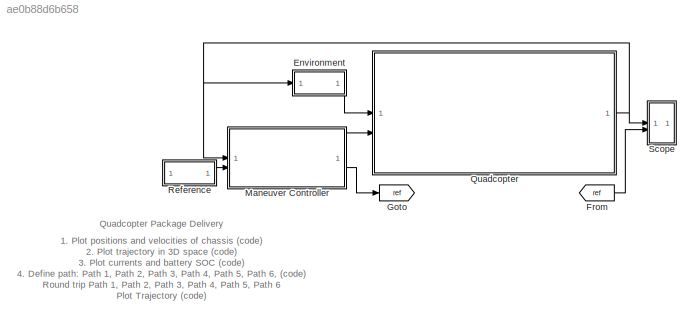
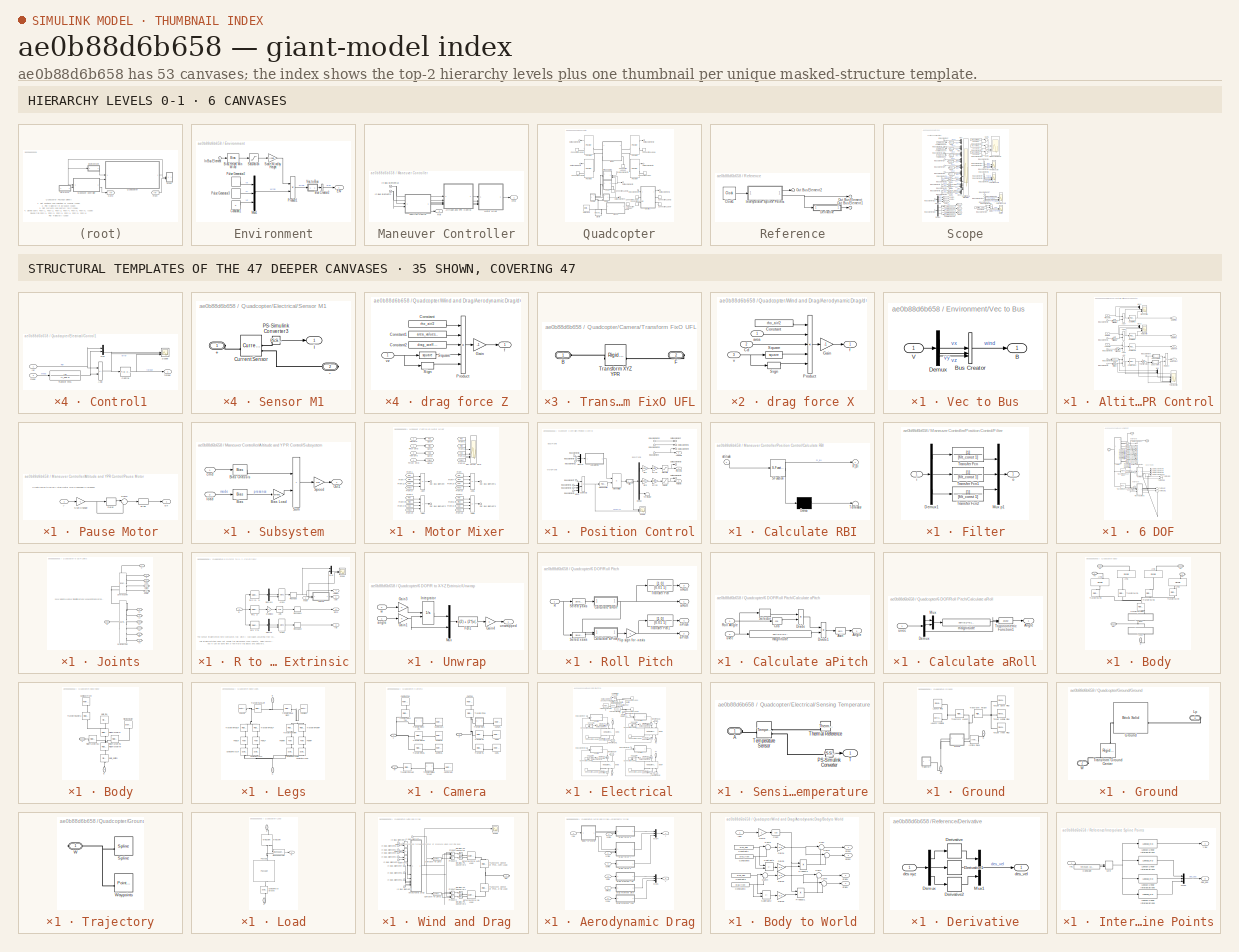
[diagram: thumbnail index - top-2 hierarchy levels (6 canvases) + 35 structural-template representatives of the remaining 47 canvases]
MODEL slx_ae0b88d6b658
KIND model
CONFIG AbsTol = 1e-4
CONFIG EnableMultiTasking = off
CONFIG FixedStep = auto
CONFIG MaxStep = 0.1
CONFIG MinStep = auto
CONFIG RelTol = 1e-4
CONFIG SampleTimeConstraint = Unconstrained
CONFIG SolverName = FixedStepAuto
CONFIG StartTime = 0.0
CONFIG StopTime = inf
WORKSPACE source: MATLAB code (in-file)
WORKSPACE code: load('xy_data_membrane.mat');
BLOCK [SubSystem] Environment
BLOCK [Bias] Environment/Bias Height Min Wind
  Bias = -height_min_wind
  SaturateOnIntegerOverflow = off
BLOCK [BusCreator] Environment/Bus Creator2
  DisplayOption = bar
  InheritFromInputs = on
  Inputs = 1
BLOCK [Constant] Environment/Constant1
  Value = 0
BLOCK [Outport] Environment/Env
BLOCK [Inport] Environment/In Bus Element
BLOCK [Mux] Environment/Mux1
  DisplayOption = bar
  Inputs = 3
BLOCK [Product] Environment/Product1
BLOCK [DiscretePulseGenerator] Environment/Pulse Generator2
  Amplitude = wind_speed_mag
  Period = 10
  PhaseDelay = 5
  PulseType = Time based
  PulseWidth = 25
BLOCK [DiscretePulseGenerator] Environment/Pulse Generator3
  Amplitude = wind_speed_mag
  Period = 10
  PhaseDelay = 9
  PulseType = Time based
  PulseWidth = 25
BLOCK [Saturate] Environment/Saturation
  LowerLimit = 0
  UpperLimit = height_max_wind-height_min_wind
  ZeroCross = off
BLOCK [Gain] Environment/Scale Wind by Height 
  Gain = 1/(height_max_wind-height_min_wind)
BLOCK [SubSystem] Environment/Vec to Bus
BLOCK [Outport] Environment/Vec to Bus/B
BLOCK [BusCreator] Environment/Vec to Bus/Bus Creator
  DisplayOption = bar
  InheritFromInputs = on
  Inputs = 3
BLOCK [Demux] Environment/Vec to Bus/Demux
  Outputs = 3
BLOCK [Inport] Environment/Vec to Bus/V
BLOCK [From] From
  GotoTag = ref
BLOCK [Goto] Goto
  GotoTag = ref
BLOCK [SubSystem] Maneuver Controller
BLOCK [SubSystem] Maneuver Controller/Altitude and YPR Control
BLOCK [Sum] Maneuver Controller/Altitude and YPR Control/Add
  IconShape = rectangular
  Inputs = +-
BLOCK [Sum] Maneuver Controller/Altitude and YPR Control/Add2
  IconShape = rectangular
  Inputs = +-
BLOCK [Sum] Maneuver Controller/Altitude and YPR Control/Add3
  IconShape = rectangular
  Inputs = +-
BLOCK [Sum] Maneuver Controller/Altitude and YPR Control/Add7
  IconShape = rectangular
  Inputs = +-
BLOCK [Reference] Maneuver Controller/Altitude and YPR Control/Control Pitch  REF=slpidlib/PID Controller
  SourceBlock = slpidlib/PID Controller
  SourceType = PID 1dof
BLOCK [Reference] Maneuver Controller/Altitude and YPR Control/Control Roll  REF=slpidlib/PID Controller
  SourceBlock = slpidlib/PID Controller
  SourceType = PID 1dof
BLOCK [Reference] Maneuver Controller/Altitude and YPR Control/Control Thrust  REF=slpidlib/PID Controller
  SourceBlock = slpidlib/PID Controller
  SourceType = PID 1dof
BLOCK [Reference] Maneuver Controller/Altitude and YPR Control/Control Yaw  REF=slpidlib/PID Controller
  SourceBlock = slpidlib/PID Controller
  SourceType = PID 1dof
BLOCK [TransferFcn] Maneuver Controller/Altitude and YPR Control/Filter Pitch
  Denominator = [altitude_filtM 1]
BLOCK [TransferFcn] Maneuver Controller/Altitude and YPR Control/Filter Roll
  Denominator = [altitude_filtM 1]
BLOCK [TransferFcn] Maneuver Controller/Altitude and YPR Control/Filter Yaw
  Denominator = [yaw_filtM 1]
BLOCK [TransferFcn] Maneuver Controller/Altitude and YPR Control/Filter pz
  Denominator = [0.01 1]
BLOCK [Inport] Maneuver Controller/Altitude and YPR Control/In Bus Element
BLOCK [Inport] Maneuver Controller/Altitude and YPR Control/In Bus Element1
BLOCK [Inport] Maneuver Controller/Altitude and YPR Control/In Bus Element2
BLOCK [Inport] Maneuver Controller/Altitude and YPR Control/In Bus Element3
BLOCK [Inport] Maneuver Controller/Altitude and YPR Control/In Bus Element4
BLOCK [Inport] Maneuver Controller/Altitude and YPR Control/In Bus Element9
  Port = 2
BLOCK [Outport] Maneuver Controller/Altitude and YPR Control/Motor Pitch
BLOCK [Outport] Maneuver Controller/Altitude and YPR Control/Motor Roll
  Port = 2
BLOCK [Outport] Maneuver Controller/Altitude and YPR Control/Motor Thrust
  Port = 4
BLOCK [Outport] Maneuver Controller/Altitude and YPR Control/Motor Yaw
  Port = 3
BLOCK [Mux] Maneuver Controller/Altitude and YPR Control/Mux
  DisplayOption = bar
  Inputs = 2
BLOCK [Mux] Maneuver Controller/Altitude and YPR Control/Mux1
  DisplayOption = bar
  Inputs = 2
BLOCK [Mux] Maneuver Controller/Altitude and YPR Control/Mux2
  DisplayOption = bar
  Inputs = 2
BLOCK [SubSystem] Maneuver Controller/Altitude and YPR Control/Pause Motor
  NameLocation = top
BLOCK [Bias] Maneuver Controller/Altitude and YPR Control/Pause Motor/Bias
  Bias = 1
  SaturateOnIntegerOverflow = off
BLOCK [Delay] Maneuver Controller/Altitude and YPR Control/Pause Motor/Delay
  DelayLength = dur_pulse/ts_pulse
  InitialCondition = 0
  InputPortMap = u0
  SampleTime = ts_pulse
  UserDataPersistent = on
BLOCK [Outport] Maneuver Controller/Altitude and YPR Control/Pause Motor/En
BLOCK [Gain] Maneuver Controller/Altitude and YPR Control/Pause Motor/Sign Change
  Gain = -1
BLOCK [Sum] Maneuver Controller/Altitude and YPR Control/Pause Motor/Sum2
  InputSameDT = on
  Inputs = |+-
  OutDataTypeStr = double
  SaturateOnIntegerOverflow = on
BLOCK [Inport] Maneuver Controller/Altitude and YPR Control/Pause Motor/y
BLOCK [Inport] Maneuver Controller/Altitude and YPR Control/Pitch Cmd
  Port = 3
BLOCK [Scope] Maneuver Controller/Altitude and YPR Control/Pitch Control
  Floating = off
  NumInputPorts = 3
  ScopeSpecificationString = Simulink.scopes.TimeScopeBlockCfg('CurrentConfiguration', extmgr.ConfigurationSet(extmgr.Configuration('Core','General UI',true),extmgr.Configuration('Core','Source UI',true),extmgr.Configuration('Sources','WiredSimulink',true,'DataLoggingVariableName','ScopeData1'),extmgr.Configuration('Visuals','Time Domain',true,'SerializedDisplays',{struct('MinYLimReal','-0.80585','MaxYLimReal','0.83815','YLab...<+2702ch>
BLOCK [Product] Maneuver Controller/Altitude and YPR Control/Product
BLOCK [Inport] Maneuver Controller/Altitude and YPR Control/Roll Cmd
  Port = 4
BLOCK [Scope] Maneuver Controller/Altitude and YPR Control/Roll Control
  Floating = off
  NumInputPorts = 3
  ScopeSpecificationString = Simulink.scopes.TimeScopeBlockCfg('CurrentConfiguration', extmgr.ConfigurationSet(extmgr.Configuration('Core','General UI',true),extmgr.Configuration('Core','Source UI',true),extmgr.Configuration('Sources','WiredSimulink',true,'DataLoggingVariableName','ScopeData1'),extmgr.Configuration('Visuals','Time Domain',true,'SerializedDisplays',{struct('MinYLimReal','-0.80585','MaxYLimReal','0.83815','YLab...<+2702ch>
BLOCK [Selector] Maneuver Controller/Altitude and YPR Control/Select z
  IndexOptions = Index vector (dialog)
  Indices = [3]
  InputPortWidth = 3
  OutputSizes = 1
BLOCK [SubSystem] Maneuver Controller/Altitude and YPR Control/Subsystem
BLOCK [Bias] Maneuver Controller/Altitude and YPR Control/Subsystem/Bias
  Bias = +1
  SaturateOnIntegerOverflow = off
BLOCK [Bias] Maneuver Controller/Altitude and YPR Control/Subsystem/Bias Chassis
  Bias = 700
  SaturateOnIntegerOverflow = off
BLOCK [Gain] Maneuver Controller/Altitude and YPR Control/Subsystem/Bias Load
  Gain = 260*pkgSize(1)^3*pkgDensity
BLOCK [Outport] Maneuver Controller/Altitude and YPR Control/Subsystem/Out1
BLOCK [Gain] Maneuver Controller/Altitude and YPR Control/Subsystem/Speed
  Gain = 2*pi
BLOCK [Sum] Maneuver Controller/Altitude and YPR Control/Subsystem/Sum
  IconShape = rectangular
BLOCK [Inport] Maneuver Controller/Altitude and YPR Control/Subsystem/cmd
BLOCK [Inport] Maneuver Controller/Altitude and YPR Control/Subsystem/load
  Port = 2
BLOCK [Scope] Maneuver Controller/Altitude and YPR Control/Thrust Control
  Floating = off
  NumInputPorts = 6
  ScopeSpecificationString = Simulink.scopes.TimeScopeBlockCfg('CurrentConfiguration', extmgr.ConfigurationSet(extmgr.Configuration('Core','General UI',true),extmgr.Configuration('Core','Source UI',true),extmgr.Configuration('Sources','WiredSimulink',true,'DataLoggingVariableName','ScopeData2'),extmgr.Configuration('Visuals','Time Domain',true,'SerializedDisplays',{struct('MinYLimReal','-0.81239','MaxYLimReal','7.31154','YLab...<+6107ch>
BLOCK [Gain] Maneuver Controller/Altitude and YPR Control/Thrust to Torque
  Gain = 2*pi/(propeller.diameter^4 * sqrt(air_rho))
BLOCK [Inport] Maneuver Controller/Altitude and YPR Control/Yaw Cmd
  Port = 5
BLOCK [Inport] Maneuver Controller/In Bus Element13
BLOCK [Inport] Maneuver Controller/In Bus Element3
  Port = 2
BLOCK [SubSystem] Maneuver Controller/Motor Mixer
BLOCK [Sum] Maneuver Controller/Motor Mixer/Add4
  IconShape = rectangular
  Inputs = +--+
BLOCK [Sum] Maneuver Controller/Motor Mixer/Add5
  IconShape = rectangular
  Inputs = --++
BLOCK [Sum] Maneuver Controller/Motor Mixer/Add6
  IconShape = rectangular
  Inputs = -+-+
BLOCK [Sum] Maneuver Controller/Motor Mixer/Add7
  IconShape = rectangular
  Inputs = ++++
BLOCK [From] Maneuver Controller/Motor Mixer/From
  GotoTag = Roll
BLOCK [From] Maneuver Controller/Motor Mixer/From1
  GotoTag = Roll
BLOCK [From] Maneuver Controller/Motor Mixer/From10
  GotoTag = Yaw
BLOCK [From] Maneuver Controller/Motor Mixer/From11
  GotoTag = Yaw
BLOCK [From] Maneuver Controller/Motor Mixer/From12
  GotoTag = Yaw
BLOCK [From] Maneuver Controller/Motor Mixer/From13
  GotoTag = Yaw
BLOCK [From] Maneuver Controller/Motor Mixer/From14
  GotoTag = Yaw
BLOCK [From] Maneuver Controller/Motor Mixer/From15
  GotoTag = Thrust
BLOCK [From] Maneuver Controller/Motor Mixer/From16
  GotoTag = Thrust
BLOCK [From] Maneuver Controller/Motor Mixer/From17
  GotoTag = Thrust
BLOCK [From] Maneuver Controller/Motor Mixer/From18
  GotoTag = Thrust
BLOCK [From] Maneuver Controller/Motor Mixer/From19
  GotoTag = Thrust
BLOCK [From] Maneuver Controller/Motor Mixer/From2
  GotoTag = Roll
BLOCK [From] Maneuver Controller/Motor Mixer/From3
  GotoTag = Roll
BLOCK [From] Maneuver Controller/Motor Mixer/From4
  GotoTag = Pitch
BLOCK [From] Maneuver Controller/Motor Mixer/From5
  GotoTag = Roll
BLOCK [From] Maneuver Controller/Motor Mixer/From6
  GotoTag = Pitch
BLOCK [From] Maneuver Controller/Motor Mixer/From7
  GotoTag = Pitch
BLOCK [From] Maneuver Controller/Motor Mixer/From8
  GotoTag = Pitch
BLOCK [From] Maneuver Controller/Motor Mixer/From9
  GotoTag = Pitch
BLOCK [Goto] Maneuver Controller/Motor Mixer/Goto1
  GotoTag = Pitch
BLOCK [Goto] Maneuver Controller/Motor Mixer/Goto2
  GotoTag = Thrust
BLOCK [Goto] Maneuver Controller/Motor Mixer/Goto3
  GotoTag = Yaw
BLOCK [Goto] Maneuver Controller/Motor Mixer/Goto4
  GotoTag = Roll
BLOCK [Outport] Maneuver Controller/Motor Mixer/Out Bus Element
BLOCK [Outport] Maneuver Controller/Motor Mixer/Out Bus Element1
BLOCK [Outport] Maneuver Controller/Motor Mixer/Out Bus Element2
BLOCK [Outport] Maneuver Controller/Motor Mixer/Out Bus Element3
BLOCK [Inport] Maneuver Controller/Motor Mixer/Pitch Cmd
BLOCK [Scope] Maneuver Controller/Motor Mixer/RPY Thrust Cmd
  Floating = off
  NumInputPorts = 4
  ScopeSpecificationString = Simulink.scopes.TimeScopeBlockCfg('CurrentConfiguration', extmgr.ConfigurationSet(extmgr.Configuration('Core','General UI',true),extmgr.Configuration('Core','Source UI',true),extmgr.Configuration('Sources','WiredSimulink',true,'DataLoggingVariableName','ScopeData1'),extmgr.Configuration('Visuals','Time Domain',true,'SerializedDisplays',{struct('MinYLimReal','4417.97471','MaxYLimReal','5987.32527',...<+1481ch>
BLOCK [Inport] Maneuver Controller/Motor Mixer/Roll Cmd
  Port = 2
BLOCK [Inport] Maneuver Controller/Motor Mixer/Thrust Cmd
  Port = 4
BLOCK [Inport] Maneuver Controller/Motor Mixer/Yaw Cmd
  Port = 3
BLOCK [SubSystem] Maneuver Controller/Position Control
BLOCK [SubSystem] Maneuver Controller/Position Control/Calculate RBI
  ErrorFcn = Stateflow.Translate.translate
  PermitHierarchicalResolution = ExplicitOnly
  SFBlockType = MATLAB Function
  TreatAsAtomicUnit = on
BLOCK [Demux] Maneuver Controller/Position Control/Calculate RBI/ Demux 
  Outputs = 1
BLOCK [S-Function] Maneuver Controller/Position Control/Calculate RBI/ SFunction 
  EnableBusSupport = on
  FunctionName = sf_sfun
  PortCounts = [1 2]
  SFcnIsStateOwnerBlock = off
  SFunctionDeploymentMode = off
  Tag = Stateflow S-Function 7
BLOCK [Terminator] Maneuver Controller/Position Control/Calculate RBI/ Terminator 
BLOCK [Outport] Maneuver Controller/Position Control/Calculate RBI/R_BI
BLOCK [Inport] Maneuver Controller/Position Control/Calculate RBI/attitude
BLOCK [Demux] Maneuver Controller/Position Control/Demux
  Outputs = 3
BLOCK [Gain] Maneuver Controller/Position Control/Dir P
  Gain = 1/9.81
BLOCK [Gain] Maneuver Controller/Position Control/Dir R
  Gain = -1/9.81
BLOCK [Gain] Maneuver Controller/Position Control/Err2P
  Gain = err2rp
BLOCK [Gain] Maneuver Controller/Position Control/Err2R
  Gain = err2rp
BLOCK [SubSystem] Maneuver Controller/Position Control/Filter
BLOCK [Demux] Maneuver Controller/Position Control/Filter/Demux1
  Outputs = 3
BLOCK [Mux] Maneuver Controller/Position Control/Filter/Mux p1
  DisplayOption = bar
  Inputs = 3
BLOCK [TransferFcn] Maneuver Controller/Position Control/Filter/Transfer Fcn
  Denominator = [filt_const 1]
BLOCK [TransferFcn] Maneuver Controller/Position Control/Filter/Transfer Fcn1
  Denominator = [filt_const 1]
BLOCK [TransferFcn] Maneuver Controller/Position Control/Filter/Transfer Fcn2
  Denominator = [filt_const 1]
BLOCK [Inport] Maneuver Controller/Position Control/Filter/i
BLOCK [Outport] Maneuver Controller/Position Control/Filter/o
BLOCK [Inport] Maneuver Controller/Position Control/In Bus Element
  Port = 2
BLOCK [Inport] Maneuver Controller/Position Control/In Bus Element1
BLOCK [Inport] Maneuver Controller/Position Control/In Bus Element11
BLOCK [Inport] Maneuver Controller/Position Control/In Bus Element12
  Port = 2
BLOCK [Inport] Maneuver Controller/Position Control/In Bus Element13
  Port = 2
BLOCK [Inport] Maneuver Controller/Position Control/In Bus Element2
BLOCK [Inport] Maneuver Controller/Position Control/In Bus Element3
BLOCK [Inport] Maneuver Controller/Position Control/In Bus Element7
  Port = 2
BLOCK [Inport] Maneuver Controller/Position Control/In Bus Element8
BLOCK [Inport] Maneuver Controller/Position Control/In Bus Element9
BLOCK [Product] Maneuver Controller/Position Control/Matrix Multiply
  Multiplication = Matrix(*)
BLOCK [Mux] Maneuver Controller/Position Control/Mux p
  DisplayOption = bar
  Inputs = 3
BLOCK [Mux] Maneuver Controller/Position Control/Mux rpy
  DisplayOption = bar
  Inputs = 3
BLOCK [Outport] Maneuver Controller/Position Control/Out Bus Element
  Port = 4
BLOCK [Outport] Maneuver Controller/Position Control/Out Bus Element1
  Port = 4
BLOCK [Outport] Maneuver Controller/Position Control/Out Bus Element2
  Port = 4
BLOCK [Outport] Maneuver Controller/Position Control/Out Bus Element3
  Port = 4
BLOCK [Outport] Maneuver Controller/Position Control/Out Bus Element4
  Port = 4
BLOCK [Reference] Maneuver Controller/Position Control/PID Controller  REF=slpidlib/PID Controller
  SourceBlock = slpidlib/PID Controller
  SourceType = PID 1dof
BLOCK [Outport] Maneuver Controller/Position Control/Pitch Cmd
BLOCK [Saturate] Maneuver Controller/Position Control/Pitch Limit
  LowerLimit = -pi/3
  UpperLimit = pi/3
BLOCK [Outport] Maneuver Controller/Position Control/Roll Cmd
  Port = 2
BLOCK [Saturate] Maneuver Controller/Position Control/Roll Limit
  LowerLimit = -pi/3
  UpperLimit = pi/3
BLOCK [Scope] Maneuver Controller/Position Control/Scope
  Floating = off
  NumInputPorts = 2
  ScopeSpecificationString = Simulink.scopes.TimeScopeBlockCfg('CurrentConfiguration', extmgr.ConfigurationSet(extmgr.Configuration('Core','General UI',true),extmgr.Configuration('Core','Source UI',true),extmgr.Configuration('Sources','WiredSimulink',true,'DataLoggingVariableName','ScopeData5'),extmgr.Configuration('Visuals','Time Domain',true,'SerializedDisplays',{struct('MinYLimReal','-1.96666','MaxYLimReal','2.2076','YLabe...<+2092ch>
BLOCK [Sum] Maneuver Controller/Position Control/Subtract2
  IconShape = rectangular
  Inputs = +-
BLOCK [Terminator] Maneuver Controller/Position Control/Terminator
BLOCK [Outport] Maneuver Controller/Position Control/Yaw Cmd
  Port = 3
BLOCK [Outport] Maneuver Controller/Ref
  Port = 2
BLOCK [Outport] Maneuver Controller/cmd
BLOCK [SubSystem] Quadcopter
BLOCK [SubSystem] Quadcopter/6 DOF
BLOCK [PMIOPort] Quadcopter/6 DOF/B
  Port = 3
  Side = Left
BLOCK [PMIOPort] Quadcopter/6 DOF/C
  NameLocation = top
  Port = 2
  Side = Left
BLOCK [PMIOPort] Quadcopter/6 DOF/F
  NameLocation = top
  Side = Left
BLOCK [SubSystem] Quadcopter/6 DOF/Joints
BLOCK [PMIOPort] Quadcopter/6 DOF/Joints/B
  Port = 5
  Side = Left
BLOCK [PMIOPort] Quadcopter/6 DOF/Joints/C
  Side = Right
BLOCK [Reference] Quadcopter/6 DOF/Joints/Cartesian Joint  REF=sm_lib/Joints/Cartesian
Joint
  SourceBlock = sm_lib/Joints/Cartesian\nJoint
  SourceType = Cartesian\nJoint
BLOCK [PMIOPort] Quadcopter/6 DOF/Joints/F
  Port = 2
  Side = Right
BLOCK [Reference] Quadcopter/6 DOF/Joints/Spherical Joint  REF=sm_lib/Joints/Spherical
Joint
  SourceBlock = sm_lib/Joints/Spherical\nJoint
  SourceType = Spherical\nJoint
BLOCK [PMIOPort] Quadcopter/6 DOF/Joints/nPitch
  Port = 11
  Side = Right
BLOCK [PMIOPort] Quadcopter/6 DOF/Joints/nRoll
  Port = 10
  Side = Right
BLOCK [PMIOPort] Quadcopter/6 DOF/Joints/nYaw
  Port = 12
  Side = Right
BLOCK [PMIOPort] Quadcopter/6 DOF/Joints/px
  Port = 3
  Side = Right
BLOCK [PMIOPort] Quadcopter/6 DOF/Joints/py
  Port = 6
  Side = Right
BLOCK [PMIOPort] Quadcopter/6 DOF/Joints/pz
  Port = 8
  Side = Right
BLOCK [PMIOPort] Quadcopter/6 DOF/Joints/vx
  Port = 4
  Side = Right
BLOCK [PMIOPort] Quadcopter/6 DOF/Joints/vy
  Port = 7
  Side = Right
BLOCK [PMIOPort] Quadcopter/6 DOF/Joints/vz
  Port = 9
  Side = Right
BLOCK [Outport] Quadcopter/6 DOF/Out Bus Element
BLOCK [Outport] Quadcopter/6 DOF/Out Bus Element1
BLOCK [Outport] Quadcopter/6 DOF/Out Bus Element10
BLOCK [Outport] Quadcopter/6 DOF/Out Bus Element11
BLOCK [Outport] Quadcopter/6 DOF/Out Bus Element12
BLOCK [Outport] Quadcopter/6 DOF/Out Bus Element2
BLOCK [Outport] Quadcopter/6 DOF/Out Bus Element3
BLOCK [Outport] Quadcopter/6 DOF/Out Bus Element4
BLOCK [Outport] Quadcopter/6 DOF/Out Bus Element5
BLOCK [Outport] Quadcopter/6 DOF/Out Bus Element6
BLOCK [Outport] Quadcopter/6 DOF/Out Bus Element7
BLOCK [Outport] Quadcopter/6 DOF/Out Bus Element8
BLOCK [Outport] Quadcopter/6 DOF/Out Bus Element9
BLOCK [Reference] Quadcopter/6 DOF/PS-Simulink Converter  REF=nesl_utility/PS-Simulink
Converter
  SourceBlock = nesl_utility/PS-Simulink\nConverter
  SourceType = PS-Simulink\nConverter
BLOCK [Reference] Quadcopter/6 DOF/PS-Simulink Converter1  REF=nesl_utility/PS-Simulink
Converter
  SourceBlock = nesl_utility/PS-Simulink\nConverter
  SourceType = PS-Simulink\nConverter
BLOCK [Reference] Quadcopter/6 DOF/PS-Simulink Converter11  REF=nesl_utility/PS-Simulink
Converter
  SourceBlock = nesl_utility/PS-Simulink\nConverter
  SourceType = PS-Simulink\nConverter
BLOCK [Reference] Quadcopter/6 DOF/PS-Simulink Converter13  REF=nesl_utility/PS-Simulink
Converter
  SourceBlock = nesl_utility/PS-Simulink\nConverter
  SourceType = PS-Simulink\nConverter
BLOCK [Reference] Quadcopter/6 DOF/PS-Simulink Converter2  REF=nesl_utility/PS-Simulink
Converter
  SourceBlock = nesl_utility/PS-Simulink\nConverter
  SourceType = PS-Simulink\nConverter
BLOCK [Reference] Quadcopter/6 DOF/PS-Simulink Converter3  REF=nesl_utility/PS-Simulink
Converter
  SourceBlock = nesl_utility/PS-Simulink\nConverter
  SourceType = PS-Simulink\nConverter
BLOCK [Reference] Quadcopter/6 DOF/PS-Simulink Converter4  REF=nesl_utility/PS-Simulink
Converter
  SourceBlock = nesl_utility/PS-Simulink\nConverter
  SourceType = PS-Simulink\nConverter
BLOCK [Reference] Quadcopter/6 DOF/PS-Simulink Converter5  REF=nesl_utility/PS-Simulink
Converter
  SourceBlock = nesl_utility/PS-Simulink\nConverter
  SourceType = PS-Simulink\nConverter
BLOCK [SubSystem] Quadcopter/6 DOF/R to X-Y-Z Extrinsic
BLOCK [Trigonometry] Quadcopter/6 DOF/R to X-Y-Z Extrinsic/Asin
  Operator = asin
BLOCK [Trigonometry] Quadcopter/6 DOF/R to X-Y-Z Extrinsic/Atan1
  Operator = atan2
BLOCK [Trigonometry] Quadcopter/6 DOF/R to X-Y-Z Extrinsic/Atan2
  Operator = atan2
BLOCK [Demux] Quadcopter/6 DOF/R to X-Y-Z Extrinsic/Demux
  Outputs = 2
BLOCK [Demux] Quadcopter/6 DOF/R to X-Y-Z Extrinsic/Demux1
  Outputs = 2
BLOCK [Gain] Quadcopter/6 DOF/R to X-Y-Z Extrinsic/Multiply2
  Gain = -1
BLOCK [Mux] Quadcopter/6 DOF/R to X-Y-Z Extrinsic/Mux
  DisplayOption = bar
  Inputs = 2
BLOCK [Inport] Quadcopter/6 DOF/R to X-Y-Z Extrinsic/R
BLOCK [Selector] Quadcopter/6 DOF/R to X-Y-Z Extrinsic/R(3, 1)
  IndexOptions = Index vector (dialog),Index vector (dialog)
  Indices = 3,1
  InputPortWidth = 3
  NumberOfDimensions = 2
  OutputSizes = 1,1
BLOCK [Selector] Quadcopter/6 DOF/R to X-Y-Z Extrinsic/R(3, 2:3)
  IndexOptions = Index vector (dialog),Index vector (dialog)
  Indices = 3,[2 3]
  InputPortWidth = 3
  NumberOfDimensions = 2
  OutputSizes = 1,1
BLOCK [Selector] Quadcopter/6 DOF/R to X-Y-Z Extrinsic/R([2 1], 1)
  IndexOptions = Index vector (dialog),Index vector (dialog)
  Indices = [2 1],1
  InputPortWidth = 3
  NumberOfDimensions = 2
  OutputSizes = 1,1
BLOCK [Reshape] Quadcopter/6 DOF/R to X-Y-Z Extrinsic/Reshape
BLOCK [Reshape] Quadcopter/6 DOF/R to X-Y-Z Extrinsic/Reshape1
BLOCK [Reshape] Quadcopter/6 DOF/R to X-Y-Z Extrinsic/Reshape2
  OutputDimensionality = Customize
  OutputDimensions = 1
BLOCK [Scope] Quadcopter/6 DOF/R to X-Y-Z Extrinsic/Scope
  Floating = off
  NumInputPorts = 2
  ScopeSpecificationString = Simulink.scopes.TimeScopeBlockCfg('CurrentConfiguration', extmgr.ConfigurationSet(extmgr.Configuration('Core','General UI',true),extmgr.Configuration('Core','Source UI',true),extmgr.Configuration('Sources','WiredSimulink',true,'DataLoggingVariableName','ScopeData2'),extmgr.Configuration('Visuals','Time Domain',true,'SerializedDisplays',{struct('MinYLimReal','-4.33662','MaxYLimReal','7.61477','YLab...<+2013ch>
BLOCK [SubSystem] Quadcopter/6 DOF/R to X-Y-Z Extrinsic/Unwrap
BLOCK [Fcn] Quadcopter/6 DOF/R to X-Y-Z Extrinsic/Unwrap/Fcn1
  Expr = u(2) + (2*(u(1) > u(2)) - 1)*2*pi*floor(abs(u(1)-u(2))/(2*pi) + 0.5)
BLOCK [Gain] Quadcopter/6 DOF/R to X-Y-Z Extrinsic/Unwrap/Gain1
  OutDataTypeStr = Inherit: Same as input
  ParamDataTypeStr = Inherit: Same as input
  SaturateOnIntegerOverflow = on
BLOCK [Gain] Quadcopter/6 DOF/R to X-Y-Z Extrinsic/Unwrap/Gain3
  OutDataTypeStr = Inherit: Same as input
  ParamDataTypeStr = Inherit: Same as input
  SaturateOnIntegerOverflow = on
BLOCK [Gain] Quadcopter/6 DOF/R to X-Y-Z Extrinsic/Unwrap/Gain4
  OutDataTypeStr = Inherit: Same as input
  ParamDataTypeStr = Inherit: Same as input
  SaturateOnIntegerOverflow = on
BLOCK [Integrator] Quadcopter/6 DOF/R to X-Y-Z Extrinsic/Unwrap/Integrator
  AbsoluteTolerance = 1e-3
  InitialConditionSource = external
  ZeroCross = off
BLOCK [Mux] Quadcopter/6 DOF/R to X-Y-Z Extrinsic/Unwrap/Mux
  DisplayOption = bar
  Inputs = 2
BLOCK [Inport] Quadcopter/6 DOF/R to X-Y-Z Extrinsic/Unwrap/angle
BLOCK [Outport] Quadcopter/6 DOF/R to X-Y-Z Extrinsic/Unwrap/unwrapped
BLOCK [Inport] Quadcopter/6 DOF/R to X-Y-Z Extrinsic/Unwrap/w
  Port = 2
BLOCK [Inport] Quadcopter/6 DOF/R to X-Y-Z Extrinsic/nYaw
  Port = 2
BLOCK [Outport] Quadcopter/6 DOF/R to X-Y-Z Extrinsic/pitch
  Port = 2
  VectorParamsAs1DForOutWhenUnconnected = off
BLOCK [Outport] Quadcopter/6 DOF/R to X-Y-Z Extrinsic/roll
  Port = 3
  VectorParamsAs1DForOutWhenUnconnected = off
BLOCK [Outport] Quadcopter/6 DOF/R to X-Y-Z Extrinsic/yaw
  VectorParamsAs1DForOutWhenUnconnected = off
BLOCK [Outport] Quadcopter/6 DOF/R to X-Y-Z Extrinsic/yawWr
  Port = 4
  VectorParamsAs1DForOutWhenUnconnected = off
BLOCK [SubSystem] Quadcopter/6 DOF/Roll Pitch
BLOCK [SubSystem] Quadcopter/6 DOF/Roll Pitch/Calculate aPitch
BLOCK [Outport] Quadcopter/6 DOF/Roll Pitch/Calculate aPitch/Angle
  VectorParamsAs1DForOutWhenUnconnected = off
BLOCK [Trigonometry] Quadcopter/6 DOF/Roll Pitch/Calculate aPitch/Asin
  Operator = asin
BLOCK [Trigonometry] Quadcopter/6 DOF/Roll Pitch/Calculate aPitch/Cos
  Operator = cos
BLOCK [Product] Quadcopter/6 DOF/Roll Pitch/Calculate aPitch/Divide
  Inputs = */
BLOCK [Product] Quadcopter/6 DOF/Roll Pitch/Calculate aPitch/Divide1
  Inputs = */
BLOCK [Inport] Quadcopter/6 DOF/Roll Pitch/Calculate aPitch/Roll Angle
BLOCK [Selector] Quadcopter/6 DOF/Roll Pitch/Calculate aPitch/Selector
  IndexOptions = Index vector (dialog)
  Indices = [3]
  InputPortWidth = 3
  NameLocation = top
  OutputSizes = 1
BLOCK [Fcn] Quadcopter/6 DOF/Roll Pitch/Calculate aPitch/magnitude
  Expr = sqrt(u(1)*u(1)+u(2)*u(2)+u(3)*u(3))
BLOCK [Inport] Quadcopter/6 DOF/Roll Pitch/Calculate aPitch/uvec
  Port = 2
BLOCK [SubSystem] Quadcopter/6 DOF/Roll Pitch/Calculate aRoll
BLOCK [Outport] Quadcopter/6 DOF/Roll Pitch/Calculate aRoll/Angle
  VectorParamsAs1DForOutWhenUnconnected = off
BLOCK [Demux] Quadcopter/6 DOF/Roll Pitch/Calculate aRoll/Demux
  Outputs = 3
BLOCK [Mux] Quadcopter/6 DOF/Roll Pitch/Calculate aRoll/Mux
  DisplayOption = bar
  Inputs = 2
BLOCK [Trigonometry] Quadcopter/6 DOF/Roll Pitch/Calculate aRoll/Trigonometric Function1
  Operator = atan2
BLOCK [Fcn] Quadcopter/6 DOF/Roll Pitch/Calculate aRoll/magnitude
  Expr = sqrt(u(1)*u(1)+u(2)*u(2))
BLOCK [Inport] Quadcopter/6 DOF/Roll Pitch/Calculate aRoll/uvec
BLOCK [Gain] Quadcopter/6 DOF/Roll Pitch/Flip sign for -x axis 
  Gain = -1
BLOCK [Inport] Quadcopter/6 DOF/Roll Pitch/R
BLOCK [Selector] Quadcopter/6 DOF/Roll Pitch/Select x axis
  IndexOptions = Index vector (dialog),Index vector (dialog)
  Indices = [1 2 3],1
  InputPortWidth = 2
  NumberOfDimensions = 2
  OutputSizes = 1,1
BLOCK [Selector] Quadcopter/6 DOF/Roll Pitch/Select y axis
  IndexOptions = Index vector (dialog),Index vector (dialog)
  Indices = [1 2 3],2
  InputPortWidth = 2
  NumberOfDimensions = 2
  OutputSizes = 1,1
BLOCK [TransferFcn] Quadcopter/6 DOF/Roll Pitch/Transfer Fcn
  Denominator = [0.01 1]
  NameLocation = top
  Numerator = [1 0]
BLOCK [TransferFcn] Quadcopter/6 DOF/Roll Pitch/Transfer Fcn1
  Denominator = [0.01 1]
  NameLocation = top
  Numerator = [1 0]
BLOCK [Outport] Quadcopter/6 DOF/Roll Pitch/aPitch
  Port = 2
  VectorParamsAs1DForOutWhenUnconnected = off
BLOCK [Outport] Quadcopter/6 DOF/Roll Pitch/aRoll
  VectorParamsAs1DForOutWhenUnconnected = off
BLOCK [Outport] Quadcopter/6 DOF/Roll Pitch/nPitch
  Port = 4
  VectorParamsAs1DForOutWhenUnconnected = off
BLOCK [Outport] Quadcopter/6 DOF/Roll Pitch/nRoll
  Port = 3
  VectorParamsAs1DForOutWhenUnconnected = off
BLOCK [Terminator] Quadcopter/6 DOF/Terminator
BLOCK [Terminator] Quadcopter/6 DOF/Terminator1
BLOCK [Terminator] Quadcopter/6 DOF/Terminator2
BLOCK [Terminator] Quadcopter/6 DOF/Terminator3
BLOCK [Reference] Quadcopter/6 DOF/Transform Sensor  REF=sm_lib/Frames and
Transforms/Transform
Sensor
  SourceBlock = sm_lib/Frames and\nTransforms/Transform\nSensor
  SourceType = Transform\nSensor
BLOCK [Reference] Quadcopter/6 DOF/Transform Sensor Body  REF=sm_lib/Frames and
Transforms/Transform
Sensor
  AttributesFormatString = %<MeasurementFrame>
  SourceBlock = sm_lib/Frames and\nTransforms/Transform\nSensor
  SourceType = Transform\nSensor
BLOCK [Reference] Quadcopter/6 DOF/x  REF=nesl_utility/PS-Simulink
Converter
  SourceBlock = nesl_utility/PS-Simulink\nConverter
  SourceType = PS-Simulink\nConverter
BLOCK [Reference] Quadcopter/6 DOF/y  REF=nesl_utility/PS-Simulink
Converter
  SourceBlock = nesl_utility/PS-Simulink\nConverter
  SourceType = PS-Simulink\nConverter
BLOCK [Reference] Quadcopter/6 DOF/z  REF=nesl_utility/PS-Simulink
Converter
  SourceBlock = nesl_utility/PS-Simulink\nConverter
  SourceType = PS-Simulink\nConverter
BLOCK [SubSystem] Quadcopter/Body
BLOCK [Reference] Quadcopter/Body/ Arm2  REF=sm_lib/Body Elements/File Solid
  NameLocation = right
  SourceBlock = sm_lib/Body Elements/File Solid
  SourceType = File Solid
BLOCK [Reference] Quadcopter/Body/ Arm4  REF=sm_lib/Body Elements/File Solid
  NameLocation = left
  SourceBlock = sm_lib/Body Elements/File Solid
  SourceType = File Solid
BLOCK [Reference] Quadcopter/Body/Arm1  REF=sm_lib/Body Elements/File Solid
  NameLocation = left
  SourceBlock = sm_lib/Body Elements/File Solid
  SourceType = File Solid
BLOCK [Reference] Quadcopter/Body/Arm3  REF=sm_lib/Body Elements/File Solid
  NameLocation = right
  SourceBlock = sm_lib/Body Elements/File Solid
  SourceType = File Solid
BLOCK [SubSystem] Quadcopter/Body/Body
  NameLocation = left
BLOCK [PMIOPort] Quadcopter/Body/Body/B
  NameLocation = right
  Port = 2
  Side = Left
BLOCK [Reference] Quadcopter/Body/Body/Cam Body Front  REF=sm_lib/Frames and
Transforms/Reference
Frame
  NameLocation = right
  SourceBlock = sm_lib/Frames and\nTransforms/Reference\nFrame
  SourceType = Reference\nFrame
BLOCK [PMIOPort] Quadcopter/Body/Body/F
  Side = Right
BLOCK [Reference] Quadcopter/Body/Body/Flight Computer  REF=sm_lib/Body Elements/Brick Solid
  NameLocation = right
  SourceBlock = sm_lib/Body Elements/Brick Solid
  SourceType = Brick Solid
BLOCK [Reference] Quadcopter/Body/Body/Rigid Transform  REF=sm_lib/Frames and
Transforms/Rigid
Transform
  NameLocation = right
  SourceBlock = sm_lib/Frames and\nTransforms/Rigid\nTransform
  SourceType = Rigid\nTransform
BLOCK [Reference] Quadcopter/Body/Body/Rigid Transform12  REF=sm_lib/Frames and
Transforms/Rigid
Transform
  SourceBlock = sm_lib/Frames and\nTransforms/Rigid\nTransform
  SourceType = Rigid\nTransform
BLOCK [Reference] Quadcopter/Body/Body/Rigid Transform5  REF=sm_lib/Frames and
Transforms/Rigid
Transform
  SourceBlock = sm_lib/Frames and\nTransforms/Rigid\nTransform
  SourceType = Rigid\nTransform
BLOCK [Reference] Quadcopter/Body/Body/Rigid Transform7  REF=sm_lib/Frames and
Transforms/Rigid
Transform
  NameLocation = left
  SourceBlock = sm_lib/Frames and\nTransforms/Rigid\nTransform
  SourceType = Rigid\nTransform
BLOCK [Reference] Quadcopter/Body/Body/Transform Camera  REF=sm_lib/Frames and
Transforms/Rigid
Transform
  NameLocation = right
  SourceBlock = sm_lib/Frames and\nTransforms/Rigid\nTransform
  SourceType = Rigid\nTransform
BLOCK [Reference] Quadcopter/Body/Body/plate_bottom  REF=sm_lib/Body Elements/File Solid
  NameLocation = right
  SourceBlock = sm_lib/Body Elements/File Solid
  SourceType = File Solid
BLOCK [Reference] Quadcopter/Body/Body/plate_top   REF=sm_lib/Body Elements/File Solid
  NameLocation = right
  SourceBlock = sm_lib/Body Elements/File Solid
  SourceType = File Solid
BLOCK [PMIOPort] Quadcopter/Body/G
  NameLocation = left
  Port = 6
  Side = Right
BLOCK [SubSystem] Quadcopter/Body/Legs
  NameLocation = left
BLOCK [PMIOPort] Quadcopter/Body/Legs/B
  NameLocation = left
  Side = Left
BLOCK [Reference] Quadcopter/Body/Legs/Contact Force LF  REF=sm_lib/Forces and
Torques/Spatial
Contact Force
  NameLocation = right
  SourceBlock = sm_lib/Forces and\nTorques/Spatial\nContact Force
  SourceType = Spatial\nContact Force
BLOCK [Reference] Quadcopter/Body/Legs/Contact Force LR  REF=sm_lib/Forces and
Torques/Spatial
Contact Force
  NameLocation = left
  SourceBlock = sm_lib/Forces and\nTorques/Spatial\nContact Force
  SourceType = Spatial\nContact Force
BLOCK [Reference] Quadcopter/Body/Legs/Contact Force RF  REF=sm_lib/Forces and
Torques/Spatial
Contact Force
  NameLocation = right
  SourceBlock = sm_lib/Forces and\nTorques/Spatial\nContact Force
  SourceType = Spatial\nContact Force
BLOCK [Reference] Quadcopter/Body/Legs/Contact Force RR  REF=sm_lib/Forces and
Torques/Spatial
Contact Force
  NameLocation = left
  SourceBlock = sm_lib/Forces and\nTorques/Spatial\nContact Force
  SourceType = Spatial\nContact Force
BLOCK [PMIOPort] Quadcopter/Body/Legs/G
  NameLocation = right
  Port = 2
  Side = Right
BLOCK [Reference] Quadcopter/Body/Legs/Leg Left  REF=sm_lib/Body Elements/Extruded Solid
  SourceBlock = sm_lib/Body Elements/Extruded Solid
  SourceType = Extruded Solid
BLOCK [Reference] Quadcopter/Body/Legs/Leg Right  REF=sm_lib/Body Elements/Extruded Solid
  SourceBlock = sm_lib/Body Elements/Extruded Solid
  SourceType = Extruded Solid
BLOCK [Reference] Quadcopter/Body/Legs/Point LF  REF=sm_lib/Curves and Surfaces/Point
  NameLocation = right
  SourceBlock = sm_lib/Curves and Surfaces/Point
  SourceType = Point
BLOCK [Reference] Quadcopter/Body/Legs/Point LR  REF=sm_lib/Curves and Surfaces/Point
  NameLocation = left
  SourceBlock = sm_lib/Curves and Surfaces/Point
  SourceType = Point
BLOCK [Reference] Quadcopter/Body/Legs/Point RF  REF=sm_lib/Curves and Surfaces/Point
  NameLocation = right
  SourceBlock = sm_lib/Curves and Surfaces/Point
  SourceType = Point
BLOCK [Reference] Quadcopter/Body/Legs/Point RR  REF=sm_lib/Curves and Surfaces/Point
  NameLocation = left
  SourceBlock = sm_lib/Curves and Surfaces/Point
  SourceType = Point
BLOCK [Reference] Quadcopter/Body/Legs/Transform Foot LF  REF=sm_lib/Frames and
Transforms/Rigid
Transform
  NameLocation = right
  SourceBlock = sm_lib/Frames and\nTransforms/Rigid\nTransform
  SourceType = Rigid\nTransform
BLOCK [Reference] Quadcopter/Body/Legs/Transform Foot LR  REF=sm_lib/Frames and
Transforms/Rigid
Transform
  NameLocation = left
  SourceBlock = sm_lib/Frames and\nTransforms/Rigid\nTransform
  SourceType = Rigid\nTransform
BLOCK [Reference] Quadcopter/Body/Legs/Transform Foot RF  REF=sm_lib/Frames and
Transforms/Rigid
Transform
  NameLocation = right
  SourceBlock = sm_lib/Frames and\nTransforms/Rigid\nTransform
  SourceType = Rigid\nTransform
BLOCK [Reference] Quadcopter/Body/Legs/Transform Foot RR  REF=sm_lib/Frames and
Transforms/Rigid
Transform
  NameLocation = left
  SourceBlock = sm_lib/Frames and\nTransforms/Rigid\nTransform
  SourceType = Rigid\nTransform
BLOCK [Reference] Quadcopter/Body/Legs/Transform Leg Left  REF=sm_lib/Frames and
Transforms/Rigid
Transform
  SourceBlock = sm_lib/Frames and\nTransforms/Rigid\nTransform
  SourceType = Rigid\nTransform
BLOCK [Reference] Quadcopter/Body/Legs/Transform Leg Right  REF=sm_lib/Frames and
Transforms/Rigid
Transform
  SourceBlock = sm_lib/Frames and\nTransforms/Rigid\nTransform
  SourceType = Rigid\nTransform
BLOCK [PMIOPort] Quadcopter/Body/P1 
  Port = 2
  Side = Left
BLOCK [PMIOPort] Quadcopter/Body/P2
  NameLocation = top
  Side = Right
BLOCK [PMIOPort] Quadcopter/Body/P3
  Port = 3
  Side = Left
BLOCK [PMIOPort] Quadcopter/Body/P4
  NameLocation = top
  Port = 4
  Side = Right
BLOCK [PMIOPort] Quadcopter/Body/Ref
  Port = 5
  Side = Left
BLOCK [Reference] Quadcopter/Body/Transform Arm Ref  REF=sm_lib/Frames and
Transforms/Rigid
Transform
  NameLocation = left
  SourceBlock = sm_lib/Frames and\nTransforms/Rigid\nTransform
  SourceType = Rigid\nTransform
BLOCK [Reference] Quadcopter/Body/Transform Arm1  REF=sm_lib/Frames and
Transforms/Rigid
Transform
  NameLocation = right
  SourceBlock = sm_lib/Frames and\nTransforms/Rigid\nTransform
  SourceType = Rigid\nTransform
BLOCK [Reference] Quadcopter/Body/Transform Arm2  REF=sm_lib/Frames and
Transforms/Rigid
Transform
  NameLocation = right
  SourceBlock = sm_lib/Frames and\nTransforms/Rigid\nTransform
  SourceType = Rigid\nTransform
BLOCK [Reference] Quadcopter/Body/Transform Arm3  REF=sm_lib/Frames and
Transforms/Rigid
Transform
  NameLocation = right
  SourceBlock = sm_lib/Frames and\nTransforms/Rigid\nTransform
  SourceType = Rigid\nTransform
BLOCK [Reference] Quadcopter/Body/Transform Arm4  REF=sm_lib/Frames and
Transforms/Rigid
Transform
  NameLocation = right
  SourceBlock = sm_lib/Frames and\nTransforms/Rigid\nTransform
  SourceType = Rigid\nTransform
BLOCK [SubSystem] Quadcopter/Camera
BLOCK [PMIOPort] Quadcopter/Camera/C
  Port = 2
  Side = Right
BLOCK [Reference] Quadcopter/Camera/Cam F  REF=sm_lib/Frames and
Transforms/Reference
Frame
  SourceBlock = sm_lib/Frames and\nTransforms/Reference\nFrame
  SourceType = Reference\nFrame
BLOCK [Reference] Quadcopter/Camera/Cam FixO F  REF=sm_lib/Frames and
Transforms/Reference
Frame
  SourceBlock = sm_lib/Frames and\nTransforms/Reference\nFrame
  SourceType = Reference\nFrame
BLOCK [Reference] Quadcopter/Camera/Cam FixO L  REF=sm_lib/Frames and
Transforms/Reference
Frame
  SourceBlock = sm_lib/Frames and\nTransforms/Reference\nFrame
  SourceType = Reference\nFrame
BLOCK [Reference] Quadcopter/Camera/Cam FixO Top  REF=sm_lib/Frames and
Transforms/Reference
Frame
  NameLocation = right
  SourceBlock = sm_lib/Frames and\nTransforms/Reference\nFrame
  SourceType = Reference\nFrame
BLOCK [Reference] Quadcopter/Camera/Cam FixO UFL  REF=sm_lib/Frames and
Transforms/Reference
Frame
  SourceBlock = sm_lib/Frames and\nTransforms/Reference\nFrame
  SourceType = Reference\nFrame
BLOCK [Reference] Quadcopter/Camera/Cam L  REF=sm_lib/Frames and
Transforms/Reference
Frame
  SourceBlock = sm_lib/Frames and\nTransforms/Reference\nFrame
  SourceType = Reference\nFrame
BLOCK [Reference] Quadcopter/Camera/Cam Target  REF=sm_lib/Frames and
Transforms/Reference
Frame
  SourceBlock = sm_lib/Frames and\nTransforms/Reference\nFrame
  SourceType = Reference\nFrame
BLOCK [Reference] Quadcopter/Camera/Cam Top  REF=sm_lib/Frames and
Transforms/Reference
Frame
  NameLocation = right
  SourceBlock = sm_lib/Frames and\nTransforms/Reference\nFrame
  SourceType = Reference\nFrame
BLOCK [Reference] Quadcopter/Camera/Cam UFL  REF=sm_lib/Frames and
Transforms/Reference
Frame
  SourceBlock = sm_lib/Frames and\nTransforms/Reference\nFrame
  SourceType = Reference\nFrame
BLOCK [PMIOPort] Quadcopter/Camera/F
  Side = Right
BLOCK [Reference] Quadcopter/Camera/Transform F  REF=sm_lib/Frames and
Transforms/Rigid
Transform
  SourceBlock = sm_lib/Frames and\nTransforms/Rigid\nTransform
  SourceType = Rigid\nTransform
BLOCK [Reference] Quadcopter/Camera/Transform FixO F  REF=sm_lib/Frames and
Transforms/Rigid
Transform
  SourceBlock = sm_lib/Frames and\nTransforms/Rigid\nTransform
  SourceType = Rigid\nTransform
BLOCK [Reference] Quadcopter/Camera/Transform FixO L  REF=sm_lib/Frames and
Transforms/Rigid
Transform
  SourceBlock = sm_lib/Frames and\nTransforms/Rigid\nTransform
  SourceType = Rigid\nTransform
BLOCK [Reference] Quadcopter/Camera/Transform FixO Top  REF=sm_lib/Frames and
Transforms/Rigid
Transform
  NameLocation = right
  SourceBlock = sm_lib/Frames and\nTransforms/Rigid\nTransform
  SourceType = Rigid\nTransform
BLOCK [SubSystem] Quadcopter/Camera/Transform FixO UFL
BLOCK [PMIOPort] Quadcopter/Camera/Transform FixO UFL/B
  Side = Left
BLOCK [PMIOPort] Quadcopter/Camera/Transform FixO UFL/F
  Port = 2
  Side = Right
BLOCK [Reference] Quadcopter/Camera/Transform FixO UFL/Transform XYZ YPR  REF=sm_lib/Frames and
Transforms/Rigid
Transform
  SourceBlock = sm_lib/Frames and\nTransforms/Rigid\nTransform
  SourceType = Rigid\nTransform
BLOCK [Reference] Quadcopter/Camera/Transform L  REF=sm_lib/Frames and
Transforms/Rigid
Transform
  SourceBlock = sm_lib/Frames and\nTransforms/Rigid\nTransform
  SourceType = Rigid\nTransform
BLOCK [Reference] Quadcopter/Camera/Transform Target  REF=sm_lib/Frames and
Transforms/Rigid
Transform
  SourceBlock = sm_lib/Frames and\nTransforms/Rigid\nTransform
  SourceType = Rigid\nTransform
BLOCK [Reference] Quadcopter/Camera/Transform Top  REF=sm_lib/Frames and
Transforms/Rigid
Transform
  NameLocation = right
  SourceBlock = sm_lib/Frames and\nTransforms/Rigid\nTransform
  SourceType = Rigid\nTransform
BLOCK [SubSystem] Quadcopter/Camera/Transform UFL
BLOCK [PMIOPort] Quadcopter/Camera/Transform UFL/B
  Side = Left
BLOCK [PMIOPort] Quadcopter/Camera/Transform UFL/F
  Port = 2
  Side = Right
BLOCK [Reference] Quadcopter/Camera/Transform UFL/Transform XYZ YPR  REF=sm_lib/Frames and
Transforms/Rigid
Transform
  SourceBlock = sm_lib/Frames and\nTransforms/Rigid\nTransform
  SourceType = Rigid\nTransform
BLOCK [SubSystem] Quadcopter/Camera/Transform View Target
BLOCK [PMIOPort] Quadcopter/Camera/Transform View Target/B
  Side = Left
BLOCK [PMIOPort] Quadcopter/Camera/Transform View Target/F
  Port = 2
  Side = Right
BLOCK [Reference] Quadcopter/Camera/Transform View Target/Transform XYZ YPR  REF=sm_lib/Frames and
Transforms/Rigid
Transform
  SourceBlock = sm_lib/Frames and\nTransforms/Rigid\nTransform
  SourceType = Rigid\nTransform
BLOCK [PMIOPort] Quadcopter/Camera/W
  Port = 3
  Side = Right
BLOCK [ConnectionLabel] Quadcopter/Connection Label
  Label = P4
BLOCK [ConnectionLabel] Quadcopter/Connection Label1
  Label = P4
BLOCK [ConnectionLabel] Quadcopter/Connection Label12
  Label = G
  NameLocation = left
BLOCK [ConnectionLabel] Quadcopter/Connection Label13
  Label = G
  NameLocation = right
BLOCK [ConnectionLabel] Quadcopter/Connection Label2
  Label = P1
BLOCK [ConnectionLabel] Quadcopter/Connection Label3
  Label = P1
BLOCK [ConnectionLabel] Quadcopter/Connection Label4
  Label = P2
BLOCK [ConnectionLabel] Quadcopter/Connection Label5
  Label = P2
BLOCK [ConnectionLabel] Quadcopter/Connection Label6
  Label = P3
BLOCK [ConnectionLabel] Quadcopter/Connection Label7
  Label = P3
BLOCK [ConnectionLabel] Quadcopter/Connection Label8
  Label = G
  NameLocation = right
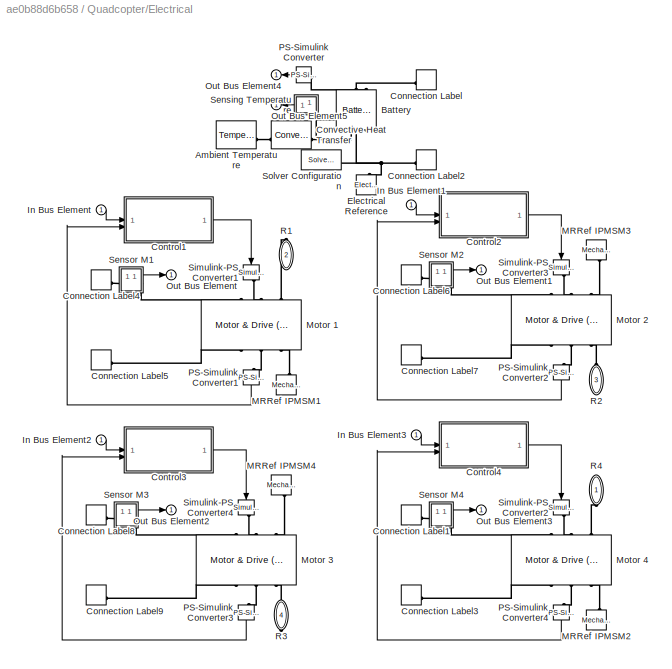
BLOCK [SubSystem] Quadcopter/Electrical
BLOCK [Reference] Quadcopter/Electrical/Ambient Temperature  REF=fl_lib/Thermal/Thermal Sources/Temperature Source
  SourceBlock = fl_lib/Thermal/Thermal Sources/Temperature Source
  SourceType = Temperature Source
BLOCK [Reference] Quadcopter/Electrical/Battery  REF=batteryecm_lib/Battery
  NameLocation = right
  SourceBlock = batteryecm_lib/Battery
  SourceType = Battery
BLOCK [ConnectionLabel] Quadcopter/Electrical/Connection Label
  Label = p
BLOCK [ConnectionLabel] Quadcopter/Electrical/Connection Label1
  Label = p
BLOCK [ConnectionLabel] Quadcopter/Electrical/Connection Label2
  Label = n
BLOCK [ConnectionLabel] Quadcopter/Electrical/Connection Label3
  Label = n
BLOCK [ConnectionLabel] Quadcopter/Electrical/Connection Label4
  Label = p
BLOCK [ConnectionLabel] Quadcopter/Electrical/Connection Label5
  Label = n
BLOCK [ConnectionLabel] Quadcopter/Electrical/Connection Label6
  Label = p
BLOCK [ConnectionLabel] Quadcopter/Electrical/Connection Label7
  Label = n
BLOCK [ConnectionLabel] Quadcopter/Electrical/Connection Label8
  Label = p
BLOCK [ConnectionLabel] Quadcopter/Electrical/Connection Label9
  Label = n
BLOCK [SubSystem] Quadcopter/Electrical/Control1
BLOCK [Sum] Quadcopter/Electrical/Control1/Add
  IconShape = rectangular
  Inputs = +-
BLOCK [Reference] Quadcopter/Electrical/Control1/Control  REF=slpidlib/PID Controller
  SourceBlock = slpidlib/PID Controller
  SourceType = PID 1dof
BLOCK [Mux] Quadcopter/Electrical/Control1/Mux
  DisplayOption = bar
  Inputs = 2
BLOCK [Scope] Quadcopter/Electrical/Control1/Scope
  Floating = off
  NumInputPorts = 3
  ScopeSpecificationString = Simulink.scopes.TimeScopeBlockCfg('CurrentConfiguration', extmgr.ConfigurationSet(extmgr.Configuration('Core','General UI',true),extmgr.Configuration('Core','Source UI',true),extmgr.Configuration('Sources','WiredSimulink',true,'DataLoggingVariableName','ScopeData3'),extmgr.Configuration('Visuals','Time Domain',true,'SerializedDisplays',{struct('MinYLimReal','-575.93509','MaxYLimReal','5183.41577',...<+2718ch>
BLOCK [TransferFcn] Quadcopter/Electrical/Control1/Transfer Fcn1
  Denominator = [f_spd 1]
BLOCK [Inport] Quadcopter/Electrical/Control1/meas
  Port = 2
BLOCK [Inport] Quadcopter/Electrical/Control1/ref
BLOCK [Outport] Quadcopter/Electrical/Control1/torque
BLOCK [SubSystem] Quadcopter/Electrical/Control2
BLOCK [Sum] Quadcopter/Electrical/Control2/Add
  IconShape = rectangular
  Inputs = +-
BLOCK [Reference] Quadcopter/Electrical/Control2/Control  REF=slpidlib/PID Controller
  SourceBlock = slpidlib/PID Controller
  SourceType = PID 1dof
BLOCK [Mux] Quadcopter/Electrical/Control2/Mux
  DisplayOption = bar
  Inputs = 2
BLOCK [Scope] Quadcopter/Electrical/Control2/Scope
  Floating = off
  NumInputPorts = 3
  ScopeSpecificationString = Simulink.scopes.TimeScopeBlockCfg('CurrentConfiguration', extmgr.ConfigurationSet(extmgr.Configuration('Core','General UI',true),extmgr.Configuration('Core','Source UI',true),extmgr.Configuration('Sources','WiredSimulink',true,'DataLoggingVariableName','ScopeData3'),extmgr.Configuration('Visuals','Time Domain',true,'SerializedDisplays',{struct('MinYLimReal','-51413.90485','MaxYLimReal','107953.943...<+2724ch>
BLOCK [TransferFcn] Quadcopter/Electrical/Control2/Transfer Fcn1
  Denominator = [f_spd 1]
BLOCK [Inport] Quadcopter/Electrical/Control2/meas
  Port = 2
BLOCK [Inport] Quadcopter/Electrical/Control2/ref
BLOCK [Outport] Quadcopter/Electrical/Control2/torque
BLOCK [SubSystem] Quadcopter/Electrical/Control3
BLOCK [Sum] Quadcopter/Electrical/Control3/Add
  IconShape = rectangular
  Inputs = +-
BLOCK [Reference] Quadcopter/Electrical/Control3/Control  REF=slpidlib/PID Controller
  SourceBlock = slpidlib/PID Controller
  SourceType = PID 1dof
BLOCK [Mux] Quadcopter/Electrical/Control3/Mux
  DisplayOption = bar
  Inputs = 2
BLOCK [Scope] Quadcopter/Electrical/Control3/Scope
  Floating = off
  NumInputPorts = 3
  ScopeSpecificationString = Simulink.scopes.TimeScopeBlockCfg('CurrentConfiguration', extmgr.ConfigurationSet(extmgr.Configuration('Core','General UI',true),extmgr.Configuration('Core','Source UI',true),extmgr.Configuration('Sources','WiredSimulink',true,'DataLoggingVariableName','ScopeData3'),extmgr.Configuration('Visuals','Time Domain',true,'SerializedDisplays',{struct('MinYLimReal','-734.86159','MaxYLimReal','6613.7543','...<+2712ch>
BLOCK [TransferFcn] Quadcopter/Electrical/Control3/Transfer Fcn1
  Denominator = [f_spd 1]
BLOCK [Inport] Quadcopter/Electrical/Control3/meas
  Port = 2
BLOCK [Inport] Quadcopter/Electrical/Control3/ref
BLOCK [Outport] Quadcopter/Electrical/Control3/torque
BLOCK [SubSystem] Quadcopter/Electrical/Control4
BLOCK [Sum] Quadcopter/Electrical/Control4/Add
  IconShape = rectangular
  Inputs = +-
BLOCK [Reference] Quadcopter/Electrical/Control4/Control  REF=slpidlib/PID Controller
  SourceBlock = slpidlib/PID Controller
  SourceType = PID 1dof
BLOCK [Mux] Quadcopter/Electrical/Control4/Mux
  DisplayOption = bar
  Inputs = 2
BLOCK [Scope] Quadcopter/Electrical/Control4/Scope
  Floating = off
  NumInputPorts = 3
  ScopeSpecificationString = Simulink.scopes.TimeScopeBlockCfg('CurrentConfiguration', extmgr.ConfigurationSet(extmgr.Configuration('Core','General UI',true),extmgr.Configuration('Core','Source UI',true),extmgr.Configuration('Sources','WiredSimulink',true,'DataLoggingVariableName','ScopeData3'),extmgr.Configuration('Visuals','Time Domain',true,'SerializedDisplays',{struct('MinYLimReal','3391.57745','MaxYLimReal','7073.87438',...<+2718ch>
BLOCK [TransferFcn] Quadcopter/Electrical/Control4/Transfer Fcn1
  Denominator = [f_spd 1]
BLOCK [Inport] Quadcopter/Electrical/Control4/meas
  Port = 2
BLOCK [Inport] Quadcopter/Electrical/Control4/ref
BLOCK [Outport] Quadcopter/Electrical/Control4/torque
BLOCK [Reference] Quadcopter/Electrical/Convective Heat Transfer  REF=fl_lib/Thermal/Thermal Elements/Convective Heat
Transfer
  SourceBlock = fl_lib/Thermal/Thermal Elements/Convective Heat\nTransfer
  SourceType = Convective Heat\nTransfer
BLOCK [Reference] Quadcopter/Electrical/Electrical Reference  REF=fl_lib/Electrical/Electrical Elements/Electrical Reference
  NameLocation = right
  SourceBlock = fl_lib/Electrical/Electrical Elements/Electrical Reference
  SourceType = Electrical Reference
BLOCK [Inport] Quadcopter/Electrical/In Bus Element
BLOCK [Inport] Quadcopter/Electrical/In Bus Element1
BLOCK [Inport] Quadcopter/Electrical/In Bus Element2
BLOCK [Inport] Quadcopter/Electrical/In Bus Element3
BLOCK [Reference] Quadcopter/Electrical/MRRef IPMSM1  REF=fl_lib/Mechanical/Rotational Elements/Mechanical
Rotational Reference
  NameLocation = right
  SourceBlock = fl_lib/Mechanical/Rotational Elements/Mechanical\nRotational Reference
  SourceType = Mechanical\nRotational Reference
BLOCK [Reference] Quadcopter/Electrical/MRRef IPMSM2  REF=fl_lib/Mechanical/Rotational Elements/Mechanical
Rotational Reference
  NameLocation = right
  SourceBlock = fl_lib/Mechanical/Rotational Elements/Mechanical\nRotational Reference
  SourceType = Mechanical\nRotational Reference
BLOCK [Reference] Quadcopter/Electrical/MRRef IPMSM3  REF=fl_lib/Mechanical/Rotational Elements/Mechanical
Rotational Reference
  NameLocation = left
  SourceBlock = fl_lib/Mechanical/Rotational Elements/Mechanical\nRotational Reference
  SourceType = Mechanical\nRotational Reference
BLOCK [Reference] Quadcopter/Electrical/MRRef IPMSM4  REF=fl_lib/Mechanical/Rotational Elements/Mechanical
Rotational Reference
  NameLocation = left
  SourceBlock = fl_lib/Mechanical/Rotational Elements/Mechanical\nRotational Reference
  SourceType = Mechanical\nRotational Reference
BLOCK [Reference] Quadcopter/Electrical/Motor 1  REF=ee_lib/Electromechanical/Motor & Drive
(System Level)
  NameLocation = left
  SourceBlock = ee_lib/Electromechanical/Motor & Drive\n(System Level)
  SourceType = Motor & Drive\n(System Level)
BLOCK [Reference] Quadcopter/Electrical/Motor 2  REF=ee_lib/Electromechanical/Motor & Drive
(System Level)
  NameLocation = left
  SourceBlock = ee_lib/Electromechanical/Motor & Drive\n(System Level)
  SourceType = Motor & Drive\n(System Level)
BLOCK [Reference] Quadcopter/Electrical/Motor 3  REF=ee_lib/Electromechanical/Motor & Drive
(System Level)
  NameLocation = left
  SourceBlock = ee_lib/Electromechanical/Motor & Drive\n(System Level)
  SourceType = Motor & Drive\n(System Level)
BLOCK [Reference] Quadcopter/Electrical/Motor 4  REF=ee_lib/Electromechanical/Motor & Drive
(System Level)
  NameLocation = left
  SourceBlock = ee_lib/Electromechanical/Motor & Drive\n(System Level)
  SourceType = Motor & Drive\n(System Level)
BLOCK [Outport] Quadcopter/Electrical/Out Bus Element
BLOCK [Outport] Quadcopter/Electrical/Out Bus Element1
BLOCK [Outport] Quadcopter/Electrical/Out Bus Element2
BLOCK [Outport] Quadcopter/Electrical/Out Bus Element3
BLOCK [Outport] Quadcopter/Electrical/Out Bus Element4
BLOCK [Outport] Quadcopter/Electrical/Out Bus Element5
BLOCK [Reference] Quadcopter/Electrical/PS-Simulink Converter  REF=nesl_utility/PS-Simulink
Converter
  SourceBlock = nesl_utility/PS-Simulink\nConverter
  SourceType = PS-Simulink\nConverter
BLOCK [Reference] Quadcopter/Electrical/PS-Simulink Converter1  REF=nesl_utility/PS-Simulink
Converter
  NameLocation = left
  SourceBlock = nesl_utility/PS-Simulink\nConverter
  SourceType = PS-Simulink\nConverter
BLOCK [Reference] Quadcopter/Electrical/PS-Simulink Converter2  REF=nesl_utility/PS-Simulink
Converter
  NameLocation = left
  SourceBlock = nesl_utility/PS-Simulink\nConverter
  SourceType = PS-Simulink\nConverter
BLOCK [Reference] Quadcopter/Electrical/PS-Simulink Converter3  REF=nesl_utility/PS-Simulink
Converter
  NameLocation = left
  SourceBlock = nesl_utility/PS-Simulink\nConverter
  SourceType = PS-Simulink\nConverter
BLOCK [Reference] Quadcopter/Electrical/PS-Simulink Converter4  REF=nesl_utility/PS-Simulink
Converter
  NameLocation = left
  SourceBlock = nesl_utility/PS-Simulink\nConverter
  SourceType = PS-Simulink\nConverter
BLOCK [PMIOPort] Quadcopter/Electrical/R1
  NameLocation = right
  Port = 2
  Side = Right
BLOCK [PMIOPort] Quadcopter/Electrical/R2
  NameLocation = left
  Port = 3
  Side = Left
BLOCK [PMIOPort] Quadcopter/Electrical/R3
  NameLocation = left
  Port = 4
  Side = Right
BLOCK [PMIOPort] Quadcopter/Electrical/R4
  NameLocation = right
  Side = Left
BLOCK [SubSystem] Quadcopter/Electrical/Sensing Temperature
  NameLocation = left
BLOCK [PMIOPort] Quadcopter/Electrical/Sensing Temperature/A
  Side = Left
BLOCK [Reference] Quadcopter/Electrical/Sensing Temperature/PS-Simulink Converter  REF=nesl_utility/PS-Simulink
Converter
  SourceBlock = nesl_utility/PS-Simulink\nConverter
  SourceType = PS-Simulink\nConverter
BLOCK [Outport] Quadcopter/Electrical/Sensing Temperature/T
BLOCK [Reference] Quadcopter/Electrical/Sensing Temperature/Temperature Sensor  REF=fl_lib/Thermal/Thermal Sensors/Temperature Sensor
  SourceBlock = fl_lib/Thermal/Thermal Sensors/Temperature Sensor
  SourceType = Temperature Sensor
BLOCK [Reference] Quadcopter/Electrical/Sensing Temperature/Thermal Reference  REF=fl_lib/Thermal/Thermal Elements/Thermal Reference
  SourceBlock = fl_lib/Thermal/Thermal Elements/Thermal Reference
  SourceType = Thermal Reference
BLOCK [SubSystem] Quadcopter/Electrical/Sensor M1
BLOCK [PMIOPort] Quadcopter/Electrical/Sensor M1/+
  Side = Left
BLOCK [PMIOPort] Quadcopter/Electrical/Sensor M1/-
  Port = 2
  Side = Right
BLOCK [Reference] Quadcopter/Electrical/Sensor M1/Current Sensor  REF=fl_lib/Electrical/Electrical Sensors/Current Sensor
  SourceBlock = fl_lib/Electrical/Electrical Sensors/Current Sensor
  SourceType = Current Sensor
BLOCK [Reference] Quadcopter/Electrical/Sensor M1/PS-Simulink Converter3  REF=nesl_utility/PS-Simulink
Converter
  SourceBlock = nesl_utility/PS-Simulink\nConverter
  SourceType = PS-Simulink\nConverter
BLOCK [Outport] Quadcopter/Electrical/Sensor M1/i
BLOCK [SubSystem] Quadcopter/Electrical/Sensor M2
BLOCK [PMIOPort] Quadcopter/Electrical/Sensor M2/+
  Side = Left
BLOCK [PMIOPort] Quadcopter/Electrical/Sensor M2/-
  Port = 2
  Side = Right
BLOCK [Reference] Quadcopter/Electrical/Sensor M2/Current Sensor  REF=fl_lib/Electrical/Electrical Sensors/Current Sensor
  SourceBlock = fl_lib/Electrical/Electrical Sensors/Current Sensor
  SourceType = Current Sensor
BLOCK [Reference] Quadcopter/Electrical/Sensor M2/PS-Simulink Converter3  REF=nesl_utility/PS-Simulink
Converter
  SourceBlock = nesl_utility/PS-Simulink\nConverter
  SourceType = PS-Simulink\nConverter
BLOCK [Outport] Quadcopter/Electrical/Sensor M2/i
BLOCK [SubSystem] Quadcopter/Electrical/Sensor M3
BLOCK [PMIOPort] Quadcopter/Electrical/Sensor M3/+
  Side = Left
BLOCK [PMIOPort] Quadcopter/Electrical/Sensor M3/-
  Port = 2
  Side = Right
BLOCK [Reference] Quadcopter/Electrical/Sensor M3/Current Sensor  REF=fl_lib/Electrical/Electrical Sensors/Current Sensor
  SourceBlock = fl_lib/Electrical/Electrical Sensors/Current Sensor
  SourceType = Current Sensor
BLOCK [Reference] Quadcopter/Electrical/Sensor M3/PS-Simulink Converter3  REF=nesl_utility/PS-Simulink
Converter
  SourceBlock = nesl_utility/PS-Simulink\nConverter
  SourceType = PS-Simulink\nConverter
BLOCK [Outport] Quadcopter/Electrical/Sensor M3/i
BLOCK [SubSystem] Quadcopter/Electrical/Sensor M4
BLOCK [PMIOPort] Quadcopter/Electrical/Sensor M4/+
  Side = Left
BLOCK [PMIOPort] Quadcopter/Electrical/Sensor M4/-
  Port = 2
  Side = Right
BLOCK [Reference] Quadcopter/Electrical/Sensor M4/Current Sensor  REF=fl_lib/Electrical/Electrical Sensors/Current Sensor
  SourceBlock = fl_lib/Electrical/Electrical Sensors/Current Sensor
  SourceType = Current Sensor
BLOCK [Reference] Quadcopter/Electrical/Sensor M4/PS-Simulink Converter3  REF=nesl_utility/PS-Simulink
Converter
  SourceBlock = nesl_utility/PS-Simulink\nConverter
  SourceType = PS-Simulink\nConverter
BLOCK [Outport] Quadcopter/Electrical/Sensor M4/i
BLOCK [Reference] Quadcopter/Electrical/Simulink-PS Converter1  REF=nesl_utility/Simulink-PS
Converter
  NameLocation = left
  SourceBlock = nesl_utility/Simulink-PS\nConverter
  SourceType = Simulink-PS\nConverter
BLOCK [Reference] Quadcopter/Electrical/Simulink-PS Converter2  REF=nesl_utility/Simulink-PS
Converter
  NameLocation = left
  SourceBlock = nesl_utility/Simulink-PS\nConverter
  SourceType = Simulink-PS\nConverter
BLOCK [Reference] Quadcopter/Electrical/Simulink-PS Converter3  REF=nesl_utility/Simulink-PS
Converter
  NameLocation = left
  SourceBlock = nesl_utility/Simulink-PS\nConverter
  SourceType = Simulink-PS\nConverter
BLOCK [Reference] Quadcopter/Electrical/Simulink-PS Converter4  REF=nesl_utility/Simulink-PS
Converter
  NameLocation = left
  SourceBlock = nesl_utility/Simulink-PS\nConverter
  SourceType = Simulink-PS\nConverter
BLOCK [Reference] Quadcopter/Electrical/Solver Configuration  REF=nesl_utility/Solver
Configuration
  SourceBlock = nesl_utility/Solver\nConfiguration
  SourceType = Solver\nConfiguration
BLOCK [Reference] Quadcopter/Gravity  REF=sm_lib/Utilities/Mechanism
Configuration
  SourceBlock = sm_lib/Utilities/Mechanism\nConfiguration
  SourceType = Mechanism\nConfiguration
BLOCK [SubSystem] Quadcopter/Ground
BLOCK [PMIOPort] Quadcopter/Ground/G
  NameLocation = left
  Port = 2
  Side = Left
BLOCK [SubSystem] Quadcopter/Ground/Ground
BLOCK [Reference] Quadcopter/Ground/Ground/Ground  REF=sm_lib/Body Elements/Brick Solid
  SourceBlock = sm_lib/Body Elements/Brick Solid
  SourceType = Brick Solid
BLOCK [PMIOPort] Quadcopter/Ground/Ground/Lp
  Side = Right
BLOCK [Reference] Quadcopter/Ground/Ground/Transform Ground Center  REF=sm_lib/Frames and
Transforms/Rigid
Transform
  NameLocation = right
  SourceBlock = sm_lib/Frames and\nTransforms/Rigid\nTransform
  SourceType = Rigid\nTransform
BLOCK [PMIOPort] Quadcopter/Ground/Ground/W
  Port = 2
  Side = Left
BLOCK [Reference] Quadcopter/Ground/Infinite Plane  REF=sm_lib/Curves and Surfaces/Infinite Plane
  SourceBlock = sm_lib/Curves and Surfaces/Infinite Plane
  SourceType = Infinite Plane
BLOCK [Reference] Quadcopter/Ground/Launch Insignia  REF=sm_lib/Body Elements/Extruded Solid
  SourceBlock = sm_lib/Body Elements/Extruded Solid
  SourceType = Extruded Solid
BLOCK [Reference] Quadcopter/Ground/Launch Ring  REF=sm_lib/Body Elements/Revolved Solid
  SourceBlock = sm_lib/Body Elements/Revolved Solid
  SourceType = Revolved Solid
BLOCK [Reference] Quadcopter/Ground/Target Inner Ring  REF=sm_lib/Body Elements/Revolved Solid
  SourceBlock = sm_lib/Body Elements/Revolved Solid
  SourceType = Revolved Solid
BLOCK [Reference] Quadcopter/Ground/Target Middle Ring  REF=sm_lib/Body Elements/Revolved Solid
  SourceBlock = sm_lib/Body Elements/Revolved Solid
  SourceType = Revolved Solid
BLOCK [Reference] Quadcopter/Ground/Target Outer Ring  REF=sm_lib/Body Elements/Revolved Solid
  SourceBlock = sm_lib/Body Elements/Revolved Solid
  SourceType = Revolved Solid
BLOCK [SubSystem] Quadcopter/Ground/Trajectory
BLOCK [Reference] Quadcopter/Ground/Trajectory/Spline  REF=sm_lib/Curves and Surfaces/Spline
  SourceBlock = sm_lib/Curves and Surfaces/Spline
  SourceType = Spline
BLOCK [PMIOPort] Quadcopter/Ground/Trajectory/W
  Side = Right
BLOCK [Reference] Quadcopter/Ground/Trajectory/Waypoints  REF=sm_lib/Curves and Surfaces/Point Cloud
  SourceBlock = sm_lib/Curves and Surfaces/Point Cloud
  SourceType = Point Cloud
BLOCK [Reference] Quadcopter/Ground/Transform Launch  REF=sm_lib/Frames and
Transforms/Rigid
Transform
  SourceBlock = sm_lib/Frames and\nTransforms/Rigid\nTransform
  SourceType = Rigid\nTransform
BLOCK [Reference] Quadcopter/Ground/Transform Target  REF=sm_lib/Frames and
Transforms/Rigid
Transform
  SourceBlock = sm_lib/Frames and\nTransforms/Rigid\nTransform
  SourceType = Rigid\nTransform
BLOCK [PMIOPort] Quadcopter/Ground/W
  NameLocation = right
  Side = Right
BLOCK [Inport] Quadcopter/In Bus Element1
  Port = 2
BLOCK [Inport] Quadcopter/In Bus Element3
BLOCK [SubSystem] Quadcopter/Load
BLOCK [Reference] Quadcopter/Load/Contact Force Ground  REF=sm_lib/Forces and
Torques/Spatial
Contact Force
  NameLocation = left
  SourceBlock = sm_lib/Forces and\nTorques/Spatial\nContact Force
  SourceType = Spatial\nContact Force
BLOCK [Reference] Quadcopter/Load/Disengage Logic  REF=quadcopter_library/Disengage Logic  (lib defined in slx_56214d765e25, slx_704f8fc3f527, +4 more)
  SourceBlock = quadcopter_library/Disengage Logic
BLOCK [PMIOPort] Quadcopter/Load/F
  NameLocation = right
  Side = Left
BLOCK [PMIOPort] Quadcopter/Load/G
  NameLocation = right
  Port = 2
  Side = Right
BLOCK [Reference] Quadcopter/Load/Package  REF=quadcopter_library/Package  (lib defined in slx_56214d765e25, slx_704f8fc3f527, +4 more)
  NameLocation = right
  SourceBlock = quadcopter_library/Package
BLOCK [Reference] Quadcopter/Load/Weld Joint  REF=sm_lib/Joints/Weld Joint
  NameLocation = right
  SourceBlock = sm_lib/Joints/Weld Joint
  SourceType = Weld Joint
BLOCK [Outport] Quadcopter/Load/m
BLOCK [Outport] Quadcopter/Out Bus Element
  NameLocation = top
BLOCK [Outport] Quadcopter/Out Bus Element1
BLOCK [Outport] Quadcopter/Out Bus Element2
  NameLocation = top
BLOCK [Outport] Quadcopter/Out Bus Element3
  NameLocation = top
BLOCK [Outport] Quadcopter/Out Bus Element4
  NameLocation = top
BLOCK [Outport] Quadcopter/Out Bus Element5
  NameLocation = top
BLOCK [Outport] Quadcopter/Out Bus Element6
  NameLocation = top
BLOCK [Reference] Quadcopter/Propeller 1  REF=quadcopter_library/Propeller  (lib defined in slx_56214d765e25, slx_704f8fc3f527, +4 more)
  SourceBlock = quadcopter_library/Propeller
BLOCK [Reference] Quadcopter/Propeller 2  REF=quadcopter_library/Propeller  (lib defined in slx_56214d765e25, slx_704f8fc3f527, +4 more)
  SourceBlock = quadcopter_library/Propeller
BLOCK [Reference] Quadcopter/Propeller 3  REF=quadcopter_library/Propeller  (lib defined in slx_56214d765e25, slx_704f8fc3f527, +4 more)
  SourceBlock = quadcopter_library/Propeller
BLOCK [Reference] Quadcopter/Propeller 4  REF=quadcopter_library/Propeller  (lib defined in slx_56214d765e25, slx_704f8fc3f527, +4 more)
  SourceBlock = quadcopter_library/Propeller
BLOCK [SubSystem] Quadcopter/Wind and Drag
  NameLocation = top
BLOCK [SubSystem] Quadcopter/Wind and Drag/Aerodynamic Drag
BLOCK [SubSystem] Quadcopter/Wind and Drag/Aerodynamic Drag/Body to World
BLOCK [Constant] Quadcopter/Wind and Drag/Aerodynamic Drag/Body to World/Constant1
  Value = area_side
BLOCK [Constant] Quadcopter/Wind and Drag/Aerodynamic Drag/Body to World/Constant2
  Value = drag_side
BLOCK [Constant] Quadcopter/Wind and Drag/Aerodynamic Drag/Body to World/Constant3
  Value = drag_front
BLOCK [Constant] Quadcopter/Wind and Drag/Aerodynamic Drag/Body to World/Constant5
  Value = area_front
BLOCK [Trigonometry] Quadcopter/Wind and Drag/Aerodynamic Drag/Body to World/Cos2
  Operator = cos
BLOCK [Gain] Quadcopter/Wind and Drag/Aerodynamic Drag/Body to World/Gain1
  Gain = 2
BLOCK [Gain] Quadcopter/Wind and Drag/Aerodynamic Drag/Body to World/Gain2
  Gain = 0.5
BLOCK [Gain] Quadcopter/Wind and Drag/Aerodynamic Drag/Body to World/Gain3
  Gain = 0.5
BLOCK [Gain] Quadcopter/Wind and Drag/Aerodynamic Drag/Body to World/Gain4
  Gain = 0.5
BLOCK [Gain] Quadcopter/Wind and Drag/Aerodynamic Drag/Body to World/Gain5
  Gain = 0.5
BLOCK [Product] Quadcopter/Wind and Drag/Aerodynamic Drag/Body to World/Product1
BLOCK [Product] Quadcopter/Wind and Drag/Aerodynamic Drag/Body to World/Product2
BLOCK [Sum] Quadcopter/Wind and Drag/Aerodynamic Drag/Body to World/Subtract1
  IconShape = rectangular
  Inputs = +-
BLOCK [Sum] Quadcopter/Wind and Drag/Aerodynamic Drag/Body to World/Subtract2
  IconShape = rectangular
  Inputs = +-
BLOCK [Sum] Quadcopter/Wind and Drag/Aerodynamic Drag/Body to World/Sum
  Inputs = |++
BLOCK [Sum] Quadcopter/Wind and Drag/Aerodynamic Drag/Body to World/Sum1
  Inputs = |++
BLOCK [Sum] Quadcopter/Wind and Drag/Aerodynamic Drag/Body to World/Sum2
  Inputs = |++
BLOCK [Sum] Quadcopter/Wind and Drag/Aerodynamic Drag/Body to World/Sum3
  Inputs = |+-
BLOCK [Sum] Quadcopter/Wind and Drag/Aerodynamic Drag/Body to World/Sum4
  Inputs = |++
BLOCK [Sum] Quadcopter/Wind and Drag/Aerodynamic Drag/Body to World/Sum5
  Inputs = |+-
BLOCK [Outport] Quadcopter/Wind and Drag/Aerodynamic Drag/Body to World/areaX
BLOCK [Outport] Quadcopter/Wind and Drag/Aerodynamic Drag/Body to World/areaY
  Port = 3
BLOCK [Outport] Quadcopter/Wind and Drag/Aerodynamic Drag/Body to World/dragX
  Port = 2
BLOCK [Outport] Quadcopter/Wind and Drag/Aerodynamic Drag/Body to World/dragY
  Port = 4
BLOCK [Inport] Quadcopter/Wind and Drag/Aerodynamic Drag/Body to World/yaw
BLOCK [Mux] Quadcopter/Wind and Drag/Aerodynamic Drag/Mux4
  DisplayOption = bar
  Inputs = 3
BLOCK [Mux] Quadcopter/Wind and Drag/Aerodynamic Drag/Mux5
  DisplayOption = bar
  Inputs = 3
BLOCK [SubSystem] Quadcopter/Wind and Drag/Aerodynamic Drag/drag force X
BLOCK [Inport] Quadcopter/Wind and Drag/Aerodynamic Drag/drag force X/Cd
  Port = 2
BLOCK [Constant] Quadcopter/Wind and Drag/Aerodynamic Drag/drag force X/Constant
  Value = rho_air/2
BLOCK [Gain] Quadcopter/Wind and Drag/Aerodynamic Drag/drag force X/Gain
  Gain = -1
BLOCK [Product] Quadcopter/Wind and Drag/Aerodynamic Drag/drag force X/Product
  Inputs = 5
BLOCK [Signum] Quadcopter/Wind and Drag/Aerodynamic Drag/drag force X/Sign
  NameLocation = top
  ZeroCross = off
BLOCK [Math] Quadcopter/Wind and Drag/Aerodynamic Drag/drag force X/Square
  Operator = square
BLOCK [Inport] Quadcopter/Wind and Drag/Aerodynamic Drag/drag force X/area
BLOCK [Outport] Quadcopter/Wind and Drag/Aerodynamic Drag/drag force X/f
BLOCK [Inport] Quadcopter/Wind and Drag/Aerodynamic Drag/drag force X/v
  Port = 3
BLOCK [SubSystem] Quadcopter/Wind and Drag/Aerodynamic Drag/drag force Y
BLOCK [Inport] Quadcopter/Wind and Drag/Aerodynamic Drag/drag force Y/Cd
  Port = 2
BLOCK [Constant] Quadcopter/Wind and Drag/Aerodynamic Drag/drag force Y/Constant
  Value = rho_air/2
BLOCK [Gain] Quadcopter/Wind and Drag/Aerodynamic Drag/drag force Y/Gain
  Gain = -1
BLOCK [Product] Quadcopter/Wind and Drag/Aerodynamic Drag/drag force Y/Product
  Inputs = 5
BLOCK [Signum] Quadcopter/Wind and Drag/Aerodynamic Drag/drag force Y/Sign
  NameLocation = top
  ZeroCross = off
BLOCK [Math] Quadcopter/Wind and Drag/Aerodynamic Drag/drag force Y/Square
  Operator = square
BLOCK [Inport] Quadcopter/Wind and Drag/Aerodynamic Drag/drag force Y/area
BLOCK [Outport] Quadcopter/Wind and Drag/Aerodynamic Drag/drag force Y/f
BLOCK [Inport] Quadcopter/Wind and Drag/Aerodynamic Drag/drag force Y/v
  Port = 3
BLOCK [SubSystem] Quadcopter/Wind and Drag/Aerodynamic Drag/drag force Z
BLOCK [Constant] Quadcopter/Wind and Drag/Aerodynamic Drag/drag force Z/Constant
  Value = rho_air/2
BLOCK [Constant] Quadcopter/Wind and Drag/Aerodynamic Drag/drag force Z/Constant1
  Value = area_values.XY
BLOCK [Constant] Quadcopter/Wind and Drag/Aerodynamic Drag/drag force Z/Constant2
  Value = drag_coeff.Cd_Z
BLOCK [Gain] Quadcopter/Wind and Drag/Aerodynamic Drag/drag force Z/Gain
  Gain = -1
BLOCK [Product] Quadcopter/Wind and Drag/Aerodynamic Drag/drag force Z/Product
  Inputs = 5
BLOCK [Signum] Quadcopter/Wind and Drag/Aerodynamic Drag/drag force Z/Sign
  NameLocation = top
  ZeroCross = off
BLOCK [Math] Quadcopter/Wind and Drag/Aerodynamic Drag/drag force Z/Square
  Operator = square
BLOCK [Outport] Quadcopter/Wind and Drag/Aerodynamic Drag/drag force Z/f
BLOCK [Inport] Quadcopter/Wind and Drag/Aerodynamic Drag/drag force Z/vz
BLOCK [SubSystem] Quadcopter/Wind and Drag/Aerodynamic Drag/drag moment pitch
BLOCK [Constant] Quadcopter/Wind and Drag/Aerodynamic Drag/drag moment pitch/Constant
  Value = rho_air/2
BLOCK [Constant] Quadcopter/Wind and Drag/Aerodynamic Drag/drag moment pitch/Constant1
  Value = area_values.Pitch
BLOCK [Constant] Quadcopter/Wind and Drag/Aerodynamic Drag/drag moment pitch/Constant2
  Value = drag_coeff.Pitch
BLOCK [Gain] Quadcopter/Wind and Drag/Aerodynamic Drag/drag moment pitch/Gain
  Gain = -1
BLOCK [Product] Quadcopter/Wind and Drag/Aerodynamic Drag/drag moment pitch/Product
  Inputs = 5
BLOCK [Signum] Quadcopter/Wind and Drag/Aerodynamic Drag/drag moment pitch/Sign
  NameLocation = top
  ZeroCross = off
BLOCK [Math] Quadcopter/Wind and Drag/Aerodynamic Drag/drag moment pitch/Square
  Operator = square
BLOCK [Outport] Quadcopter/Wind and Drag/Aerodynamic Drag/drag moment pitch/f
BLOCK [Inport] Quadcopter/Wind and Drag/Aerodynamic Drag/drag moment pitch/v
BLOCK [SubSystem] Quadcopter/Wind and Drag/Aerodynamic Drag/drag moment roll
BLOCK [Constant] Quadcopter/Wind and Drag/Aerodynamic Drag/drag moment roll/Constant
  Value = rho_air/2
BLOCK [Constant] Quadcopter/Wind and Drag/Aerodynamic Drag/drag moment roll/Constant1
  Value = area_values.Roll
BLOCK [Constant] Quadcopter/Wind and Drag/Aerodynamic Drag/drag moment roll/Constant2
  Value = drag_coeff.Roll
BLOCK [Gain] Quadcopter/Wind and Drag/Aerodynamic Drag/drag moment roll/Gain
  Gain = -1
BLOCK [Product] Quadcopter/Wind and Drag/Aerodynamic Drag/drag moment roll/Product
  Inputs = 5
BLOCK [Signum] Quadcopter/Wind and Drag/Aerodynamic Drag/drag moment roll/Sign
  NameLocation = top
  ZeroCross = off
BLOCK [Math] Quadcopter/Wind and Drag/Aerodynamic Drag/drag moment roll/Square
  Operator = square
BLOCK [Outport] Quadcopter/Wind and Drag/Aerodynamic Drag/drag moment roll/f
BLOCK [Inport] Quadcopter/Wind and Drag/Aerodynamic Drag/drag moment roll/v
BLOCK [SubSystem] Quadcopter/Wind and Drag/Aerodynamic Drag/drag moment yaw
BLOCK [Constant] Quadcopter/Wind and Drag/Aerodynamic Drag/drag moment yaw/Constant
  Value = rho_air/2
BLOCK [Constant] Quadcopter/Wind and Drag/Aerodynamic Drag/drag moment yaw/Constant1
  Value = area_values.Yaw
BLOCK [Constant] Quadcopter/Wind and Drag/Aerodynamic Drag/drag moment yaw/Constant2
  Value = drag_coeff.Yaw
BLOCK [Gain] Quadcopter/Wind and Drag/Aerodynamic Drag/drag moment yaw/Gain
  Gain = -1
BLOCK [Product] Quadcopter/Wind and Drag/Aerodynamic Drag/drag moment yaw/Product
  Inputs = 5
BLOCK [Signum] Quadcopter/Wind and Drag/Aerodynamic Drag/drag moment yaw/Sign
  NameLocation = top
  ZeroCross = off
BLOCK [Math] Quadcopter/Wind and Drag/Aerodynamic Drag/drag moment yaw/Square
  Operator = square
BLOCK [Outport] Quadcopter/Wind and Drag/Aerodynamic Drag/drag moment yaw/f
BLOCK [Inport] Quadcopter/Wind and Drag/Aerodynamic Drag/drag moment yaw/v
BLOCK [Outport] Quadcopter/Wind and Drag/Aerodynamic Drag/f
BLOCK [Inport] Quadcopter/Wind and Drag/Aerodynamic Drag/nPitch
  Port = 5
BLOCK [Inport] Quadcopter/Wind and Drag/Aerodynamic Drag/nRoll
  Port = 4
BLOCK [Inport] Quadcopter/Wind and Drag/Aerodynamic Drag/nYaw
  Port = 6
BLOCK [Outport] Quadcopter/Wind and Drag/Aerodynamic Drag/t
  Port = 2
BLOCK [Inport] Quadcopter/Wind and Drag/Aerodynamic Drag/vxRel
BLOCK [Inport] Quadcopter/Wind and Drag/Aerodynamic Drag/vyRel
  Port = 2
BLOCK [Inport] Quadcopter/Wind and Drag/Aerodynamic Drag/vzRel
  Port = 3
BLOCK [Inport] Quadcopter/Wind and Drag/Aerodynamic Drag/yaw
  Port = 7
BLOCK [Reference] Quadcopter/Wind and Drag/Compare To Zero  REF=simulink/Logic and Bit
Operations/Compare
To Zero
  SourceBlock = simulink/Logic and Bit\nOperations/Compare\nTo Zero
  SourceType = Compare To Zero
BLOCK [Reference] Quadcopter/Wind and Drag/Compare To Zero1  REF=simulink/Logic and Bit
Operations/Compare
To Zero
  SourceBlock = simulink/Logic and Bit\nOperations/Compare\nTo Zero
  SourceType = Compare To Zero
BLOCK [Reference] Quadcopter/Wind and Drag/External Force No Load  REF=sm_lib/Forces and
Torques/External Force
and Torque
  SourceBlock = sm_lib/Forces and\nTorques/External Force\nand Torque
  SourceType = External Force\nand Torque
BLOCK [Reference] Quadcopter/Wind and Drag/External Force With Load  REF=sm_lib/Forces and
Torques/External Force
and Torque
  SourceBlock = sm_lib/Forces and\nTorques/External Force\nand Torque
  SourceType = External Force\nand Torque
BLOCK [Inport] Quadcopter/Wind and Drag/In Bus Element
  Port = 2
BLOCK [Inport] Quadcopter/Wind and Drag/In Bus Element1
  Port = 3
BLOCK [Inport] Quadcopter/Wind and Drag/In Bus Element10
BLOCK [Inport] Quadcopter/Wind and Drag/In Bus Element2
  Port = 3
BLOCK [Inport] Quadcopter/Wind and Drag/In Bus Element3
  Port = 3
BLOCK [Inport] Quadcopter/Wind and Drag/In Bus Element4
  Port = 3
BLOCK [Inport] Quadcopter/Wind and Drag/In Bus Element5
  Port = 3
BLOCK [Inport] Quadcopter/Wind and Drag/In Bus Element6
  Port = 3
BLOCK [Inport] Quadcopter/Wind and Drag/In Bus Element7
  Port = 3
BLOCK [Inport] Quadcopter/Wind and Drag/In Bus Element8
BLOCK [Inport] Quadcopter/Wind and Drag/In Bus Element9
BLOCK [Product] Quadcopter/Wind and Drag/Product
BLOCK [Product] Quadcopter/Wind and Drag/Product1
BLOCK [Product] Quadcopter/Wind and Drag/Product2
BLOCK [Product] Quadcopter/Wind and Drag/Product3
BLOCK [PMIOPort] Quadcopter/Wind and Drag/Ref
  Side = Right
BLOCK [Scope] Quadcopter/Wind and Drag/Scope
  Floating = off
  NumInputPorts = 1
  ScopeSpecificationString = Simulink.scopes.TimeScopeBlockCfg('CurrentConfiguration', extmgr.ConfigurationSet(extmgr.Configuration('Core','General UI',true),extmgr.Configuration('Core','Source UI',true),extmgr.Configuration('Sources','WiredSimulink',true,'DataLoggingVariableName','ScopeData1'),extmgr.Configuration('Visuals','Time Domain',true,'SerializedDisplays',{struct('MinYLimReal','-0.40984','MaxYLimReal','3.52459','YLab...<+1407ch>
BLOCK [Reference] Quadcopter/Wind and Drag/Simulink-PS Converter  REF=nesl_utility/Simulink-PS
Converter
  SourceBlock = nesl_utility/Simulink-PS\nConverter
  SourceType = Simulink-PS\nConverter
BLOCK [Reference] Quadcopter/Wind and Drag/Simulink-PS Converter1  REF=nesl_utility/Simulink-PS
Converter
  SourceBlock = nesl_utility/Simulink-PS\nConverter
  SourceType = Simulink-PS\nConverter
BLOCK [Reference] Quadcopter/Wind and Drag/Simulink-PS Converter2  REF=nesl_utility/Simulink-PS
Converter
  SourceBlock = nesl_utility/Simulink-PS\nConverter
  SourceType = Simulink-PS\nConverter
BLOCK [Reference] Quadcopter/Wind and Drag/Simulink-PS Converter3  REF=nesl_utility/Simulink-PS
Converter
  SourceBlock = nesl_utility/Simulink-PS\nConverter
  SourceType = Simulink-PS\nConverter
BLOCK [Sum] Quadcopter/Wind and Drag/Subtract
  IconShape = rectangular
  Inputs = +-
BLOCK [Sum] Quadcopter/Wind and Drag/Subtract1
  IconShape = rectangular
  Inputs = +-
BLOCK [Sum] Quadcopter/Wind and Drag/Subtract2
  IconShape = rectangular
  Inputs = +-
BLOCK [Reference] Quadcopter/Wind and Drag/Transform Center of Pressure No Load  REF=sm_lib/Frames and
Transforms/Rigid
Transform
  NameLocation = right
  SourceBlock = sm_lib/Frames and\nTransforms/Rigid\nTransform
  SourceType = Rigid\nTransform
BLOCK [Reference] Quadcopter/Wind and Drag/Transform Center of Pressure With Load  REF=sm_lib/Frames and
Transforms/Rigid
Transform
  NameLocation = right
  SourceBlock = sm_lib/Frames and\nTransforms/Rigid\nTransform
  SourceType = Rigid\nTransform
BLOCK [Reference] Quadcopter/World Frame  REF=sm_lib/Frames and
Transforms/World Frame
  SourceBlock = sm_lib/Frames and\nTransforms/World Frame
  SourceType = World Frame
BLOCK [SubSystem] Reference
BLOCK [Clock] Reference/Clock1
BLOCK [SubSystem] Reference/Derivative
BLOCK [Demux] Reference/Derivative/Demux
  Outputs = 3
BLOCK [Derivative] Reference/Derivative/Derivative
BLOCK [Derivative] Reference/Derivative/Derivative1
BLOCK [Derivative] Reference/Derivative/Derivative2
BLOCK [Mux] Reference/Derivative/Mux1
  DisplayOption = bar
  Inputs = 3
BLOCK [Inport] Reference/Derivative/des xyz
BLOCK [Outport] Reference/Derivative/des_vel
BLOCK [SubSystem] Reference/Interpolate Spline Points
BLOCK [Constant] Reference/Interpolate Spline Points/Constant
  Value = timespot_spl(end)
BLOCK [Inport] Reference/Interpolate Spline Points/In1
BLOCK [Lookup_n-D] Reference/Interpolate Spline Points/Lookup Linear Interpolation1
  BreakpointsForDimension1 = timespot_spl
  ExtrapMethod = Clip
  InputPortMap = u0
  InternalRulePriority = Speed
  InterpMethod = Akima spline
  NumberOfTableDimensions = 1
  RndMeth = Simplest
  Table = spline_yaw
BLOCK [Lookup_n-D] Reference/Interpolate Spline Points/Lookup Linear Interpolation4
  BreakpointsForDimension1 = timespot_spl
  ExtrapMethod = Clip
  InputPortMap = u0
  InternalRulePriority = Speed
  InterpMethod = Cubic spline
  NumberOfTableDimensions = 1
  RndMeth = Simplest
  Table = spline_data(:,1)
BLOCK [Lookup_n-D] Reference/Interpolate Spline Points/Lookup Linear Interpolation5
  BreakpointsForDimension1 = timespot_spl
  ExtrapMethod = Clip
  InputPortMap = u0
  InternalRulePriority = Speed
  InterpMethod = Cubic spline
  NumberOfTableDimensions = 1
  RndMeth = Simplest
  Table = spline_data(:,2)
BLOCK [Lookup_n-D] Reference/Interpolate Spline Points/Lookup Linear Interpolation6
  BreakpointsForDimension1 = timespot_spl
  ExtrapMethod = Clip
  InputPortMap = u0
  InternalRulePriority = Speed
  InterpMethod = Cubic spline
  NumberOfTableDimensions = 1
  RndMeth = Simplest
  Table = spline_data(:,3)
BLOCK [MinMax] Reference/Interpolate Spline Points/Min
  Inputs = 2
BLOCK [Mux] Reference/Interpolate Spline Points/Mux2
  DisplayOption = bar
  Inputs = 3
BLOCK [Outport] Reference/Interpolate Spline Points/Yaw
BLOCK [Outport] Reference/Interpolate Spline Points/des_pos
  Port = 2
BLOCK [Outport] Reference/Out Bus Element
BLOCK [Outport] Reference/Out Bus Element1
BLOCK [Outport] Reference/Out Bus Element2
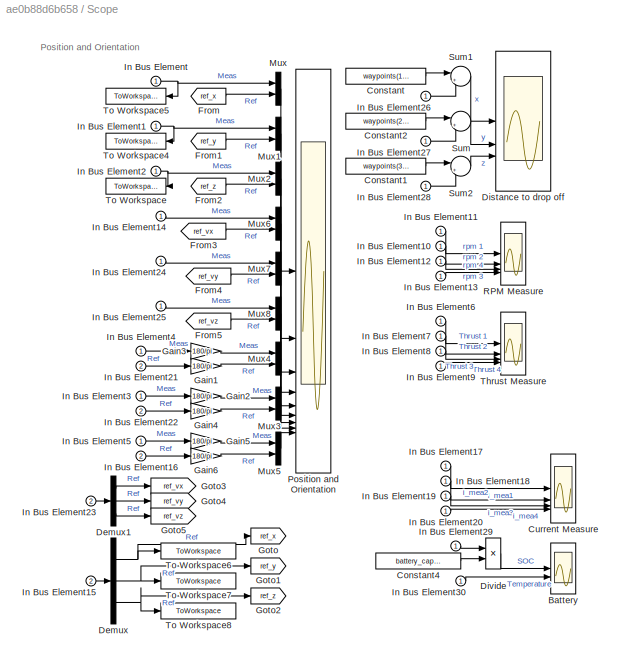
BLOCK [SubSystem] Scope
BLOCK [Scope] Scope/Battery
  Floating = off
  NumInputPorts = 2
  ScopeSpecificationString = Simulink.scopes.TimeScopeBlockCfg('CurrentConfiguration', extmgr.ConfigurationSet(extmgr.Configuration('Core','General UI',true),extmgr.Configuration('Core','Source UI',true),extmgr.Configuration('Sources','WiredSimulink',true,'DataLoggingVariableName','ScopeData1'),extmgr.Configuration('Visuals','Time Domain',true,'SerializedDisplays',{struct('MinYLimReal','0.99219','MaxYLimReal','1.00087','YLabe...<+2074ch>
BLOCK [Constant] Scope/Constant
  Value = waypoints(1,end)
BLOCK [Constant] Scope/Constant1
  Value = waypoints(3,end)
BLOCK [Constant] Scope/Constant2
  Value = waypoints(2,end)
BLOCK [Constant] Scope/Constant4
  Value = battery_capacity
BLOCK [Scope] Scope/Current Measure
  Floating = off
  NumInputPorts = 4
  ScopeSpecificationString = Simulink.scopes.TimeScopeBlockCfg('CurrentConfiguration', extmgr.ConfigurationSet(extmgr.Configuration('Core','General UI',true),extmgr.Configuration('Core','Source UI',true),extmgr.Configuration('Sources','WiredSimulink',true,'DataLoggingVariableName','ScopeData2'),extmgr.Configuration('Visuals','Time Domain',true,'SerializedDisplays',{struct('MinYLimReal','-5.48055','MaxYLimReal','19.1285','YLab...<+2175ch>
BLOCK [Demux] Scope/Demux
  Outputs = 3
BLOCK [Demux] Scope/Demux1
  Outputs = 3
BLOCK [Scope] Scope/Distance to drop off
  Floating = off
  NumInputPorts = 3
  ScopeSpecificationString = Simulink.scopes.TimeScopeBlockCfg('CurrentConfiguration', extmgr.ConfigurationSet(extmgr.Configuration('Core','General UI',true),extmgr.Configuration('Core','Source UI',true),extmgr.Configuration('Sources','WiredSimulink',true,'DataLoggingVariableName','ScopeData1'),extmgr.Configuration('Visuals','Time Domain',true,'SerializedDisplays',{struct('MinYLimReal','-0.83846','MaxYLimReal','0.45879','YLab...<+3004ch>
BLOCK [Product] Scope/Divide
  Inputs = */
BLOCK [From] Scope/From
  GotoTag = ref_x
BLOCK [From] Scope/From1
  GotoTag = ref_y
BLOCK [From] Scope/From2
  GotoTag = ref_z
BLOCK [From] Scope/From3
  GotoTag = ref_vx
BLOCK [From] Scope/From4
  GotoTag = ref_vy
BLOCK [From] Scope/From5
  GotoTag = ref_vz
BLOCK [Gain] Scope/Gain1
  Gain = 180/pi
BLOCK [Gain] Scope/Gain2
  Gain = 180/pi
BLOCK [Gain] Scope/Gain3
  Gain = 180/pi
BLOCK [Gain] Scope/Gain4
  Gain = 180/pi
BLOCK [Gain] Scope/Gain5
  Gain = 180/pi
BLOCK [Gain] Scope/Gain6
  Gain = 180/pi
BLOCK [Goto] Scope/Goto
  GotoTag = ref_x
BLOCK [Goto] Scope/Goto1
  GotoTag = ref_y
BLOCK [Goto] Scope/Goto2
  GotoTag = ref_z
BLOCK [Goto] Scope/Goto3
  GotoTag = ref_vx
BLOCK [Goto] Scope/Goto4
  GotoTag = ref_vy
BLOCK [Goto] Scope/Goto5
  GotoTag = ref_vz
BLOCK [Inport] Scope/In Bus Element
BLOCK [Inport] Scope/In Bus Element1
BLOCK [Inport] Scope/In Bus Element10
BLOCK [Inport] Scope/In Bus Element11
BLOCK [Inport] Scope/In Bus Element12
BLOCK [Inport] Scope/In Bus Element13
BLOCK [Inport] Scope/In Bus Element14
BLOCK [Inport] Scope/In Bus Element15
  Port = 2
BLOCK [Inport] Scope/In Bus Element16
  Port = 2
BLOCK [Inport] Scope/In Bus Element17
BLOCK [Inport] Scope/In Bus Element18
BLOCK [Inport] Scope/In Bus Element19
BLOCK [Inport] Scope/In Bus Element2
BLOCK [Inport] Scope/In Bus Element20
BLOCK [Inport] Scope/In Bus Element21
  Port = 2
BLOCK [Inport] Scope/In Bus Element22
  Port = 2
BLOCK [Inport] Scope/In Bus Element23
  Port = 2
BLOCK [Inport] Scope/In Bus Element24
BLOCK [Inport] Scope/In Bus Element25
BLOCK [Inport] Scope/In Bus Element26
BLOCK [Inport] Scope/In Bus Element27
BLOCK [Inport] Scope/In Bus Element28
BLOCK [Inport] Scope/In Bus Element29
BLOCK [Inport] Scope/In Bus Element3
BLOCK [Inport] Scope/In Bus Element30
BLOCK [Inport] Scope/In Bus Element4
BLOCK [Inport] Scope/In Bus Element5
BLOCK [Inport] Scope/In Bus Element6
BLOCK [Inport] Scope/In Bus Element7
BLOCK [Inport] Scope/In Bus Element8
BLOCK [Inport] Scope/In Bus Element9
BLOCK [Mux] Scope/Mux
  DisplayOption = bar
  Inputs = 2
BLOCK [Mux] Scope/Mux1
  DisplayOption = bar
  Inputs = 2
BLOCK [Mux] Scope/Mux2
  DisplayOption = bar
  Inputs = 2
BLOCK [Mux] Scope/Mux3
  DisplayOption = bar
  Inputs = 2
BLOCK [Mux] Scope/Mux4
  DisplayOption = bar
  Inputs = 2
BLOCK [Mux] Scope/Mux5
  DisplayOption = bar
  Inputs = 2
BLOCK [Mux] Scope/Mux6
  DisplayOption = bar
  Inputs = 2
BLOCK [Mux] Scope/Mux7
  DisplayOption = bar
  Inputs = 2
BLOCK [Mux] Scope/Mux8
  DisplayOption = bar
  Inputs = 2
BLOCK [Scope] Scope/Position and Orientation
  Floating = off
  NumInputPorts = 9
  ScopeSpecificationString = Simulink.scopes.TimeScopeBlockCfg('CurrentConfiguration', extmgr.ConfigurationSet(extmgr.Configuration('Core','General UI',true),extmgr.Configuration('Core','Source UI',true),extmgr.Configuration('Sources','WiredSimulink',true,'DataLoggingVariableName','ScopeData2'),extmgr.Configuration('Visuals','Time Domain',true,'SerializedDisplays',{struct('MinYLimReal','-2.95256','MaxYLimReal','5.99591','YLab...<+6892ch>
BLOCK [Scope] Scope/RPM Measure
  Floating = off
  NumInputPorts = 4
  ScopeSpecificationString = Simulink.scopes.TimeScopeBlockCfg('CurrentConfiguration', extmgr.ConfigurationSet(extmgr.Configuration('Core','General UI',true),extmgr.Configuration('Core','Source UI',true),extmgr.Configuration('Sources','WiredSimulink',true,'DataLoggingVariableName','ScopeData2'),extmgr.Configuration('Visuals','Time Domain',true,'SerializedDisplays',{struct('MinYLimReal','-7347.52347','MaxYLimReal','7432.06356'...<+1566ch>
BLOCK [Sum] Scope/Sum
  Inputs = |+-
BLOCK [Sum] Scope/Sum1
  Inputs = |+-
BLOCK [Sum] Scope/Sum2
  Inputs = |+-
BLOCK [Scope] Scope/Thrust Measure
  Floating = off
  NumInputPorts = 4
  ScopeSpecificationString = Simulink.scopes.TimeScopeBlockCfg('CurrentConfiguration', extmgr.ConfigurationSet(extmgr.Configuration('Core','General UI',true),extmgr.Configuration('Core','Source UI',true),extmgr.Configuration('Sources','WiredSimulink',true,'DataLoggingVariableName','ScopeData1'),extmgr.Configuration('Visuals','Time Domain',true,'SerializedDisplays',{struct('MinYLimReal','-0.67587','MaxYLimReal','6.05582','YLab...<+1521ch>
BLOCK [ToWorkspace] Scope/To Workspace
  FixptAsFi = on
  MaxDataPoints = inf
  SampleTime = -1
  VariableName = act_z1
BLOCK [ToWorkspace] Scope/To Workspace4
  FixptAsFi = on
  MaxDataPoints = inf
  SampleTime = -1
  VariableName = act_y1
BLOCK [ToWorkspace] Scope/To Workspace5
  FixptAsFi = on
  MaxDataPoints = inf
  SampleTime = -1
  VariableName = act_x1
BLOCK [ToWorkspace] Scope/To Workspace6
  MaxDataPoints = inf
  SampleTime = -1
  VariableName = des_x1
BLOCK [ToWorkspace] Scope/To Workspace7
  FixptAsFi = on
  MaxDataPoints = inf
  SampleTime = -1
  VariableName = des_y1
BLOCK [ToWorkspace] Scope/To Workspace8
  FixptAsFi = on
  MaxDataPoints = inf
  SampleTime = -1
  VariableName = des_z1
ANNOTATION (root): 1. Plot positions and velocities of chassis ( code ) 2. Plot trajectory in 3D space ( code ) 3. Plot currents and battery SOC ( code ) 4. Define path: Path 1 , Path 2 , Path 3 , Path 4 , Path 5 , Path 6 , ( code ) Round trip Path 1 , Path 2 , Path 3 , Path 4 , Path 5 , Path 6 Plot Trajectory ( code ) 5. Edit controller parameters 6. Parameter sweep: Package density ( code ), Trajectory speed ( cod...<+185ch>
ANNOTATION (root): Quadcopter Package Delivery
ANNOTATION Maneuver Controller/Altitude and YPR Control/Pause Motor: Create pulse to briefly stop motor while package is dropped.
ANNOTATION Maneuver Controller/Position Control: Body Frame
ANNOTATION Maneuver Controller/Position Control: World Frame
ANNOTATION Quadcopter/6 DOF: Body Frame
ANNOTATION Quadcopter/6 DOF: World Frame
ANNOTATION Quadcopter/6 DOF/Joints: Separate joints used to permit definition of camera viewpoints that do not rotate with the quadcopter.
ANNOTATION Quadcopter/6 DOF/R to X-Y-Z Extrinsic: The sensor implemented here computes roll / pitch / yaw values assuming they correpsond to X, Y, and Z rotations, applied in that order and using *extrinsic* rotations. That is, the rotations are applied about the fixed (non-rotated) axes of the base frame. There are many other possible conventions, but the computations of angles has the same basic structure for any of them. The only differences w...<+349ch>
ANNOTATION Quadcopter/Wind and Drag: Apply force and torque at center of pressure for no load
ANNOTATION Quadcopter/Wind and Drag: Apply force and torque at center of pressure when carrying load
ANNOTATION Scope: Position and Orientation
LINE Environment/Bias Height Min Wind:1 -> Environment/Saturation:1
LINE Environment/Bus Creator2:1 -> Environment/Env:1
LINE Environment/Constant1:1 -> Environment/Mux1:3
LINE Environment/In Bus Element:1 -> Environment/Bias Height Min Wind:1
LINE Environment/Mux1:1 -> Environment/Product1:2
LINE Environment/Product1:1 -> Environment/Vec to Bus:1
LINE Environment/Pulse Generator2:1 -> Environment/Mux1:1
LINE Environment/Pulse Generator3:1 -> Environment/Mux1:2
LINE Environment/Saturation:1 -> Environment/Scale Wind by Height :1
LINE Environment/Scale Wind by Height :1 -> Environment/Product1:1
LINE Environment/Vec to Bus/Bus Creator:1 -> Environment/Vec to Bus/B:1
LINE Environment/Vec to Bus/Demux:1 -> Environment/Vec to Bus/Bus Creator:1
LINE Environment/Vec to Bus/Demux:2 -> Environment/Vec to Bus/Bus Creator:2
LINE Environment/Vec to Bus/Demux:3 -> Environment/Vec to Bus/Bus Creator:3
LINE Environment/Vec to Bus/V:1 -> Environment/Vec to Bus/Demux:1
LINE Environment/Vec to Bus:1 -> Environment/Bus Creator2:1
LINE Environment:1 -> Quadcopter:1
LINE From:1 -> Scope:2
NET Maneuver Controller/Altitude and YPR Control/Add2:1 -> Maneuver Controller/Altitude and YPR Control/Control Roll:1, Maneuver Controller/Altitude and YPR Control/Roll Control:2
LINE Maneuver Controller/Altitude and YPR Control/Add3:1 -> Maneuver Controller/Altitude and YPR Control/Control Yaw:1
NET Maneuver Controller/Altitude and YPR Control/Add7:1 -> Maneuver Controller/Altitude and YPR Control/Control Pitch:1, Maneuver Controller/Altitude and YPR Control/Pitch Control:2
NET Maneuver Controller/Altitude and YPR Control/Add:1 -> Maneuver Controller/Altitude and YPR Control/Control Thrust:1, Maneuver Controller/Altitude and YPR Control/Thrust Control:2
NET Maneuver Controller/Altitude and YPR Control/Control Pitch:1 -> Maneuver Controller/Altitude and YPR Control/Motor Pitch:1, Maneuver Controller/Altitude and YPR Control/Pitch Control:3
NET Maneuver Controller/Altitude and YPR Control/Control Roll:1 -> Maneuver Controller/Altitude and YPR Control/Motor Roll:1, Maneuver Controller/Altitude and YPR Control/Roll Control:3
NET Maneuver Controller/Altitude and YPR Control/Control Thrust:1 -> Maneuver Controller/Altitude and YPR Control/Thrust Control:3, Maneuver Controller/Altitude and YPR Control/Thrust to Torque:1
LINE Maneuver Controller/Altitude and YPR Control/Control Yaw:1 -> Maneuver Controller/Altitude and YPR Control/Motor Yaw:1
NET Maneuver Controller/Altitude and YPR Control/Filter Pitch:1 -> Maneuver Controller/Altitude and YPR Control/Add7:2, Maneuver Controller/Altitude and YPR Control/Mux1:2
NET Maneuver Controller/Altitude and YPR Control/Filter Roll:1 -> Maneuver Controller/Altitude and YPR Control/Add2:2, Maneuver Controller/Altitude and YPR Control/Mux2:2
LINE Maneuver Controller/Altitude and YPR Control/Filter Yaw:1 -> Maneuver Controller/Altitude and YPR Control/Add3:2
NET Maneuver Controller/Altitude and YPR Control/Filter pz:1 -> Maneuver Controller/Altitude and YPR Control/Add:2, Maneuver Controller/Altitude and YPR Control/Mux:2
LINE Maneuver Controller/Altitude and YPR Control/In Bus Element1:1 -> Maneuver Controller/Altitude and YPR Control/Filter Roll:1
LINE Maneuver Controller/Altitude and YPR Control/In Bus Element2:1 -> Maneuver Controller/Altitude and YPR Control/Filter Pitch:1
LINE Maneuver Controller/Altitude and YPR Control/In Bus Element3:1 -> Maneuver Controller/Altitude and YPR Control/Filter Yaw:1
LINE Maneuver Controller/Altitude and YPR Control/In Bus Element4:1 -> Maneuver Controller/Altitude and YPR Control/Filter pz:1
LINE Maneuver Controller/Altitude and YPR Control/In Bus Element9:1 -> Maneuver Controller/Altitude and YPR Control/Select z:1
NET Maneuver Controller/Altitude and YPR Control/In Bus Element:1 -> Maneuver Controller/Altitude and YPR Control/Pause Motor:1, Maneuver Controller/Altitude and YPR Control/Subsystem:2, Maneuver Controller/Altitude and YPR Control/Thrust Control:6
LINE Maneuver Controller/Altitude and YPR Control/Mux1:1 -> Maneuver Controller/Altitude and YPR Control/Pitch Control:1
LINE Maneuver Controller/Altitude and YPR Control/Mux2:1 -> Maneuver Controller/Altitude and YPR Control/Roll Control:1
LINE Maneuver Controller/Altitude and YPR Control/Mux:1 -> Maneuver Controller/Altitude and YPR Control/Thrust Control:1
LINE Maneuver Controller/Altitude and YPR Control/Pause Motor/Bias:1 -> Maneuver Controller/Altitude and YPR Control/Pause Motor/En:1
LINE Maneuver Controller/Altitude and YPR Control/Pause Motor/Delay:1 -> Maneuver Controller/Altitude and YPR Control/Pause Motor/Sum2:1
NET Maneuver Controller/Altitude and YPR Control/Pause Motor/Sign Change:1 -> Maneuver Controller/Altitude and YPR Control/Pause Motor/Delay:1, Maneuver Controller/Altitude and YPR Control/Pause Motor/Sum2:2
LINE Maneuver Controller/Altitude and YPR Control/Pause Motor/Sum2:1 -> Maneuver Controller/Altitude and YPR Control/Pause Motor/Bias:1
LINE Maneuver Controller/Altitude and YPR Control/Pause Motor/y:1 -> Maneuver Controller/Altitude and YPR Control/Pause Motor/Sign Change:1
NET Maneuver Controller/Altitude and YPR Control/Pause Motor:1 -> Maneuver Controller/Altitude and YPR Control/Product:1, Maneuver Controller/Altitude and YPR Control/Thrust Control:5
NET Maneuver Controller/Altitude and YPR Control/Pitch Cmd:1 -> Maneuver Controller/Altitude and YPR Control/Add7:1, Maneuver Controller/Altitude and YPR Control/Mux1:1
LINE Maneuver Controller/Altitude and YPR Control/Product:1 -> Maneuver Controller/Altitude and YPR Control/Motor Thrust:1
NET Maneuver Controller/Altitude and YPR Control/Roll Cmd:1 -> Maneuver Controller/Altitude and YPR Control/Add2:1, Maneuver Controller/Altitude and YPR Control/Mux2:1
NET Maneuver Controller/Altitude and YPR Control/Select z:1 -> Maneuver Controller/Altitude and YPR Control/Add:1, Maneuver Controller/Altitude and YPR Control/Mux:1
LINE Maneuver Controller/Altitude and YPR Control/Subsystem/Bias Chassis:1 -> Maneuver Controller/Altitude and YPR Control/Subsystem/Sum:1
LINE Maneuver Controller/Altitude and YPR Control/Subsystem/Bias Load:1 -> Maneuver Controller/Altitude and YPR Control/Subsystem/Sum:2
LINE Maneuver Controller/Altitude and YPR Control/Subsystem/Bias:1 -> Maneuver Controller/Altitude and YPR Control/Subsystem/Bias Load:1
LINE Maneuver Controller/Altitude and YPR Control/Subsystem/Speed:1 -> Maneuver Controller/Altitude and YPR Control/Subsystem/Out1:1
LINE Maneuver Controller/Altitude and YPR Control/Subsystem/Sum:1 -> Maneuver Controller/Altitude and YPR Control/Subsystem/Speed:1
LINE Maneuver Controller/Altitude and YPR Control/Subsystem/cmd:1 -> Maneuver Controller/Altitude and YPR Control/Subsystem/Bias Chassis:1
LINE Maneuver Controller/Altitude and YPR Control/Subsystem/load:1 -> Maneuver Controller/Altitude and YPR Control/Subsystem/Bias:1
NET Maneuver Controller/Altitude and YPR Control/Subsystem:1 -> Maneuver Controller/Altitude and YPR Control/Product:2, Maneuver Controller/Altitude and YPR Control/Thrust Control:4
LINE Maneuver Controller/Altitude and YPR Control/Thrust to Torque:1 -> Maneuver Controller/Altitude and YPR Control/Subsystem:1
LINE Maneuver Controller/Altitude and YPR Control/Yaw Cmd:1 -> Maneuver Controller/Altitude and YPR Control/Add3:1
LINE Maneuver Controller/Altitude and YPR Control:1 -> Maneuver Controller/Motor Mixer:1
LINE Maneuver Controller/Altitude and YPR Control:2 -> Maneuver Controller/Motor Mixer:2
LINE Maneuver Controller/Altitude and YPR Control:3 -> Maneuver Controller/Motor Mixer:3
LINE Maneuver Controller/Altitude and YPR Control:4 -> Maneuver Controller/Motor Mixer:4
NET Maneuver Controller/In Bus Element13:1 -> Maneuver Controller/Altitude and YPR Control:1, Maneuver Controller/Position Control:1
NET Maneuver Controller/In Bus Element3:1 -> Maneuver Controller/Altitude and YPR Control:2, Maneuver Controller/Position Control:2
LINE Maneuver Controller/Motor Mixer/Add4:1 -> Maneuver Controller/Motor Mixer/Out Bus Element:1
LINE Maneuver Controller/Motor Mixer/Add5:1 -> Maneuver Controller/Motor Mixer/Out Bus Element1:1
LINE Maneuver Controller/Motor Mixer/Add6:1 -> Maneuver Controller/Motor Mixer/Out Bus Element3:1
LINE Maneuver Controller/Motor Mixer/Add7:1 -> Maneuver Controller/Motor Mixer/Out Bus Element2:1
LINE Maneuver Controller/Motor Mixer/From10:1 -> Maneuver Controller/Motor Mixer/Add5:3
LINE Maneuver Controller/Motor Mixer/From11:1 -> Maneuver Controller/Motor Mixer/RPY Thrust Cmd:3
LINE Maneuver Controller/Motor Mixer/From12:1 -> Maneuver Controller/Motor Mixer/Add4:3
LINE Maneuver Controller/Motor Mixer/From13:1 -> Maneuver Controller/Motor Mixer/Add6:3
LINE Maneuver Controller/Motor Mixer/From14:1 -> Maneuver Controller/Motor Mixer/Add7:3
LINE Maneuver Controller/Motor Mixer/From15:1 -> Maneuver Controller/Motor Mixer/RPY Thrust Cmd:4
LINE Maneuver Controller/Motor Mixer/From16:1 -> Maneuver Controller/Motor Mixer/Add5:4
LINE Maneuver Controller/Motor Mixer/From17:1 -> Maneuver Controller/Motor Mixer/Add4:4
LINE Maneuver Controller/Motor Mixer/From18:1 -> Maneuver Controller/Motor Mixer/Add6:4
LINE Maneuver Controller/Motor Mixer/From19:1 -> Maneuver Controller/Motor Mixer/Add7:4
LINE Maneuver Controller/Motor Mixer/From1:1 -> Maneuver Controller/Motor Mixer/Add4:1
LINE Maneuver Controller/Motor Mixer/From2:1 -> Maneuver Controller/Motor Mixer/Add6:1
LINE Maneuver Controller/Motor Mixer/From3:1 -> Maneuver Controller/Motor Mixer/Add7:1
LINE Maneuver Controller/Motor Mixer/From4:1 -> Maneuver Controller/Motor Mixer/Add5:2
LINE Maneuver Controller/Motor Mixer/From5:1 -> Maneuver Controller/Motor Mixer/RPY Thrust Cmd:1
LINE Maneuver Controller/Motor Mixer/From6:1 -> Maneuver Controller/Motor Mixer/RPY Thrust Cmd:2
LINE Maneuver Controller/Motor Mixer/From7:1 -> Maneuver Controller/Motor Mixer/Add4:2
LINE Maneuver Controller/Motor Mixer/From8:1 -> Maneuver Controller/Motor Mixer/Add6:2
LINE Maneuver Controller/Motor Mixer/From9:1 -> Maneuver Controller/Motor Mixer/Add7:2
LINE Maneuver Controller/Motor Mixer/From:1 -> Maneuver Controller/Motor Mixer/Add5:1
LINE Maneuver Controller/Motor Mixer/Pitch Cmd:1 -> Maneuver Controller/Motor Mixer/Goto1:1
LINE Maneuver Controller/Motor Mixer/Roll Cmd:1 -> Maneuver Controller/Motor Mixer/Goto4:1
LINE Maneuver Controller/Motor Mixer/Thrust Cmd:1 -> Maneuver Controller/Motor Mixer/Goto2:1
LINE Maneuver Controller/Motor Mixer/Yaw Cmd:1 -> Maneuver Controller/Motor Mixer/Goto3:1
LINE Maneuver Controller/Motor Mixer:1 -> Maneuver Controller/cmd:1
LINE Maneuver Controller/Position Control/Calculate RBI:1 -> Maneuver Controller/Position Control/Matrix Multiply:1
LINE Maneuver Controller/Position Control/Demux:1 -> Maneuver Controller/Position Control/Dir P:1
LINE Maneuver Controller/Position Control/Demux:2 -> Maneuver Controller/Position Control/Dir R:1
LINE Maneuver Controller/Position Control/Demux:3 -> Maneuver Controller/Position Control/Terminator:1
LINE Maneuver Controller/Position Control/Dir P:1 -> Maneuver Controller/Position Control/Err2P:1
LINE Maneuver Controller/Position Control/Dir R:1 -> Maneuver Controller/Position Control/Err2R:1
LINE Maneuver Controller/Position Control/Err2P:1 -> Maneuver Controller/Position Control/Pitch Limit:1
LINE Maneuver Controller/Position Control/Err2R:1 -> Maneuver Controller/Position Control/Roll Limit:1
LINE Maneuver Controller/Position Control/Filter/Demux1:1 -> Maneuver Controller/Position Control/Filter/Transfer Fcn:1
LINE Maneuver Controller/Position Control/Filter/Demux1:2 -> Maneuver Controller/Position Control/Filter/Transfer Fcn1:1
LINE Maneuver Controller/Position Control/Filter/Demux1:3 -> Maneuver Controller/Position Control/Filter/Transfer Fcn2:1
LINE Maneuver Controller/Position Control/Filter/Mux p1:1 -> Maneuver Controller/Position Control/Filter/o:1
LINE Maneuver Controller/Position Control/Filter/Transfer Fcn1:1 -> Maneuver Controller/Position Control/Filter/Mux p1:2
LINE Maneuver Controller/Position Control/Filter/Transfer Fcn2:1 -> Maneuver Controller/Position Control/Filter/Mux p1:3
LINE Maneuver Controller/Position Control/Filter/Transfer Fcn:1 -> Maneuver Controller/Position Control/Filter/Mux p1:1
LINE Maneuver Controller/Position Control/Filter/i:1 -> Maneuver Controller/Position Control/Filter/Demux1:1
NET Maneuver Controller/Position Control/Filter:1 -> Maneuver Controller/Position Control/Demux:1, Maneuver Controller/Position Control/Scope:1
LINE Maneuver Controller/Position Control/In Bus Element11:1 -> Maneuver Controller/Position Control/Mux rpy:3
LINE Maneuver Controller/Position Control/In Bus Element12:1 -> Maneuver Controller/Position Control/Out Bus Element:1
LINE Maneuver Controller/Position Control/In Bus Element13:1 -> Maneuver Controller/Position Control/Out Bus Element1:1
LINE Maneuver Controller/Position Control/In Bus Element1:1 -> Maneuver Controller/Position Control/Mux p:1
LINE Maneuver Controller/Position Control/In Bus Element2:1 -> Maneuver Controller/Position Control/Mux p:2
LINE Maneuver Controller/Position Control/In Bus Element3:1 -> Maneuver Controller/Position Control/Mux p:3
LINE Maneuver Controller/Position Control/In Bus Element7:1 -> Maneuver Controller/Position Control/Subtract2:1
LINE Maneuver Controller/Position Control/In Bus Element8:1 -> Maneuver Controller/Position Control/Mux rpy:1
LINE Maneuver Controller/Position Control/In Bus Element9:1 -> Maneuver Controller/Position Control/Mux rpy:2
NET Maneuver Controller/Position Control/In Bus Element:1 -> Maneuver Controller/Position Control/Out Bus Element4:1, Maneuver Controller/Position Control/Yaw Cmd:1
LINE Maneuver Controller/Position Control/Matrix Multiply:1 -> Maneuver Controller/Position Control/Filter:1
LINE Maneuver Controller/Position Control/Mux p:1 -> Maneuver Controller/Position Control/Subtract2:2
LINE Maneuver Controller/Position Control/Mux rpy:1 -> Maneuver Controller/Position Control/Calculate RBI:1
LINE Maneuver Controller/Position Control/PID Controller:1 -> Maneuver Controller/Position Control/Matrix Multiply:2
NET Maneuver Controller/Position Control/Pitch Limit:1 -> Maneuver Controller/Position Control/Out Bus Element3:1, Maneuver Controller/Position Control/Pitch Cmd:1
NET Maneuver Controller/Position Control/Roll Limit:1 -> Maneuver Controller/Position Control/Out Bus Element2:1, Maneuver Controller/Position Control/Roll Cmd:1
NET Maneuver Controller/Position Control/Subtract2:1 -> Maneuver Controller/Position Control/PID Controller:1, Maneuver Controller/Position Control/Scope:2
LINE Maneuver Controller/Position Control:1 -> Maneuver Controller/Altitude and YPR Control:3
LINE Maneuver Controller/Position Control:2 -> Maneuver Controller/Altitude and YPR Control:4
LINE Maneuver Controller/Position Control:3 -> Maneuver Controller/Altitude and YPR Control:5
LINE Maneuver Controller/Position Control:4 -> Maneuver Controller/Ref:1
LINE Maneuver Controller:1 -> Quadcopter:2
LINE Maneuver Controller:2 -> Goto:1
LINE Quadcopter/6 DOF/PS-Simulink Converter11:1 -> Quadcopter/6 DOF/Roll Pitch:1
LINE Quadcopter/6 DOF/PS-Simulink Converter13:1 -> Quadcopter/6 DOF/R to X-Y-Z Extrinsic:1
LINE Quadcopter/6 DOF/PS-Simulink Converter1:1 -> Quadcopter/6 DOF/Out Bus Element4:1
LINE Quadcopter/6 DOF/PS-Simulink Converter2:1 -> Quadcopter/6 DOF/Out Bus Element5:1
NET Quadcopter/6 DOF/PS-Simulink Converter3:1 -> Quadcopter/6 DOF/Out Bus Element11:1, Quadcopter/6 DOF/R to X-Y-Z Extrinsic:2
LINE Quadcopter/6 DOF/PS-Simulink Converter4:1 -> Quadcopter/6 DOF/Out Bus Element9:1
LINE Quadcopter/6 DOF/PS-Simulink Converter5:1 -> Quadcopter/6 DOF/Out Bus Element10:1
LINE Quadcopter/6 DOF/PS-Simulink Converter:1 -> Quadcopter/6 DOF/Out Bus Element3:1
LINE Quadcopter/6 DOF/R to X-Y-Z Extrinsic/Asin:1 -> Quadcopter/6 DOF/R to X-Y-Z Extrinsic/Reshape1:1
LINE Quadcopter/6 DOF/R to X-Y-Z Extrinsic/Atan1:1 -> Quadcopter/6 DOF/R to X-Y-Z Extrinsic/Reshape:1
LINE Quadcopter/6 DOF/R to X-Y-Z Extrinsic/Atan2:1 -> Quadcopter/6 DOF/R to X-Y-Z Extrinsic/Reshape2:1
LINE Quadcopter/6 DOF/R to X-Y-Z Extrinsic/Demux1:1 -> Quadcopter/6 DOF/R to X-Y-Z Extrinsic/Atan1:1
LINE Quadcopter/6 DOF/R to X-Y-Z Extrinsic/Demux1:2 -> Quadcopter/6 DOF/R to X-Y-Z Extrinsic/Atan1:2
LINE Quadcopter/6 DOF/R to X-Y-Z Extrinsic/Demux:1 -> Quadcopter/6 DOF/R to X-Y-Z Extrinsic/Atan2:1
LINE Quadcopter/6 DOF/R to X-Y-Z Extrinsic/Demux:2 -> Quadcopter/6 DOF/R to X-Y-Z Extrinsic/Atan2:2
LINE Quadcopter/6 DOF/R to X-Y-Z Extrinsic/Multiply2:1 -> Quadcopter/6 DOF/R to X-Y-Z Extrinsic/Asin:1
LINE Quadcopter/6 DOF/R to X-Y-Z Extrinsic/Mux:1 -> Quadcopter/6 DOF/R to X-Y-Z Extrinsic/Scope:1
LINE Quadcopter/6 DOF/R to X-Y-Z Extrinsic/R(3, 1):1 -> Quadcopter/6 DOF/R to X-Y-Z Extrinsic/Multiply2:1
LINE Quadcopter/6 DOF/R to X-Y-Z Extrinsic/R(3, 2:3):1 -> Quadcopter/6 DOF/R to X-Y-Z Extrinsic/Demux:1
LINE Quadcopter/6 DOF/R to X-Y-Z Extrinsic/R([2 1], 1):1 -> Quadcopter/6 DOF/R to X-Y-Z Extrinsic/Demux1:1
NET Quadcopter/6 DOF/R to X-Y-Z Extrinsic/R:1 -> Quadcopter/6 DOF/R to X-Y-Z Extrinsic/R(3, 1):1, Quadcopter/6 DOF/R to X-Y-Z Extrinsic/R(3, 2:3):1, Quadcopter/6 DOF/R to X-Y-Z Extrinsic/R([2 1], 1):1
LINE Quadcopter/6 DOF/R to X-Y-Z Extrinsic/Reshape1:1 -> Quadcopter/6 DOF/R to X-Y-Z Extrinsic/pitch:1
LINE Quadcopter/6 DOF/R to X-Y-Z Extrinsic/Reshape2:1 -> Quadcopter/6 DOF/R to X-Y-Z Extrinsic/roll:1
NET Quadcopter/6 DOF/R to X-Y-Z Extrinsic/Reshape:1 -> Quadcopter/6 DOF/R to X-Y-Z Extrinsic/Mux:1, Quadcopter/6 DOF/R to X-Y-Z Extrinsic/Unwrap:1, Quadcopter/6 DOF/R to X-Y-Z Extrinsic/yawWr:1
LINE Quadcopter/6 DOF/R to X-Y-Z Extrinsic/Unwrap/Fcn1:1 -> Quadcopter/6 DOF/R to X-Y-Z Extrinsic/Unwrap/Gain4:1
NET Quadcopter/6 DOF/R to X-Y-Z Extrinsic/Unwrap/Gain1:1 -> Quadcopter/6 DOF/R to X-Y-Z Extrinsic/Unwrap/Integrator:2, Quadcopter/6 DOF/R to X-Y-Z Extrinsic/Unwrap/Mux:2
LINE Quadcopter/6 DOF/R to X-Y-Z Extrinsic/Unwrap/Gain3:1 -> Quadcopter/6 DOF/R to X-Y-Z Extrinsic/Unwrap/Integrator:1
LINE Quadcopter/6 DOF/R to X-Y-Z Extrinsic/Unwrap/Gain4:1 -> Quadcopter/6 DOF/R to X-Y-Z Extrinsic/Unwrap/unwrapped:1
LINE Quadcopter/6 DOF/R to X-Y-Z Extrinsic/Unwrap/Integrator:1 -> Quadcopter/6 DOF/R to X-Y-Z Extrinsic/Unwrap/Mux:1
LINE Quadcopter/6 DOF/R to X-Y-Z Extrinsic/Unwrap/Mux:1 -> Quadcopter/6 DOF/R to X-Y-Z Extrinsic/Unwrap/Fcn1:1
LINE Quadcopter/6 DOF/R to X-Y-Z Extrinsic/Unwrap/angle:1 -> Quadcopter/6 DOF/R to X-Y-Z Extrinsic/Unwrap/Gain1:1
LINE Quadcopter/6 DOF/R to X-Y-Z Extrinsic/Unwrap/w:1 -> Quadcopter/6 DOF/R to X-Y-Z Extrinsic/Unwrap/Gain3:1
NET Quadcopter/6 DOF/R to X-Y-Z Extrinsic/Unwrap:1 -> Quadcopter/6 DOF/R to X-Y-Z Extrinsic/Mux:2, Quadcopter/6 DOF/R to X-Y-Z Extrinsic/yaw:1
NET Quadcopter/6 DOF/R to X-Y-Z Extrinsic/nYaw:1 -> Quadcopter/6 DOF/R to X-Y-Z Extrinsic/Scope:2, Quadcopter/6 DOF/R to X-Y-Z Extrinsic/Unwrap:2
LINE Quadcopter/6 DOF/R to X-Y-Z Extrinsic:1 -> Quadcopter/6 DOF/Out Bus Element8:1
LINE Quadcopter/6 DOF/R to X-Y-Z Extrinsic:2 -> Quadcopter/6 DOF/Terminator:1
LINE Quadcopter/6 DOF/R to X-Y-Z Extrinsic:3 -> Quadcopter/6 DOF/Terminator1:1
LINE Quadcopter/6 DOF/R to X-Y-Z Extrinsic:4 -> Quadcopter/6 DOF/Out Bus Element12:1
LINE Quadcopter/6 DOF/Roll Pitch/Calculate aPitch/Asin:1 -> Quadcopter/6 DOF/Roll Pitch/Calculate aPitch/Angle:1
LINE Quadcopter/6 DOF/Roll Pitch/Calculate aPitch/Cos:1 -> Quadcopter/6 DOF/Roll Pitch/Calculate aPitch/Divide:2
LINE Quadcopter/6 DOF/Roll Pitch/Calculate aPitch/Divide1:1 -> Quadcopter/6 DOF/Roll Pitch/Calculate aPitch/Asin:1
LINE Quadcopter/6 DOF/Roll Pitch/Calculate aPitch/Divide:1 -> Quadcopter/6 DOF/Roll Pitch/Calculate aPitch/Divide1:1
LINE Quadcopter/6 DOF/Roll Pitch/Calculate aPitch/Roll Angle:1 -> Quadcopter/6 DOF/Roll Pitch/Calculate aPitch/Cos:1
LINE Quadcopter/6 DOF/Roll Pitch/Calculate aPitch/Selector:1 -> Quadcopter/6 DOF/Roll Pitch/Calculate aPitch/Divide:1
LINE Quadcopter/6 DOF/Roll Pitch/Calculate aPitch/magnitude:1 -> Quadcopter/6 DOF/Roll Pitch/Calculate aPitch/Divide1:2
NET Quadcopter/6 DOF/Roll Pitch/Calculate aPitch/uvec:1 -> Quadcopter/6 DOF/Roll Pitch/Calculate aPitch/Selector:1, Quadcopter/6 DOF/Roll Pitch/Calculate aPitch/magnitude:1
LINE Quadcopter/6 DOF/Roll Pitch/Calculate aPitch:1 -> Quadcopter/6 DOF/Roll Pitch/Flip sign for -x axis :1
LINE Quadcopter/6 DOF/Roll Pitch/Calculate aRoll/Demux:1 -> Quadcopter/6 DOF/Roll Pitch/Calculate aRoll/Mux:1
LINE Quadcopter/6 DOF/Roll Pitch/Calculate aRoll/Demux:2 -> Quadcopter/6 DOF/Roll Pitch/Calculate aRoll/Mux:2
LINE Quadcopter/6 DOF/Roll Pitch/Calculate aRoll/Demux:3 -> Quadcopter/6 DOF/Roll Pitch/Calculate aRoll/Trigonometric Function1:1
LINE Quadcopter/6 DOF/Roll Pitch/Calculate aRoll/Mux:1 -> Quadcopter/6 DOF/Roll Pitch/Calculate aRoll/magnitude:1
LINE Quadcopter/6 DOF/Roll Pitch/Calculate aRoll/Trigonometric Function1:1 -> Quadcopter/6 DOF/Roll Pitch/Calculate aRoll/Angle:1
LINE Quadcopter/6 DOF/Roll Pitch/Calculate aRoll/magnitude:1 -> Quadcopter/6 DOF/Roll Pitch/Calculate aRoll/Trigonometric Function1:2
LINE Quadcopter/6 DOF/Roll Pitch/Calculate aRoll/uvec:1 -> Quadcopter/6 DOF/Roll Pitch/Calculate aRoll/Demux:1
NET Quadcopter/6 DOF/Roll Pitch/Calculate aRoll:1 -> Quadcopter/6 DOF/Roll Pitch/Calculate aPitch:1, Quadcopter/6 DOF/Roll Pitch/Transfer Fcn:1, Quadcopter/6 DOF/Roll Pitch/aRoll:1
NET Quadcopter/6 DOF/Roll Pitch/Flip sign for -x axis :1 -> Quadcopter/6 DOF/Roll Pitch/Transfer Fcn1:1, Quadcopter/6 DOF/Roll Pitch/aPitch:1
NET Quadcopter/6 DOF/Roll Pitch/R:1 -> Quadcopter/6 DOF/Roll Pitch/Select x axis:1, Quadcopter/6 DOF/Roll Pitch/Select y axis:1
LINE Quadcopter/6 DOF/Roll Pitch/Select x axis:1 -> Quadcopter/6 DOF/Roll Pitch/Calculate aPitch:2
LINE Quadcopter/6 DOF/Roll Pitch/Select y axis:1 -> Quadcopter/6 DOF/Roll Pitch/Calculate aRoll:1
LINE Quadcopter/6 DOF/Roll Pitch/Transfer Fcn1:1 -> Quadcopter/6 DOF/Roll Pitch/nPitch:1
LINE Quadcopter/6 DOF/Roll Pitch/Transfer Fcn:1 -> Quadcopter/6 DOF/Roll Pitch/nRoll:1
LINE Quadcopter/6 DOF/Roll Pitch:1 -> Quadcopter/6 DOF/Out Bus Element6:1
LINE Quadcopter/6 DOF/Roll Pitch:2 -> Quadcopter/6 DOF/Out Bus Element7:1
LINE Quadcopter/6 DOF/Roll Pitch:3 -> Quadcopter/6 DOF/Terminator2:1
LINE Quadcopter/6 DOF/Roll Pitch:4 -> Quadcopter/6 DOF/Terminator3:1
LINE Quadcopter/6 DOF/x:1 -> Quadcopter/6 DOF/Out Bus Element:1
LINE Quadcopter/6 DOF/y:1 -> Quadcopter/6 DOF/Out Bus Element1:1
LINE Quadcopter/6 DOF/z:1 -> Quadcopter/6 DOF/Out Bus Element2:1
NET Quadcopter/6 DOF:1 -> Quadcopter/Out Bus Element:1, Quadcopter/Wind and Drag:3
NET Quadcopter/Electrical/Control1/Add:1 -> Quadcopter/Electrical/Control1/Control:1, Quadcopter/Electrical/Control1/Scope:2
NET Quadcopter/Electrical/Control1/Control:1 -> Quadcopter/Electrical/Control1/Scope:3, Quadcopter/Electrical/Control1/torque:1
LINE Quadcopter/Electrical/Control1/Mux:1 -> Quadcopter/Electrical/Control1/Scope:1
NET Quadcopter/Electrical/Control1/Transfer Fcn1:1 -> Quadcopter/Electrical/Control1/Add:2, Quadcopter/Electrical/Control1/Mux:2
LINE Quadcopter/Electrical/Control1/meas:1 -> Quadcopter/Electrical/Control1/Transfer Fcn1:1
NET Quadcopter/Electrical/Control1/ref:1 -> Quadcopter/Electrical/Control1/Add:1, Quadcopter/Electrical/Control1/Mux:1
LINE Quadcopter/Electrical/Control1:1 -> Quadcopter/Electrical/Simulink-PS Converter1:1
NET Quadcopter/Electrical/Control2/Add:1 -> Quadcopter/Electrical/Control2/Control:1, Quadcopter/Electrical/Control2/Scope:2
NET Quadcopter/Electrical/Control2/Control:1 -> Quadcopter/Electrical/Control2/Scope:3, Quadcopter/Electrical/Control2/torque:1
LINE Quadcopter/Electrical/Control2/Mux:1 -> Quadcopter/Electrical/Control2/Scope:1
NET Quadcopter/Electrical/Control2/Transfer Fcn1:1 -> Quadcopter/Electrical/Control2/Add:2, Quadcopter/Electrical/Control2/Mux:2
LINE Quadcopter/Electrical/Control2/meas:1 -> Quadcopter/Electrical/Control2/Transfer Fcn1:1
NET Quadcopter/Electrical/Control2/ref:1 -> Quadcopter/Electrical/Control2/Add:1, Quadcopter/Electrical/Control2/Mux:1
LINE Quadcopter/Electrical/Control2:1 -> Quadcopter/Electrical/Simulink-PS Converter3:1
NET Quadcopter/Electrical/Control3/Add:1 -> Quadcopter/Electrical/Control3/Control:1, Quadcopter/Electrical/Control3/Scope:2
NET Quadcopter/Electrical/Control3/Control:1 -> Quadcopter/Electrical/Control3/Scope:3, Quadcopter/Electrical/Control3/torque:1
LINE Quadcopter/Electrical/Control3/Mux:1 -> Quadcopter/Electrical/Control3/Scope:1
NET Quadcopter/Electrical/Control3/Transfer Fcn1:1 -> Quadcopter/Electrical/Control3/Add:2, Quadcopter/Electrical/Control3/Mux:2
LINE Quadcopter/Electrical/Control3/meas:1 -> Quadcopter/Electrical/Control3/Transfer Fcn1:1
NET Quadcopter/Electrical/Control3/ref:1 -> Quadcopter/Electrical/Control3/Add:1, Quadcopter/Electrical/Control3/Mux:1
LINE Quadcopter/Electrical/Control3:1 -> Quadcopter/Electrical/Simulink-PS Converter4:1
NET Quadcopter/Electrical/Control4/Add:1 -> Quadcopter/Electrical/Control4/Control:1, Quadcopter/Electrical/Control4/Scope:2
NET Quadcopter/Electrical/Control4/Control:1 -> Quadcopter/Electrical/Control4/Scope:3, Quadcopter/Electrical/Control4/torque:1
LINE Quadcopter/Electrical/Control4/Mux:1 -> Quadcopter/Electrical/Control4/Scope:1
NET Quadcopter/Electrical/Control4/Transfer Fcn1:1 -> Quadcopter/Electrical/Control4/Add:2, Quadcopter/Electrical/Control4/Mux:2
LINE Quadcopter/Electrical/Control4/meas:1 -> Quadcopter/Electrical/Control4/Transfer Fcn1:1
NET Quadcopter/Electrical/Control4/ref:1 -> Quadcopter/Electrical/Control4/Add:1, Quadcopter/Electrical/Control4/Mux:1
LINE Quadcopter/Electrical/Control4:1 -> Quadcopter/Electrical/Simulink-PS Converter2:1
LINE Quadcopter/Electrical/In Bus Element1:1 -> Quadcopter/Electrical/Control2:1
LINE Quadcopter/Electrical/In Bus Element2:1 -> Quadcopter/Electrical/Control3:1
LINE Quadcopter/Electrical/In Bus Element3:1 -> Quadcopter/Electrical/Control4:1
LINE Quadcopter/Electrical/In Bus Element:1 -> Quadcopter/Electrical/Control1:1
LINE Quadcopter/Electrical/PS-Simulink Converter1:1 -> Quadcopter/Electrical/Control1:2
LINE Quadcopter/Electrical/PS-Simulink Converter2:1 -> Quadcopter/Electrical/Control2:2
LINE Quadcopter/Electrical/PS-Simulink Converter3:1 -> Quadcopter/Electrical/Control3:2
LINE Quadcopter/Electrical/PS-Simulink Converter4:1 -> Quadcopter/Electrical/Control4:2
LINE Quadcopter/Electrical/PS-Simulink Converter:1 -> Quadcopter/Electrical/Out Bus Element4:1
LINE Quadcopter/Electrical/Sensing Temperature/PS-Simulink Converter:1 -> Quadcopter/Electrical/Sensing Temperature/T:1
LINE Quadcopter/Electrical/Sensing Temperature:1 -> Quadcopter/Electrical/Out Bus Element5:1
LINE Quadcopter/Electrical/Sensor M1/PS-Simulink Converter3:1 -> Quadcopter/Electrical/Sensor M1/i:1
LINE Quadcopter/Electrical/Sensor M1:1 -> Quadcopter/Electrical/Out Bus Element:1
LINE Quadcopter/Electrical/Sensor M2/PS-Simulink Converter3:1 -> Quadcopter/Electrical/Sensor M2/i:1
LINE Quadcopter/Electrical/Sensor M2:1 -> Quadcopter/Electrical/Out Bus Element1:1
LINE Quadcopter/Electrical/Sensor M3/PS-Simulink Converter3:1 -> Quadcopter/Electrical/Sensor M3/i:1
LINE Quadcopter/Electrical/Sensor M3:1 -> Quadcopter/Electrical/Out Bus Element2:1
LINE Quadcopter/Electrical/Sensor M4/PS-Simulink Converter3:1 -> Quadcopter/Electrical/Sensor M4/i:1
LINE Quadcopter/Electrical/Sensor M4:1 -> Quadcopter/Electrical/Out Bus Element3:1
LINE Quadcopter/Electrical:1 -> Quadcopter/Out Bus Element1:1
LINE Quadcopter/In Bus Element1:1 -> Quadcopter/Electrical:1
LINE Quadcopter/In Bus Element3:1 -> Quadcopter/Wind and Drag:1
LINE Quadcopter/Load/Disengage Logic:1 -> Quadcopter/Load/m:1
NET Quadcopter/Load:1 -> Quadcopter/Out Bus Element6:1, Quadcopter/Wind and Drag:2
LINE Quadcopter/Propeller 1:1 -> Quadcopter/Out Bus Element3:1
LINE Quadcopter/Propeller 2:1 -> Quadcopter/Out Bus Element2:1
LINE Quadcopter/Propeller 3:1 -> Quadcopter/Out Bus Element4:1
LINE Quadcopter/Propeller 4:1 -> Quadcopter/Out Bus Element5:1
NET Quadcopter/Wind and Drag/Aerodynamic Drag/Body to World/Constant1:1 -> Quadcopter/Wind and Drag/Aerodynamic Drag/Body to World/Subtract1:1, Quadcopter/Wind and Drag/Aerodynamic Drag/Body to World/Sum2:1
NET Quadcopter/Wind and Drag/Aerodynamic Drag/Body to World/Constant2:1 -> Quadcopter/Wind and Drag/Aerodynamic Drag/Body to World/Subtract2:1, Quadcopter/Wind and Drag/Aerodynamic Drag/Body to World/Sum4:1
NET Quadcopter/Wind and Drag/Aerodynamic Drag/Body to World/Constant3:1 -> Quadcopter/Wind and Drag/Aerodynamic Drag/Body to World/Subtract2:2, Quadcopter/Wind and Drag/Aerodynamic Drag/Body to World/Sum4:2
NET Quadcopter/Wind and Drag/Aerodynamic Drag/Body to World/Constant5:1 -> Quadcopter/Wind and Drag/Aerodynamic Drag/Body to World/Subtract1:2, Quadcopter/Wind and Drag/Aerodynamic Drag/Body to World/Sum2:2
NET Quadcopter/Wind and Drag/Aerodynamic Drag/Body to World/Cos2:1 -> Quadcopter/Wind and Drag/Aerodynamic Drag/Body to World/Product1:1, Quadcopter/Wind and Drag/Aerodynamic Drag/Body to World/Product2:1
LINE Quadcopter/Wind and Drag/Aerodynamic Drag/Body to World/Gain1:1 -> Quadcopter/Wind and Drag/Aerodynamic Drag/Body to World/Cos2:1
NET Quadcopter/Wind and Drag/Aerodynamic Drag/Body to World/Gain2:1 -> Quadcopter/Wind and Drag/Aerodynamic Drag/Body to World/Sum1:1, Quadcopter/Wind and Drag/Aerodynamic Drag/Body to World/Sum5:1
LINE Quadcopter/Wind and Drag/Aerodynamic Drag/Body to World/Gain3:1 -> Quadcopter/Wind and Drag/Aerodynamic Drag/Body to World/Product1:2
NET Quadcopter/Wind and Drag/Aerodynamic Drag/Body to World/Gain4:1 -> Quadcopter/Wind and Drag/Aerodynamic Drag/Body to World/Sum3:1, Quadcopter/Wind and Drag/Aerodynamic Drag/Body to World/Sum:1
LINE Quadcopter/Wind and Drag/Aerodynamic Drag/Body to World/Gain5:1 -> Quadcopter/Wind and Drag/Aerodynamic Drag/Body to World/Product2:2
NET Quadcopter/Wind and Drag/Aerodynamic Drag/Body to World/Product1:1 -> Quadcopter/Wind and Drag/Aerodynamic Drag/Body to World/Sum1:2, Quadcopter/Wind and Drag/Aerodynamic Drag/Body to World/Sum5:2
NET Quadcopter/Wind and Drag/Aerodynamic Drag/Body to World/Product2:1 -> Quadcopter/Wind and Drag/Aerodynamic Drag/Body to World/Sum3:2, Quadcopter/Wind and Drag/Aerodynamic Drag/Body to World/Sum:2
LINE Quadcopter/Wind and Drag/Aerodynamic Drag/Body to World/Subtract1:1 -> Quadcopter/Wind and Drag/Aerodynamic Drag/Body to World/Gain5:1
LINE Quadcopter/Wind and Drag/Aerodynamic Drag/Body to World/Subtract2:1 -> Quadcopter/Wind and Drag/Aerodynamic Drag/Body to World/Gain3:1
LINE Quadcopter/Wind and Drag/Aerodynamic Drag/Body to World/Sum1:1 -> Quadcopter/Wind and Drag/Aerodynamic Drag/Body to World/dragX:1
LINE Quadcopter/Wind and Drag/Aerodynamic Drag/Body to World/Sum2:1 -> Quadcopter/Wind and Drag/Aerodynamic Drag/Body to World/Gain4:1
LINE Quadcopter/Wind and Drag/Aerodynamic Drag/Body to World/Sum3:1 -> Quadcopter/Wind and Drag/Aerodynamic Drag/Body to World/areaY:1
LINE Quadcopter/Wind and Drag/Aerodynamic Drag/Body to World/Sum4:1 -> Quadcopter/Wind and Drag/Aerodynamic Drag/Body to World/Gain2:1
LINE Quadcopter/Wind and Drag/Aerodynamic Drag/Body to World/Sum5:1 -> Quadcopter/Wind and Drag/Aerodynamic Drag/Body to World/dragY:1
LINE Quadcopter/Wind and Drag/Aerodynamic Drag/Body to World/Sum:1 -> Quadcopter/Wind and Drag/Aerodynamic Drag/Body to World/areaX:1
LINE Quadcopter/Wind and Drag/Aerodynamic Drag/Body to World/yaw:1 -> Quadcopter/Wind and Drag/Aerodynamic Drag/Body to World/Gain1:1
LINE Quadcopter/Wind and Drag/Aerodynamic Drag/Body to World:1 -> Quadcopter/Wind and Drag/Aerodynamic Drag/drag force X:1
LINE Quadcopter/Wind and Drag/Aerodynamic Drag/Body to World:2 -> Quadcopter/Wind and Drag/Aerodynamic Drag/drag force X:2
LINE Quadcopter/Wind and Drag/Aerodynamic Drag/Body to World:3 -> Quadcopter/Wind and Drag/Aerodynamic Drag/drag force Y:1
LINE Quadcopter/Wind and Drag/Aerodynamic Drag/Body to World:4 -> Quadcopter/Wind and Drag/Aerodynamic Drag/drag force Y:2
LINE Quadcopter/Wind and Drag/Aerodynamic Drag/Mux4:1 -> Quadcopter/Wind and Drag/Aerodynamic Drag/f:1
LINE Quadcopter/Wind and Drag/Aerodynamic Drag/Mux5:1 -> Quadcopter/Wind and Drag/Aerodynamic Drag/t:1
LINE Quadcopter/Wind and Drag/Aerodynamic Drag/drag force X/Cd:1 -> Quadcopter/Wind and Drag/Aerodynamic Drag/drag force X/Product:3
LINE Quadcopter/Wind and Drag/Aerodynamic Drag/drag force X/Constant:1 -> Quadcopter/Wind and Drag/Aerodynamic Drag/drag force X/Product:1
LINE Quadcopter/Wind and Drag/Aerodynamic Drag/drag force X/Gain:1 -> Quadcopter/Wind and Drag/Aerodynamic Drag/drag force X/f:1
LINE Quadcopter/Wind and Drag/Aerodynamic Drag/drag force X/Product:1 -> Quadcopter/Wind and Drag/Aerodynamic Drag/drag force X/Gain:1
LINE Quadcopter/Wind and Drag/Aerodynamic Drag/drag force X/Sign:1 -> Quadcopter/Wind and Drag/Aerodynamic Drag/drag force X/Product:5
LINE Quadcopter/Wind and Drag/Aerodynamic Drag/drag force X/Square:1 -> Quadcopter/Wind and Drag/Aerodynamic Drag/drag force X/Product:4
LINE Quadcopter/Wind and Drag/Aerodynamic Drag/drag force X/area:1 -> Quadcopter/Wind and Drag/Aerodynamic Drag/drag force X/Product:2
NET Quadcopter/Wind and Drag/Aerodynamic Drag/drag force X/v:1 -> Quadcopter/Wind and Drag/Aerodynamic Drag/drag force X/Sign:1, Quadcopter/Wind and Drag/Aerodynamic Drag/drag force X/Square:1
LINE Quadcopter/Wind and Drag/Aerodynamic Drag/drag force X:1 -> Quadcopter/Wind and Drag/Aerodynamic Drag/Mux4:1
LINE Quadcopter/Wind and Drag/Aerodynamic Drag/drag force Y/Cd:1 -> Quadcopter/Wind and Drag/Aerodynamic Drag/drag force Y/Product:3
LINE Quadcopter/Wind and Drag/Aerodynamic Drag/drag force Y/Constant:1 -> Quadcopter/Wind and Drag/Aerodynamic Drag/drag force Y/Product:1
LINE Quadcopter/Wind and Drag/Aerodynamic Drag/drag force Y/Gain:1 -> Quadcopter/Wind and Drag/Aerodynamic Drag/drag force Y/f:1
LINE Quadcopter/Wind and Drag/Aerodynamic Drag/drag force Y/Product:1 -> Quadcopter/Wind and Drag/Aerodynamic Drag/drag force Y/Gain:1
LINE Quadcopter/Wind and Drag/Aerodynamic Drag/drag force Y/Sign:1 -> Quadcopter/Wind and Drag/Aerodynamic Drag/drag force Y/Product:5
LINE Quadcopter/Wind and Drag/Aerodynamic Drag/drag force Y/Square:1 -> Quadcopter/Wind and Drag/Aerodynamic Drag/drag force Y/Product:4
LINE Quadcopter/Wind and Drag/Aerodynamic Drag/drag force Y/area:1 -> Quadcopter/Wind and Drag/Aerodynamic Drag/drag force Y/Product:2
NET Quadcopter/Wind and Drag/Aerodynamic Drag/drag force Y/v:1 -> Quadcopter/Wind and Drag/Aerodynamic Drag/drag force Y/Sign:1, Quadcopter/Wind and Drag/Aerodynamic Drag/drag force Y/Square:1
LINE Quadcopter/Wind and Drag/Aerodynamic Drag/drag force Y:1 -> Quadcopter/Wind and Drag/Aerodynamic Drag/Mux4:2
LINE Quadcopter/Wind and Drag/Aerodynamic Drag/drag force Z/Constant1:1 -> Quadcopter/Wind and Drag/Aerodynamic Drag/drag force Z/Product:2
LINE Quadcopter/Wind and Drag/Aerodynamic Drag/drag force Z/Constant2:1 -> Quadcopter/Wind and Drag/Aerodynamic Drag/drag force Z/Product:3
LINE Quadcopter/Wind and Drag/Aerodynamic Drag/drag force Z/Constant:1 -> Quadcopter/Wind and Drag/Aerodynamic Drag/drag force Z/Product:1
LINE Quadcopter/Wind and Drag/Aerodynamic Drag/drag force Z/Gain:1 -> Quadcopter/Wind and Drag/Aerodynamic Drag/drag force Z/f:1
LINE Quadcopter/Wind and Drag/Aerodynamic Drag/drag force Z/Product:1 -> Quadcopter/Wind and Drag/Aerodynamic Drag/drag force Z/Gain:1
LINE Quadcopter/Wind and Drag/Aerodynamic Drag/drag force Z/Sign:1 -> Quadcopter/Wind and Drag/Aerodynamic Drag/drag force Z/Product:5
LINE Quadcopter/Wind and Drag/Aerodynamic Drag/drag force Z/Square:1 -> Quadcopter/Wind and Drag/Aerodynamic Drag/drag force Z/Product:4
NET Quadcopter/Wind and Drag/Aerodynamic Drag/drag force Z/vz:1 -> Quadcopter/Wind and Drag/Aerodynamic Drag/drag force Z/Sign:1, Quadcopter/Wind and Drag/Aerodynamic Drag/drag force Z/Square:1
LINE Quadcopter/Wind and Drag/Aerodynamic Drag/drag force Z:1 -> Quadcopter/Wind and Drag/Aerodynamic Drag/Mux4:3
LINE Quadcopter/Wind and Drag/Aerodynamic Drag/drag moment pitch/Constant1:1 -> Quadcopter/Wind and Drag/Aerodynamic Drag/drag moment pitch/Product:2
LINE Quadcopter/Wind and Drag/Aerodynamic Drag/drag moment pitch/Constant2:1 -> Quadcopter/Wind and Drag/Aerodynamic Drag/drag moment pitch/Product:3
LINE Quadcopter/Wind and Drag/Aerodynamic Drag/drag moment pitch/Constant:1 -> Quadcopter/Wind and Drag/Aerodynamic Drag/drag moment pitch/Product:1
LINE Quadcopter/Wind and Drag/Aerodynamic Drag/drag moment pitch/Gain:1 -> Quadcopter/Wind and Drag/Aerodynamic Drag/drag moment pitch/f:1
LINE Quadcopter/Wind and Drag/Aerodynamic Drag/drag moment pitch/Product:1 -> Quadcopter/Wind and Drag/Aerodynamic Drag/drag moment pitch/Gain:1
LINE Quadcopter/Wind and Drag/Aerodynamic Drag/drag moment pitch/Sign:1 -> Quadcopter/Wind and Drag/Aerodynamic Drag/drag moment pitch/Product:5
LINE Quadcopter/Wind and Drag/Aerodynamic Drag/drag moment pitch/Square:1 -> Quadcopter/Wind and Drag/Aerodynamic Drag/drag moment pitch/Product:4
NET Quadcopter/Wind and Drag/Aerodynamic Drag/drag moment pitch/v:1 -> Quadcopter/Wind and Drag/Aerodynamic Drag/drag moment pitch/Sign:1, Quadcopter/Wind and Drag/Aerodynamic Drag/drag moment pitch/Square:1
LINE Quadcopter/Wind and Drag/Aerodynamic Drag/drag moment pitch:1 -> Quadcopter/Wind and Drag/Aerodynamic Drag/Mux5:2
LINE Quadcopter/Wind and Drag/Aerodynamic Drag/drag moment roll/Constant1:1 -> Quadcopter/Wind and Drag/Aerodynamic Drag/drag moment roll/Product:2
LINE Quadcopter/Wind and Drag/Aerodynamic Drag/drag moment roll/Constant2:1 -> Quadcopter/Wind and Drag/Aerodynamic Drag/drag moment roll/Product:3
LINE Quadcopter/Wind and Drag/Aerodynamic Drag/drag moment roll/Constant:1 -> Quadcopter/Wind and Drag/Aerodynamic Drag/drag moment roll/Product:1
LINE Quadcopter/Wind and Drag/Aerodynamic Drag/drag moment roll/Gain:1 -> Quadcopter/Wind and Drag/Aerodynamic Drag/drag moment roll/f:1
LINE Quadcopter/Wind and Drag/Aerodynamic Drag/drag moment roll/Product:1 -> Quadcopter/Wind and Drag/Aerodynamic Drag/drag moment roll/Gain:1
LINE Quadcopter/Wind and Drag/Aerodynamic Drag/drag moment roll/Sign:1 -> Quadcopter/Wind and Drag/Aerodynamic Drag/drag moment roll/Product:5
LINE Quadcopter/Wind and Drag/Aerodynamic Drag/drag moment roll/Square:1 -> Quadcopter/Wind and Drag/Aerodynamic Drag/drag moment roll/Product:4
NET Quadcopter/Wind and Drag/Aerodynamic Drag/drag moment roll/v:1 -> Quadcopter/Wind and Drag/Aerodynamic Drag/drag moment roll/Sign:1, Quadcopter/Wind and Drag/Aerodynamic Drag/drag moment roll/Square:1
LINE Quadcopter/Wind and Drag/Aerodynamic Drag/drag moment roll:1 -> Quadcopter/Wind and Drag/Aerodynamic Drag/Mux5:1
LINE Quadcopter/Wind and Drag/Aerodynamic Drag/drag moment yaw/Constant1:1 -> Quadcopter/Wind and Drag/Aerodynamic Drag/drag moment yaw/Product:2
LINE Quadcopter/Wind and Drag/Aerodynamic Drag/drag moment yaw/Constant2:1 -> Quadcopter/Wind and Drag/Aerodynamic Drag/drag moment yaw/Product:3
LINE Quadcopter/Wind and Drag/Aerodynamic Drag/drag moment yaw/Constant:1 -> Quadcopter/Wind and Drag/Aerodynamic Drag/drag moment yaw/Product:1
LINE Quadcopter/Wind and Drag/Aerodynamic Drag/drag moment yaw/Gain:1 -> Quadcopter/Wind and Drag/Aerodynamic Drag/drag moment yaw/f:1
LINE Quadcopter/Wind and Drag/Aerodynamic Drag/drag moment yaw/Product:1 -> Quadcopter/Wind and Drag/Aerodynamic Drag/drag moment yaw/Gain:1
LINE Quadcopter/Wind and Drag/Aerodynamic Drag/drag moment yaw/Sign:1 -> Quadcopter/Wind and Drag/Aerodynamic Drag/drag moment yaw/Product:5
LINE Quadcopter/Wind and Drag/Aerodynamic Drag/drag moment yaw/Square:1 -> Quadcopter/Wind and Drag/Aerodynamic Drag/drag moment yaw/Product:4
NET Quadcopter/Wind and Drag/Aerodynamic Drag/drag moment yaw/v:1 -> Quadcopter/Wind and Drag/Aerodynamic Drag/drag moment yaw/Sign:1, Quadcopter/Wind and Drag/Aerodynamic Drag/drag moment yaw/Square:1
LINE Quadcopter/Wind and Drag/Aerodynamic Drag/drag moment yaw:1 -> Quadcopter/Wind and Drag/Aerodynamic Drag/Mux5:3
LINE Quadcopter/Wind and Drag/Aerodynamic Drag/nPitch:1 -> Quadcopter/Wind and Drag/Aerodynamic Drag/drag moment pitch:1
LINE Quadcopter/Wind and Drag/Aerodynamic Drag/nRoll:1 -> Quadcopter/Wind and Drag/Aerodynamic Drag/drag moment roll:1
LINE Quadcopter/Wind and Drag/Aerodynamic Drag/nYaw:1 -> Quadcopter/Wind and Drag/Aerodynamic Drag/drag moment yaw:1
LINE Quadcopter/Wind and Drag/Aerodynamic Drag/vxRel:1 -> Quadcopter/Wind and Drag/Aerodynamic Drag/drag force X:3
LINE Quadcopter/Wind and Drag/Aerodynamic Drag/vyRel:1 -> Quadcopter/Wind and Drag/Aerodynamic Drag/drag force Y:3
LINE Quadcopter/Wind and Drag/Aerodynamic Drag/vzRel:1 -> Quadcopter/Wind and Drag/Aerodynamic Drag/drag force Z:1
LINE Quadcopter/Wind and Drag/Aerodynamic Drag/yaw:1 -> Quadcopter/Wind and Drag/Aerodynamic Drag/Body to World:1
NET Quadcopter/Wind and Drag/Aerodynamic Drag:1 -> Quadcopter/Wind and Drag/Product1:1, Quadcopter/Wind and Drag/Product:1, Quadcopter/Wind and Drag/Scope:1
NET Quadcopter/Wind and Drag/Aerodynamic Drag:2 -> Quadcopter/Wind and Drag/Product2:1, Quadcopter/Wind and Drag/Product3:1
NET Quadcopter/Wind and Drag/Compare To Zero1:1 -> Quadcopter/Wind and Drag/Product1:2, Quadcopter/Wind and Drag/Product2:2
NET Quadcopter/Wind and Drag/Compare To Zero:1 -> Quadcopter/Wind and Drag/Product3:2, Quadcopter/Wind and Drag/Product:2
LINE Quadcopter/Wind and Drag/In Bus Element10:1 -> Quadcopter/Wind and Drag/Subtract2:2
LINE Quadcopter/Wind and Drag/In Bus Element1:1 -> Quadcopter/Wind and Drag/Subtract:1
LINE Quadcopter/Wind and Drag/In Bus Element2:1 -> Quadcopter/Wind and Drag/Subtract1:1
LINE Quadcopter/Wind and Drag/In Bus Element3:1 -> Quadcopter/Wind and Drag/Subtract2:1
LINE Quadcopter/Wind and Drag/In Bus Element4:1 -> Quadcopter/Wind and Drag/Aerodynamic Drag:4
LINE Quadcopter/Wind and Drag/In Bus Element5:1 -> Quadcopter/Wind and Drag/Aerodynamic Drag:5
LINE Quadcopter/Wind and Drag/In Bus Element6:1 -> Quadcopter/Wind and Drag/Aerodynamic Drag:6
LINE Quadcopter/Wind and Drag/In Bus Element7:1 -> Quadcopter/Wind and Drag/Aerodynamic Drag:7
LINE Quadcopter/Wind and Drag/In Bus Element8:1 -> Quadcopter/Wind and Drag/Subtract:2
LINE Quadcopter/Wind and Drag/In Bus Element9:1 -> Quadcopter/Wind and Drag/Subtract1:2
NET Quadcopter/Wind and Drag/In Bus Element:1 -> Quadcopter/Wind and Drag/Compare To Zero1:1, Quadcopter/Wind and Drag/Compare To Zero:1
LINE Quadcopter/Wind and Drag/Product1:1 -> Quadcopter/Wind and Drag/Simulink-PS Converter1:1
LINE Quadcopter/Wind and Drag/Product2:1 -> Quadcopter/Wind and Drag/Simulink-PS Converter2:1
LINE Quadcopter/Wind and Drag/Product3:1 -> Quadcopter/Wind and Drag/Simulink-PS Converter3:1
LINE Quadcopter/Wind and Drag/Product:1 -> Quadcopter/Wind and Drag/Simulink-PS Converter:1
LINE Quadcopter/Wind and Drag/Subtract1:1 -> Quadcopter/Wind and Drag/Aerodynamic Drag:2
LINE Quadcopter/Wind and Drag/Subtract2:1 -> Quadcopter/Wind and Drag/Aerodynamic Drag:3
LINE Quadcopter/Wind and Drag/Subtract:1 -> Quadcopter/Wind and Drag/Aerodynamic Drag:1
NET Quadcopter:1 -> Environment:1, Maneuver Controller:1, Scope:1
LINE Reference/Clock1:1 -> Reference/Interpolate Spline Points:1
LINE Reference/Derivative/Demux:1 -> Reference/Derivative/Derivative:1
LINE Reference/Derivative/Demux:2 -> Reference/Derivative/Derivative1:1
LINE Reference/Derivative/Demux:3 -> Reference/Derivative/Derivative2:1
LINE Reference/Derivative/Derivative1:1 -> Reference/Derivative/Mux1:2
LINE Reference/Derivative/Derivative2:1 -> Reference/Derivative/Mux1:3
LINE Reference/Derivative/Derivative:1 -> Reference/Derivative/Mux1:1
LINE Reference/Derivative/Mux1:1 -> Reference/Derivative/des_vel:1
LINE Reference/Derivative/des xyz:1 -> Reference/Derivative/Demux:1
LINE Reference/Derivative:1 -> Reference/Out Bus Element1:1
LINE Reference/Interpolate Spline Points/Constant:1 -> Reference/Interpolate Spline Points/Min:2
LINE Reference/Interpolate Spline Points/In1:1 -> Reference/Interpolate Spline Points/Min:1
LINE Reference/Interpolate Spline Points/Lookup Linear Interpolation1:1 -> Reference/Interpolate Spline Points/Yaw:1
LINE Reference/Interpolate Spline Points/Lookup Linear Interpolation4:1 -> Reference/Interpolate Spline Points/Mux2:1
LINE Reference/Interpolate Spline Points/Lookup Linear Interpolation5:1 -> Reference/Interpolate Spline Points/Mux2:2
LINE Reference/Interpolate Spline Points/Lookup Linear Interpolation6:1 -> Reference/Interpolate Spline Points/Mux2:3
NET Reference/Interpolate Spline Points/Min:1 -> Reference/Interpolate Spline Points/Lookup Linear Interpolation1:1, Reference/Interpolate Spline Points/Lookup Linear Interpolation4:1, Reference/Interpolate Spline Points/Lookup Linear Interpolation5:1, Reference/Interpolate Spline Points/Lookup Linear Interpolation6:1
LINE Reference/Interpolate Spline Points/Mux2:1 -> Reference/Interpolate Spline Points/des_pos:1
LINE Reference/Interpolate Spline Points:1 -> Reference/Out Bus Element2:1
NET Reference/Interpolate Spline Points:2 -> Reference/Derivative:1, Reference/Out Bus Element:1
LINE Reference:1 -> Maneuver Controller:2
LINE Scope/Constant1:1 -> Scope/Sum2:1
LINE Scope/Constant2:1 -> Scope/Sum:1
LINE Scope/Constant4:1 -> Scope/Divide:2
LINE Scope/Constant:1 -> Scope/Sum1:1
LINE Scope/Demux1:1 -> Scope/Goto3:1
LINE Scope/Demux1:2 -> Scope/Goto4:1
LINE Scope/Demux1:3 -> Scope/Goto5:1
NET Scope/Demux:1 -> Scope/Goto:1, Scope/To Workspace6:1
NET Scope/Demux:2 -> Scope/Goto1:1, Scope/To Workspace7:1
NET Scope/Demux:3 -> Scope/Goto2:1, Scope/To Workspace8:1
LINE Scope/Divide:1 -> Scope/Battery:1
LINE Scope/From1:1 -> Scope/Mux1:2
LINE Scope/From2:1 -> Scope/Mux2:2
LINE Scope/From3:1 -> Scope/Mux6:2
LINE Scope/From4:1 -> Scope/Mux7:2
LINE Scope/From5:1 -> Scope/Mux8:2
LINE Scope/From:1 -> Scope/Mux:2
LINE Scope/Gain1:1 -> Scope/Mux4:2
LINE Scope/Gain2:1 -> Scope/Mux3:1
LINE Scope/Gain3:1 -> Scope/Mux4:1
LINE Scope/Gain4:1 -> Scope/Mux3:2
LINE Scope/Gain5:1 -> Scope/Mux5:1
LINE Scope/Gain6:1 -> Scope/Mux5:2
LINE Scope/In Bus Element10:1 -> Scope/RPM Measure:2
LINE Scope/In Bus Element11:1 -> Scope/RPM Measure:1
LINE Scope/In Bus Element12:1 -> Scope/RPM Measure:3
LINE Scope/In Bus Element13:1 -> Scope/RPM Measure:4
LINE Scope/In Bus Element14:1 -> Scope/Mux6:1
LINE Scope/In Bus Element15:1 -> Scope/Demux:1
LINE Scope/In Bus Element16:1 -> Scope/Gain6:1
LINE Scope/In Bus Element17:1 -> Scope/Current Measure:1
LINE Scope/In Bus Element18:1 -> Scope/Current Measure:2
LINE Scope/In Bus Element19:1 -> Scope/Current Measure:3
NET Scope/In Bus Element1:1 -> Scope/Mux1:1, Scope/To Workspace4:1
LINE Scope/In Bus Element20:1 -> Scope/Current Measure:4
LINE Scope/In Bus Element21:1 -> Scope/Gain1:1
LINE Scope/In Bus Element22:1 -> Scope/Gain4:1
LINE Scope/In Bus Element23:1 -> Scope/Demux1:1
LINE Scope/In Bus Element24:1 -> Scope/Mux7:1
LINE Scope/In Bus Element25:1 -> Scope/Mux8:1
LINE Scope/In Bus Element26:1 -> Scope/Sum1:2
LINE Scope/In Bus Element27:1 -> Scope/Sum:2
LINE Scope/In Bus Element28:1 -> Scope/Sum2:2
LINE Scope/In Bus Element29:1 -> Scope/Divide:1
NET Scope/In Bus Element2:1 -> Scope/Mux2:1, Scope/To Workspace:1
LINE Scope/In Bus Element30:1 -> Scope/Battery:2
LINE Scope/In Bus Element3:1 -> Scope/Gain2:1
LINE Scope/In Bus Element4:1 -> Scope/Gain3:1
LINE Scope/In Bus Element5:1 -> Scope/Gain5:1
LINE Scope/In Bus Element6:1 -> Scope/Thrust Measure:1
LINE Scope/In Bus Element7:1 -> Scope/Thrust Measure:2
LINE Scope/In Bus Element8:1 -> Scope/Thrust Measure:3
LINE Scope/In Bus Element9:1 -> Scope/Thrust Measure:4
NET Scope/In Bus Element:1 -> Scope/Mux:1, Scope/To Workspace5:1
LINE Scope/Mux1:1 -> Scope/Position and Orientation:2
LINE Scope/Mux2:1 -> Scope/Position and Orientation:3
LINE Scope/Mux3:1 -> Scope/Position and Orientation:8
LINE Scope/Mux4:1 -> Scope/Position and Orientation:7
LINE Scope/Mux5:1 -> Scope/Position and Orientation:9
LINE Scope/Mux6:1 -> Scope/Position and Orientation:4
LINE Scope/Mux7:1 -> Scope/Position and Orientation:5
LINE Scope/Mux8:1 -> Scope/Position and Orientation:6
LINE Scope/Mux:1 -> Scope/Position and Orientation:1
LINE Scope/Sum1:1 -> Scope/Distance to drop off:1
LINE Scope/Sum2:1 -> Scope/Distance to drop off:3
LINE Scope/Sum:1 -> Scope/Distance to drop off:2
PNET net1: Quadcopter/6 DOF/B:RConn1 -- Quadcopter/6 DOF/Joints:LConn1 -- Quadcopter/6 DOF/Transform Sensor Body:LConn1 -- Quadcopter/6 DOF/Transform Sensor:LConn1
PLINE Quadcopter/6 DOF/C:RConn1 -- Quadcopter/6 DOF/Joints:RConn1
PNET net2: Quadcopter/6 DOF/F:RConn1 -- Quadcopter/6 DOF/Joints:RConn2 -- Quadcopter/6 DOF/Transform Sensor Body:RConn1 -- Quadcopter/6 DOF/Transform Sensor:RConn1
PLINE Quadcopter/6 DOF/Joints/B:RConn1 -- Quadcopter/6 DOF/Joints/Cartesian Joint:LConn1
PNET net3: Quadcopter/6 DOF/Joints/C:RConn1 -- Quadcopter/6 DOF/Joints/Cartesian Joint:RConn1 -- Quadcopter/6 DOF/Joints/Spherical Joint:LConn1
PLINE Quadcopter/6 DOF/Joints/Cartesian Joint:RConn2 -- Quadcopter/6 DOF/Joints/px:RConn1
PLINE Quadcopter/6 DOF/Joints/Cartesian Joint:RConn3 -- Quadcopter/6 DOF/Joints/vx:RConn1
PLINE Quadcopter/6 DOF/Joints/Cartesian Joint:RConn4 -- Quadcopter/6 DOF/Joints/py:RConn1
PLINE Quadcopter/6 DOF/Joints/Cartesian Joint:RConn5 -- Quadcopter/6 DOF/Joints/vy:RConn1
PLINE Quadcopter/6 DOF/Joints/Cartesian Joint:RConn6 -- Quadcopter/6 DOF/Joints/pz:RConn1
PLINE Quadcopter/6 DOF/Joints/Cartesian Joint:RConn7 -- Quadcopter/6 DOF/Joints/vz:RConn1
PLINE Quadcopter/6 DOF/Joints/F:RConn1 -- Quadcopter/6 DOF/Joints/Spherical Joint:RConn1
PLINE Quadcopter/6 DOF/Joints/Spherical Joint:RConn2 -- Quadcopter/6 DOF/Joints/nRoll:RConn1
PLINE Quadcopter/6 DOF/Joints/Spherical Joint:RConn3 -- Quadcopter/6 DOF/Joints/nPitch:RConn1
PLINE Quadcopter/6 DOF/Joints/Spherical Joint:RConn4 -- Quadcopter/6 DOF/Joints/nYaw:RConn1
PLINE Quadcopter/6 DOF/Joints:RConn10 -- Quadcopter/6 DOF/PS-Simulink Converter5:LConn1
PLINE Quadcopter/6 DOF/Joints:RConn11 -- Quadcopter/6 DOF/PS-Simulink Converter3:LConn1
PLINE Quadcopter/6 DOF/Joints:RConn3 -- Quadcopter/6 DOF/x:LConn1
PLINE Quadcopter/6 DOF/Joints:RConn4 -- Quadcopter/6 DOF/y:LConn1
PLINE Quadcopter/6 DOF/Joints:RConn5 -- Quadcopter/6 DOF/z:LConn1
PLINE Quadcopter/6 DOF/Joints:RConn6 -- Quadcopter/6 DOF/PS-Simulink Converter:LConn1
PLINE Quadcopter/6 DOF/Joints:RConn7 -- Quadcopter/6 DOF/PS-Simulink Converter1:LConn1
PLINE Quadcopter/6 DOF/Joints:RConn8 -- Quadcopter/6 DOF/PS-Simulink Converter2:LConn1
PLINE Quadcopter/6 DOF/Joints:RConn9 -- Quadcopter/6 DOF/PS-Simulink Converter4:LConn1
PLINE Quadcopter/6 DOF/PS-Simulink Converter11:LConn1 -- Quadcopter/6 DOF/Transform Sensor Body:RConn2
PLINE Quadcopter/6 DOF/PS-Simulink Converter13:LConn1 -- Quadcopter/6 DOF/Transform Sensor:RConn2
PNET net4: Quadcopter/6 DOF:LConn1 -- Quadcopter/Body:LConn3 -- Quadcopter/Camera:RConn1 -- Quadcopter/Load:LConn1 -- Quadcopter/Wind and Drag:RConn1
PLINE Quadcopter/6 DOF:LConn2 -- Quadcopter/Camera:RConn2
PNET net5: Quadcopter/6 DOF:LConn3 -- Quadcopter/Camera:RConn3 -- Quadcopter/Gravity:RConn1 -- Quadcopter/Ground:RConn1 -- Quadcopter/World Frame:RConn1
PLINE Quadcopter/Body/ Arm2:LConn1 -- Quadcopter/Body/Transform Arm2:RConn1
PLINE Quadcopter/Body/ Arm2:RConn1 -- Quadcopter/Body/P2:RConn1
PLINE Quadcopter/Body/ Arm4:LConn1 -- Quadcopter/Body/Transform Arm4:RConn1
PLINE Quadcopter/Body/ Arm4:RConn1 -- Quadcopter/Body/P4:RConn1
PLINE Quadcopter/Body/Arm1:LConn1 -- Quadcopter/Body/Transform Arm1:RConn1
PLINE Quadcopter/Body/Arm1:RConn1 -- Quadcopter/Body/P1 :RConn1
PLINE Quadcopter/Body/Arm3:LConn1 -- Quadcopter/Body/Transform Arm3:RConn1
PLINE Quadcopter/Body/Arm3:RConn1 -- Quadcopter/Body/P3:RConn1
PLINE Quadcopter/Body/Body/B:RConn1 -- Quadcopter/Body/Body/plate_bottom:LConn1
PLINE Quadcopter/Body/Body/Cam Body Front:RConn1 -- Quadcopter/Body/Body/Transform Camera:RConn1
PLINE Quadcopter/Body/Body/F:RConn1 -- Quadcopter/Body/Body/Rigid Transform12:RConn1
PLINE Quadcopter/Body/Body/Flight Computer:RConn1 -- Quadcopter/Body/Body/Rigid Transform5:RConn1
PNET net6: Quadcopter/Body/Body/Rigid Transform12:LConn1 -- Quadcopter/Body/Body/Rigid Transform5:LConn1 -- Quadcopter/Body/Body/Rigid Transform7:LConn1 -- Quadcopter/Body/Body/Rigid Transform:LConn1
PLINE Quadcopter/Body/Body/Rigid Transform7:RConn1 -- Quadcopter/Body/Body/plate_bottom:RConn1
PNET net7: Quadcopter/Body/Body/Rigid Transform:RConn1 -- Quadcopter/Body/Body/Transform Camera:LConn1 -- Quadcopter/Body/Body/plate_top :RConn1
PNET net8: Quadcopter/Body/Body:LConn1 -- Quadcopter/Body/Legs:LConn1 -- Quadcopter/Body/Ref:RConn1
PLINE Quadcopter/Body/Body:RConn1 -- Quadcopter/Body/Transform Arm Ref:RConn1
PLINE Quadcopter/Body/G:RConn1 -- Quadcopter/Body/Legs:RConn1
PNET net9: Quadcopter/Body/Legs/B:RConn1 -- Quadcopter/Body/Legs/Transform Leg Left:LConn1 -- Quadcopter/Body/Legs/Transform Leg Right:LConn1
PLINE Quadcopter/Body/Legs/Contact Force LF:LConn1 -- Quadcopter/Body/Legs/Point LF:RConn1
PNET net10: Quadcopter/Body/Legs/Contact Force LF:RConn1 -- Quadcopter/Body/Legs/Contact Force LR:RConn1 -- Quadcopter/Body/Legs/Contact Force RF:RConn1 -- Quadcopter/Body/Legs/Contact Force RR:RConn1 -- Quadcopter/Body/Legs/G:RConn1
PLINE Quadcopter/Body/Legs/Contact Force LR:LConn1 -- Quadcopter/Body/Legs/Point LR:RConn1
PLINE Quadcopter/Body/Legs/Contact Force RF:LConn1 -- Quadcopter/Body/Legs/Point RF:RConn1
PLINE Quadcopter/Body/Legs/Contact Force RR:LConn1 -- Quadcopter/Body/Legs/Point RR:RConn1
PNET net11: Quadcopter/Body/Legs/Leg Left:RConn1 -- Quadcopter/Body/Legs/Transform Foot LF:LConn1 -- Quadcopter/Body/Legs/Transform Foot LR:LConn1 -- Quadcopter/Body/Legs/Transform Leg Left:RConn1
PNET net12: Quadcopter/Body/Legs/Leg Right:RConn1 -- Quadcopter/Body/Legs/Transform Foot RF:LConn1 -- Quadcopter/Body/Legs/Transform Foot RR:LConn1 -- Quadcopter/Body/Legs/Transform Leg Right:RConn1
PLINE Quadcopter/Body/Legs/Point LF:LConn1 -- Quadcopter/Body/Legs/Transform Foot LF:RConn1
PLINE Quadcopter/Body/Legs/Point LR:LConn1 -- Quadcopter/Body/Legs/Transform Foot LR:RConn1
PLINE Quadcopter/Body/Legs/Point RF:LConn1 -- Quadcopter/Body/Legs/Transform Foot RF:RConn1
PLINE Quadcopter/Body/Legs/Point RR:LConn1 -- Quadcopter/Body/Legs/Transform Foot RR:RConn1
PNET net13: Quadcopter/Body/Transform Arm Ref:LConn1 -- Quadcopter/Body/Transform Arm1:LConn1 -- Quadcopter/Body/Transform Arm2:LConn1 -- Quadcopter/Body/Transform Arm3:LConn1 -- Quadcopter/Body/Transform Arm4:LConn1
PLINE Quadcopter/Body:LConn1 -- Quadcopter/Propeller 1:LConn1
PLINE Quadcopter/Body:LConn2 -- Quadcopter/Propeller 3:LConn1
PLINE Quadcopter/Body:RConn1 -- Quadcopter/Propeller 2:LConn1
PLINE Quadcopter/Body:RConn2 -- Quadcopter/Propeller 4:LConn1
PLINE Quadcopter/Body:RConn3 -- Quadcopter/Connection Label13:LConn1
PNET net14: Quadcopter/Camera/C:RConn1 -- Quadcopter/Camera/Transform FixO F:LConn1 -- Quadcopter/Camera/Transform FixO L:LConn1 -- Quadcopter/Camera/Transform FixO Top:LConn1 -- Quadcopter/Camera/Transform FixO UFL:LConn1
PLINE Quadcopter/Camera/Cam F:RConn1 -- Quadcopter/Camera/Transform F:RConn1
PLINE Quadcopter/Camera/Cam FixO F:RConn1 -- Quadcopter/Camera/Transform FixO F:RConn1
PLINE Quadcopter/Camera/Cam FixO L:RConn1 -- Quadcopter/Camera/Transform FixO L:RConn1
PLINE Quadcopter/Camera/Cam FixO Top:RConn1 -- Quadcopter/Camera/Transform FixO Top:RConn1
PLINE Quadcopter/Camera/Cam FixO UFL:RConn1 -- Quadcopter/Camera/Transform FixO UFL:RConn1
PLINE Quadcopter/Camera/Cam L:RConn1 -- Quadcopter/Camera/Transform L:RConn1
PLINE Quadcopter/Camera/Cam Target:RConn1 -- Quadcopter/Camera/Transform View Target:RConn1
PLINE Quadcopter/Camera/Cam Top:RConn1 -- Quadcopter/Camera/Transform Top:RConn1
PLINE Quadcopter/Camera/Cam UFL:RConn1 -- Quadcopter/Camera/Transform UFL:RConn1
PNET net15: Quadcopter/Camera/F:RConn1 -- Quadcopter/Camera/Transform F:LConn1 -- Quadcopter/Camera/Transform L:LConn1 -- Quadcopter/Camera/Transform Top:LConn1 -- Quadcopter/Camera/Transform UFL:LConn1
PLINE Quadcopter/Camera/Transform FixO UFL/B:RConn1 -- Quadcopter/Camera/Transform FixO UFL/Transform XYZ YPR:LConn1
PLINE Quadcopter/Camera/Transform FixO UFL/F:RConn1 -- Quadcopter/Camera/Transform FixO UFL/Transform XYZ YPR:RConn1
PLINE Quadcopter/Camera/Transform Target:LConn1 -- Quadcopter/Camera/W:RConn1
PLINE Quadcopter/Camera/Transform Target:RConn1 -- Quadcopter/Camera/Transform View Target:LConn1
PLINE Quadcopter/Camera/Transform UFL/B:RConn1 -- Quadcopter/Camera/Transform UFL/Transform XYZ YPR:LConn1
PLINE Quadcopter/Camera/Transform UFL/F:RConn1 -- Quadcopter/Camera/Transform UFL/Transform XYZ YPR:RConn1
PLINE Quadcopter/Camera/Transform View Target/B:RConn1 -- Quadcopter/Camera/Transform View Target/Transform XYZ YPR:LConn1
PLINE Quadcopter/Camera/Transform View Target/F:RConn1 -- Quadcopter/Camera/Transform View Target/Transform XYZ YPR:RConn1
PLINE Quadcopter/Connection Label12:LConn1 -- Quadcopter/Ground:LConn1
PLINE Quadcopter/Connection Label1:LConn1 -- Quadcopter/Electrical:LConn1
PLINE Quadcopter/Connection Label2:LConn1 -- Quadcopter/Propeller 1:RConn1
PLINE Quadcopter/Connection Label3:LConn1 -- Quadcopter/Electrical:RConn1
PLINE Quadcopter/Connection Label4:LConn1 -- Quadcopter/Propeller 2:RConn1
PLINE Quadcopter/Connection Label5:LConn1 -- Quadcopter/Electrical:LConn2
PLINE Quadcopter/Connection Label6:LConn1 -- Quadcopter/Propeller 3:RConn1
PLINE Quadcopter/Connection Label7:LConn1 -- Quadcopter/Electrical:RConn2
PLINE Quadcopter/Connection Label8:LConn1 -- Quadcopter/Load:RConn1
PLINE Quadcopter/Connection Label:LConn1 -- Quadcopter/Propeller 4:RConn1
PLINE Quadcopter/Electrical/Ambient Temperature:LConn1 -- Quadcopter/Electrical/Convective Heat Transfer:RConn1
PLINE Quadcopter/Electrical/Battery:LConn1 -- Quadcopter/Electrical/Connection Label:LConn1
PLINE Quadcopter/Electrical/Battery:LConn2 -- Quadcopter/Electrical/PS-Simulink Converter:LConn1
PNET net16: Quadcopter/Electrical/Battery:RConn1 -- Quadcopter/Electrical/Connection Label2:LConn1 -- Quadcopter/Electrical/Electrical Reference:LConn1 -- Quadcopter/Electrical/Solver Configuration:RConn1
PNET net17: Quadcopter/Electrical/Battery:RConn2 -- Quadcopter/Electrical/Convective Heat Transfer:LConn1 -- Quadcopter/Electrical/Sensing Temperature:LConn1
PLINE Quadcopter/Electrical/Connection Label1:LConn1 -- Quadcopter/Electrical/Sensor M4:LConn1
PLINE Quadcopter/Electrical/Connection Label3:LConn1 -- Quadcopter/Electrical/Motor 4:RConn1
PLINE Quadcopter/Electrical/Connection Label4:LConn1 -- Quadcopter/Electrical/Sensor M1:LConn1
PLINE Quadcopter/Electrical/Connection Label5:LConn1 -- Quadcopter/Electrical/Motor 1:RConn1
PLINE Quadcopter/Electrical/Connection Label6:LConn1 -- Quadcopter/Electrical/Sensor M2:LConn1
PLINE Quadcopter/Electrical/Connection Label7:LConn1 -- Quadcopter/Electrical/Motor 2:RConn1
PLINE Quadcopter/Electrical/Connection Label8:LConn1 -- Quadcopter/Electrical/Sensor M3:LConn1
PLINE Quadcopter/Electrical/Connection Label9:LConn1 -- Quadcopter/Electrical/Motor 3:RConn1
PLINE Quadcopter/Electrical/MRRef IPMSM1:LConn1 -- Quadcopter/Electrical/Motor 1:RConn3
PLINE Quadcopter/Electrical/MRRef IPMSM2:LConn1 -- Quadcopter/Electrical/Motor 4:RConn3
PLINE Quadcopter/Electrical/MRRef IPMSM3:LConn1 -- Quadcopter/Electrical/Motor 2:LConn3
PLINE Quadcopter/Electrical/MRRef IPMSM4:LConn1 -- Quadcopter/Electrical/Motor 3:LConn3
PLINE Quadcopter/Electrical/Motor 1:LConn1 -- Quadcopter/Electrical/Sensor M1:RConn1
PLINE Quadcopter/Electrical/Motor 1:LConn2 -- Quadcopter/Electrical/Simulink-PS Converter1:RConn1
PLINE Quadcopter/Electrical/Motor 1:LConn3 -- Quadcopter/Electrical/R1:RConn1
PLINE Quadcopter/Electrical/Motor 1:RConn2 -- Quadcopter/Electrical/PS-Simulink Converter1:LConn1
PLINE Quadcopter/Electrical/Motor 2:LConn1 -- Quadcopter/Electrical/Sensor M2:RConn1
PLINE Quadcopter/Electrical/Motor 2:LConn2 -- Quadcopter/Electrical/Simulink-PS Converter3:RConn1
PLINE Quadcopter/Electrical/Motor 2:RConn2 -- Quadcopter/Electrical/PS-Simulink Converter2:LConn1
PLINE Quadcopter/Electrical/Motor 2:RConn3 -- Quadcopter/Electrical/R2:RConn1
PLINE Quadcopter/Electrical/Motor 3:LConn1 -- Quadcopter/Electrical/Sensor M3:RConn1
PLINE Quadcopter/Electrical/Motor 3:LConn2 -- Quadcopter/Electrical/Simulink-PS Converter4:RConn1
PLINE Quadcopter/Electrical/Motor 3:RConn2 -- Quadcopter/Electrical/PS-Simulink Converter3:LConn1
PLINE Quadcopter/Electrical/Motor 3:RConn3 -- Quadcopter/Electrical/R3:RConn1
PLINE Quadcopter/Electrical/Motor 4:LConn1 -- Quadcopter/Electrical/Sensor M4:RConn1
PLINE Quadcopter/Electrical/Motor 4:LConn2 -- Quadcopter/Electrical/Simulink-PS Converter2:RConn1
PLINE Quadcopter/Electrical/Motor 4:LConn3 -- Quadcopter/Electrical/R4:RConn1
PLINE Quadcopter/Electrical/Motor 4:RConn2 -- Quadcopter/Electrical/PS-Simulink Converter4:LConn1
PLINE Quadcopter/Electrical/Sensing Temperature/A:RConn1 -- Quadcopter/Electrical/Sensing Temperature/Temperature Sensor:LConn1
PLINE Quadcopter/Electrical/Sensing Temperature/PS-Simulink Converter:LConn1 -- Quadcopter/Electrical/Sensing Temperature/Temperature Sensor:RConn2
PLINE Quadcopter/Electrical/Sensing Temperature/Temperature Sensor:RConn1 -- Quadcopter/Electrical/Sensing Temperature/Thermal Reference:LConn1
PLINE Quadcopter/Electrical/Sensor M1/+:RConn1 -- Quadcopter/Electrical/Sensor M1/Current Sensor:LConn1
PLINE Quadcopter/Electrical/Sensor M1/-:RConn1 -- Quadcopter/Electrical/Sensor M1/Current Sensor:RConn2
PLINE Quadcopter/Electrical/Sensor M1/Current Sensor:RConn1 -- Quadcopter/Electrical/Sensor M1/PS-Simulink Converter3:LConn1
PLINE Quadcopter/Electrical/Sensor M2/+:RConn1 -- Quadcopter/Electrical/Sensor M2/Current Sensor:LConn1
PLINE Quadcopter/Electrical/Sensor M2/-:RConn1 -- Quadcopter/Electrical/Sensor M2/Current Sensor:RConn2
PLINE Quadcopter/Electrical/Sensor M2/Current Sensor:RConn1 -- Quadcopter/Electrical/Sensor M2/PS-Simulink Converter3:LConn1
PLINE Quadcopter/Electrical/Sensor M3/+:RConn1 -- Quadcopter/Electrical/Sensor M3/Current Sensor:LConn1
PLINE Quadcopter/Electrical/Sensor M3/-:RConn1 -- Quadcopter/Electrical/Sensor M3/Current Sensor:RConn2
PLINE Quadcopter/Electrical/Sensor M3/Current Sensor:RConn1 -- Quadcopter/Electrical/Sensor M3/PS-Simulink Converter3:LConn1
PLINE Quadcopter/Electrical/Sensor M4/+:RConn1 -- Quadcopter/Electrical/Sensor M4/Current Sensor:LConn1
PLINE Quadcopter/Electrical/Sensor M4/-:RConn1 -- Quadcopter/Electrical/Sensor M4/Current Sensor:RConn2
PLINE Quadcopter/Electrical/Sensor M4/Current Sensor:RConn1 -- Quadcopter/Electrical/Sensor M4/PS-Simulink Converter3:LConn1
PLINE Quadcopter/Ground/G:RConn1 -- Quadcopter/Ground/Infinite Plane:RConn1
PLINE Quadcopter/Ground/Ground/Ground:LConn1 -- Quadcopter/Ground/Ground/Lp:RConn1
PLINE Quadcopter/Ground/Ground/Ground:RConn1 -- Quadcopter/Ground/Ground/Transform Ground Center:RConn1
PLINE Quadcopter/Ground/Ground/Transform Ground Center:LConn1 -- Quadcopter/Ground/Ground/W:RConn1
PNET net18: Quadcopter/Ground/Ground:LConn1 -- Quadcopter/Ground/Trajectory:RConn1 -- Quadcopter/Ground/Transform Launch:LConn1 -- Quadcopter/Ground/Transform Target:LConn1 -- Quadcopter/Ground/W:RConn1
PLINE Quadcopter/Ground/Ground:RConn1 -- Quadcopter/Ground/Infinite Plane:LConn1
PNET net19: Quadcopter/Ground/Launch Insignia:RConn1 -- Quadcopter/Ground/Launch Ring:RConn1 -- Quadcopter/Ground/Transform Launch:RConn1
PNET net20: Quadcopter/Ground/Target Inner Ring:RConn1 -- Quadcopter/Ground/Target Middle Ring:RConn1 -- Quadcopter/Ground/Target Outer Ring:RConn1 -- Quadcopter/Ground/Transform Target:RConn1
PNET net21: Quadcopter/Ground/Trajectory/Spline:LConn1 -- Quadcopter/Ground/Trajectory/W:RConn1 -- Quadcopter/Ground/Trajectory/Waypoints:LConn1
PLINE Quadcopter/Load/Contact Force Ground:LConn1 -- Quadcopter/Load/Package:LConn1
PLINE Quadcopter/Load/Contact Force Ground:RConn1 -- Quadcopter/Load/G:RConn1
PLINE Quadcopter/Load/Disengage Logic:LConn1 -- Quadcopter/Load/Weld Joint:LConn2
PNET net22: Quadcopter/Load/Disengage Logic:LConn2 -- Quadcopter/Load/Package:RConn1 -- Quadcopter/Load/Weld Joint:LConn1
PLINE Quadcopter/Load/F:RConn1 -- Quadcopter/Load/Weld Joint:RConn1
PLINE Quadcopter/Wind and Drag/External Force No Load:LConn1 -- Quadcopter/Wind and Drag/Simulink-PS Converter1:RConn1
PLINE Quadcopter/Wind and Drag/External Force No Load:LConn2 -- Quadcopter/Wind and Drag/Simulink-PS Converter2:RConn1
PLINE Quadcopter/Wind and Drag/External Force No Load:RConn1 -- Quadcopter/Wind and Drag/Transform Center of Pressure No Load:RConn1
PLINE Quadcopter/Wind and Drag/External Force With Load:LConn1 -- Quadcopter/Wind and Drag/Simulink-PS Converter:RConn1
PLINE Quadcopter/Wind and Drag/External Force With Load:LConn2 -- Quadcopter/Wind and Drag/Simulink-PS Converter3:RConn1
PLINE Quadcopter/Wind and Drag/External Force With Load:RConn1 -- Quadcopter/Wind and Drag/Transform Center of Pressure With Load:RConn1
PNET net23: Quadcopter/Wind and Drag/Ref:RConn1 -- Quadcopter/Wind and Drag/Transform Center of Pressure No Load:LConn1 -- Quadcopter/Wind and Drag/Transform Center of Pressure With Load:LConn1
note: NET lines group one-source signal fan-out (src -> all destinations, sorted); 1:1 wires keep LINE; PNET lines group multi-terminal physical nets as a canonical sorted terminal list (undirected conserving connections); 2-terminal nets keep the pairwise PLINE form
CHART Maneuver Controller/Position Control/Calculate RBI states=1 transitions=1
  STATE_LABEL 'eML_blk_kernel()'
  STATE_LABEL 'SCRIPT:\nfunction R_BI  = Calculate_RBI(attitude)\n\nphi   = attitude(1);\ntheta = attitude(2);\npsi   = attitude(3);\n\n% obtain the desired state\nR_BI = [cos(theta)*cos(psi)                                    cos(theta)*sin(psi)                          -sin(theta);\n    -cos(phi)*sin(psi)+sin(phi)*sin(theta)*cos(psi) cos(phi)*cos(psi)+sin(phi)*sin(theta)*sin(psi) sin(phi)*cos(theta);\n    sin(phi)*sin(p...<+108ch>'
CHART  states=0 transitions=0
